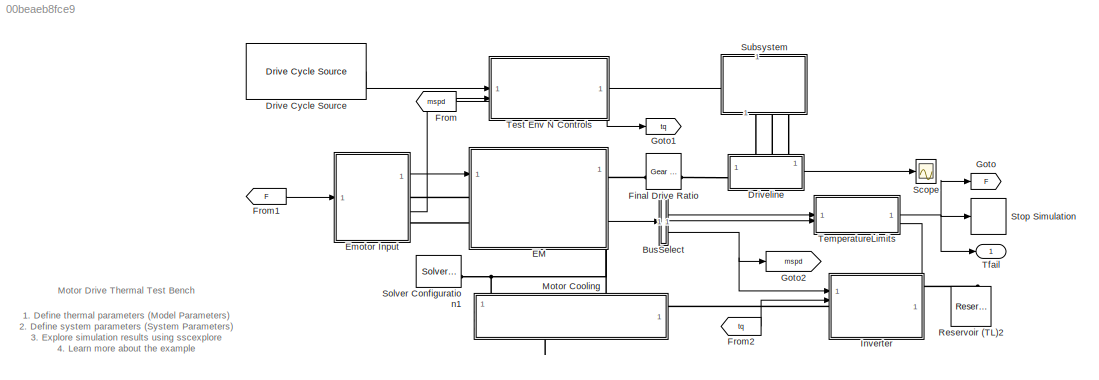
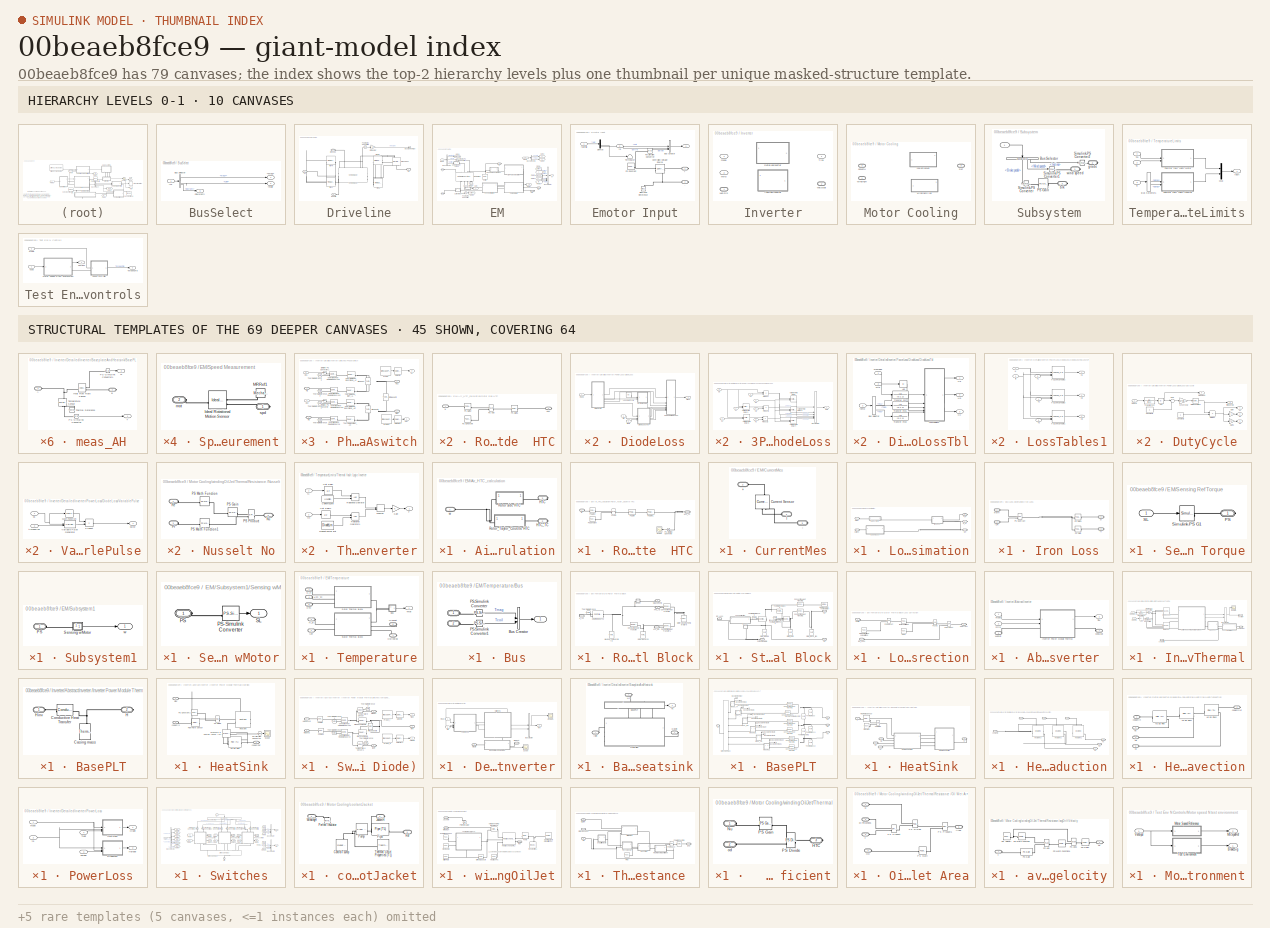
[diagram: thumbnail index - top-2 hierarchy levels (10 canvases) + 45 structural-template representatives of the remaining 69 canvases]
MODEL slx_00beaeb8fce9
KIND model
CONFIG AbsTol = 1e-3
CONFIG EnableMultiTasking = off
CONFIG FixedStep = dt
CONFIG MaxStep = auto
CONFIG MinStep = auto
CONFIG PreLoadFcn = % Simulation parameters\nMotorDriveThermalTestBenchParams;\n\n
CONFIG RelTol = 1e-3
CONFIG SampleTimeConstraint = Unconstrained
CONFIG SolverName = daessc
CONFIG StartTime = 0.0
CONFIG StopTime = 2400
WORKSPACE source: mxarray member
WORKSPACE V_frac_bridge = 0.0437
WORKSPACE V_fract_teeth = 0.9563
BLOCK [SubSystem] BusSelect
  ShowPortLabels = none
BLOCK [Outport] BusSelect/<EM1rpm>
  Port = 3
BLOCK [Outport] BusSelect/<Tcoil>
  Port = 2
BLOCK [Outport] BusSelect/<Tmag>
BLOCK [BusSelector] BusSelect/Bus Selector
  OutputSignals = magT,coilT,EMrpm
BLOCK [Inport] BusSelect/In1
BLOCK [Reference] Drive Cycle Source  REF=autolibshared/Drive Cycle Source
  AttributesFormatString = %<cycleVar> (%<tfinal>)
  LibrarySourceBlock = autolibscenario/Drive Cycle Source
  SourceBlock = autolibshared/Drive Cycle Source
  SourceType = Drive Cycle Source
BLOCK [SubSystem] Driveline
  PortSchema = {"entries":[{"content":{"sides":[{"content":{"connectorIds":["Out1"]},"type":"ConnectorPlacement.EquallySpacedRectSide","uuid":"f321ff85-78a4-45a4-ab97-f20c5abfaf5e"},{"content":{"connectorIds":["RConn1"],"side":"RIGHT"},"type":"ConnectorPlacement.EquallySpacedRectSide","uuid":"2baf3540-3ef2-4140-8c68-0a1895e3ee25"},{"content":{"connectorIds":["LConn1","LConn2","LConn3"],"side":"TOP"},"type":"Conn...<+269ch>
BLOCK [Reference] Driveline/Brake Rear  REF=sdl_lib/Brakes & Detents/Rotational/Disc Brake
  NameLocation = right
  SourceBlock = sdl_lib/Brakes & Detents/Rotational/Disc Brake
  SourceType = Disc Brake
BLOCK [Outport] Driveline/Bus Element Out
BLOCK [PMIOPort] Driveline/FA
  Port = 4
  Side = Right
BLOCK [Reference] Driveline/PS-Simulink Converter1  REF=nesl_utility/PS-Simulink
Converter
  SourceBlock = nesl_utility/PS-Simulink\nConverter
  SourceType = PS-Simulink\nConverter
BLOCK [Reference] Driveline/Tire FL  REF=sdl_lib/Tires & Vehicles/Tire (Magic Formula)
  SourceBlock = sdl_lib/Tires & Vehicles/Tire (Magic Formula)
  SourceType = Tire (Magic Formula)
BLOCK [Reference] Driveline/Tire FR  REF=sdl_lib/Tires & Vehicles/Tire (Magic Formula)
  SourceBlock = sdl_lib/Tires & Vehicles/Tire (Magic Formula)
  SourceType = Tire (Magic Formula)
BLOCK [Reference] Driveline/Tire RL  REF=sdl_lib/Tires & Vehicles/Tire (Magic Formula)
  SourceBlock = sdl_lib/Tires & Vehicles/Tire (Magic Formula)
  SourceType = Tire (Magic Formula)
BLOCK [Reference] Driveline/Tire RR  REF=sdl_lib/Tires & Vehicles/Tire (Magic Formula)
  SourceBlock = sdl_lib/Tires & Vehicles/Tire (Magic Formula)
  SourceType = Tire (Magic Formula)
BLOCK [Reference] Driveline/Vehicle Body  REF=sdl_lib/Tires & Vehicles/Vehicle Body
  NameLocation = top
  SourceBlock = sdl_lib/Tires & Vehicles/Vehicle Body
  SourceType = Vehicle Body
BLOCK [PMIOPort] Driveline/brk
  NameLocation = top
  Side = Left
BLOCK [Gain] Driveline/m//s to Km//hr
  Gain = 3.6
BLOCK [PMIOPort] Driveline/rodeGrd
  Port = 2
  Side = Left
BLOCK [PMIOPort] Driveline/windSpd
  Port = 3
  Side = Left
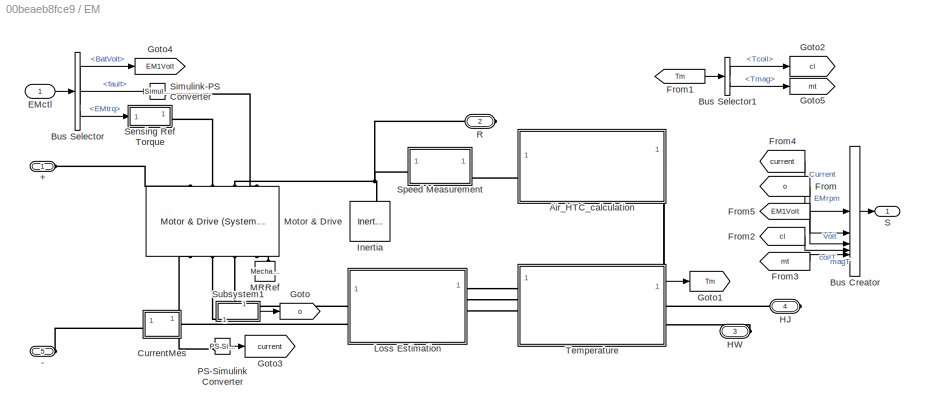
BLOCK [SubSystem] EM
  LibrarySourceBlock = EmotorLib/Emotor Thermal
  NameLocation = top
  PortSchema = {"entries":[{"content":{"sides":[{"content":{"connectorIds":["LConn1","LConn2","In1"]},"type":"ConnectorPlacement.EquallySpacedRectSide","uuid":"10df522d-563d-4b08-8533-b994fdc6485c"},{"content":{"connectorIds":["RConn1","Out1"],"side":"RIGHT"},"type":"ConnectorPlacement.EquallySpacedRectSide","uuid":"49c7f672-865f-471b-9e0c-89a8670e12b9"},{"content":{"connectorIds":[],"side":"TOP"},"type":"Connec...<+428ch>
BLOCK [PMIOPort] EM/+
  Side = Left
BLOCK [PMIOPort] EM/-
  Port = 5
  Side = Left
BLOCK [SubSystem] EM/Air_HTC_calculation
  NameLocation = top
  PortSchema = {"entries":[{"content":{"sides":[{"content":{"connectorIds":["LConn1"]},"type":"ConnectorPlacement.EquallySpacedRectSide","uuid":"c3fc49c2-0151-484f-b0d8-f4e4a060bcaf"},{"content":{"connectorIds":[],"side":"RIGHT"},"type":"ConnectorPlacement.EquallySpacedRectSide","uuid":"c73251fe-fcad-4c5f-9d27-fb7ac98c9b31"},{"content":{"connectorIds":[],"side":"TOP"},"type":"ConnectorPlacement.EquallySpacedRect...<+398ch>
BLOCK [PMIOPort] EM/Air_HTC_calculation/HTC
  NameLocation = top
  Port = 3
  Side = Right
BLOCK [PMIOPort] EM/Air_HTC_calculation/HTC_TC
  NameLocation = top
  Port = 2
  Side = Right
BLOCK [SubSystem] EM/Air_HTC_calculation/Rotor side  HTC
BLOCK [PMIOPort] EM/Air_HTC_calculation/Rotor side  HTC/HTC
  NameLocation = top
  Port = 2
  Side = Right
BLOCK [Reference] EM/Air_HTC_calculation/Rotor side  HTC/PS Add  REF=fl_lib/Physical Signals/Functions/PS Add
  SourceBlock = fl_lib/Physical Signals/Functions/PS Add
  SourceType = PS Add
BLOCK [Reference] EM/Air_HTC_calculation/Rotor side  HTC/PS Constant  REF=fl_lib/Physical Signals/Sources/PS Constant
  SourceBlock = fl_lib/Physical Signals/Sources/PS Constant
  SourceType = PS Constant
BLOCK [Reference] EM/Air_HTC_calculation/Rotor side  HTC/PS Gain1  REF=fl_lib/Physical Signals/Functions/PS Gain
  SourceBlock = fl_lib/Physical Signals/Functions/PS Gain
  SourceType = PS Gain
BLOCK [Reference] EM/Air_HTC_calculation/Rotor side  HTC/PS Gain2  REF=fl_lib/Physical Signals/Functions/PS Gain
  SourceBlock = fl_lib/Physical Signals/Functions/PS Gain
  SourceType = PS Gain
BLOCK [PMIOPort] EM/Air_HTC_calculation/Rotor side  HTC/w
  Side = Left
BLOCK [SubSystem] EM/Air_HTC_calculation/Rotor_Taylor_Couette  HTC
BLOCK [PMIOPort] EM/Air_HTC_calculation/Rotor_Taylor_Couette  HTC/HTC_TC
  NameLocation = top
  Port = 2
  Side = Right
BLOCK [Reference] EM/Air_HTC_calculation/Rotor_Taylor_Couette  HTC/PS Add  REF=fl_lib/Physical Signals/Functions/PS Add
  SourceBlock = fl_lib/Physical Signals/Functions/PS Add
  SourceType = PS Add
BLOCK [Reference] EM/Air_HTC_calculation/Rotor_Taylor_Couette  HTC/PS Constant  REF=fl_lib/Physical Signals/Sources/PS Constant
  SourceBlock = fl_lib/Physical Signals/Sources/PS Constant
  SourceType = PS Constant
BLOCK [Reference] EM/Air_HTC_calculation/Rotor_Taylor_Couette  HTC/PS Gain  REF=fl_lib/Physical Signals/Functions/PS Gain
  SourceBlock = fl_lib/Physical Signals/Functions/PS Gain
  SourceType = PS Gain
BLOCK [Reference] EM/Air_HTC_calculation/Rotor_Taylor_Couette  HTC/PS Gain1  REF=fl_lib/Physical Signals/Functions/PS Gain
  SourceBlock = fl_lib/Physical Signals/Functions/PS Gain
  SourceType = PS Gain
BLOCK [Reference] EM/Air_HTC_calculation/Rotor_Taylor_Couette  HTC/PS Gain2  REF=fl_lib/Physical Signals/Functions/PS Gain
  SourceBlock = fl_lib/Physical Signals/Functions/PS Gain
  SourceType = PS Gain
BLOCK [Reference] EM/Air_HTC_calculation/Rotor_Taylor_Couette  HTC/PS-Simulink Converter  REF=nesl_utility/PS-Simulink
Converter
  NameLocation = top
  SourceBlock = nesl_utility/PS-Simulink\nConverter
  SourceType = PS-Simulink\nConverter
BLOCK [Scope] EM/Air_HTC_calculation/Rotor_Taylor_Couette  HTC/Scope
  Floating = off
  NumInputPorts = 1
  ScopeSpecificationString = Simulink.scopes.TimeScopeBlockCfg('CurrentConfiguration', extmgr.ConfigurationSet(extmgr.Configuration('Core','General UI',true),extmgr.Configuration('Core','Source UI',true),extmgr.Configuration('Sources','WiredSimulink',true,'DataLoggingVariableName','ScopeData1'),extmgr.Configuration('Visuals','Time Domain',true,'SerializedDisplays',{struct('MinYLimReal','0.000015','MaxYLimReal','0.000081','YLa...<+1411ch>
BLOCK [PMIOPort] EM/Air_HTC_calculation/Rotor_Taylor_Couette  HTC/w
  Side = Left
BLOCK [PMIOPort] EM/Air_HTC_calculation/w
  Side = Left
BLOCK [BusCreator] EM/Bus Creator
  DisplayOption = bar
  InheritFromInputs = on
  Inputs = 5
BLOCK [BusSelector] EM/Bus Selector
  OutputSignals = BatVolt,fault,EMtrq
BLOCK [BusSelector] EM/Bus Selector1
  OutputSignals = Tcoil,Tmag
BLOCK [SubSystem] EM/CurrentMes
  NameLocation = left
  PortSchema = {"entries":[{"content":{"sides":[{"content":{"connectorIds":["LConn1"]},"type":"ConnectorPlacement.EquallySpacedRectSide","uuid":"aec73178-3b68-40df-935a-7f5359bce9cd"},{"content":{"connectorIds":[],"side":"RIGHT"},"type":"ConnectorPlacement.EquallySpacedRectSide","uuid":"aa898e43-8a60-4280-99e9-69a0b0908b52"},{"content":{"connectorIds":["LConn2"],"side":"TOP"},"type":"ConnectorPlacement.EquallySp...<+397ch>
BLOCK [PMIOPort] EM/CurrentMes/+
  Port = 2
  Side = Left
BLOCK [PMIOPort] EM/CurrentMes/-
  Port = 3
  Side = Right
BLOCK [Reference] EM/CurrentMes/Current Sensor  REF=fl_lib/Electrical/Electrical Sensors/Current Sensor
  NameLocation = left
  SourceBlock = fl_lib/Electrical/Electrical Sensors/Current Sensor
  SourceType = Current Sensor
BLOCK [PMIOPort] EM/CurrentMes/I
  Side = Left
BLOCK [Inport] EM/EMctl
BLOCK [From] EM/From
  GotoTag = o
BLOCK [From] EM/From1
  GotoTag = Tm
BLOCK [From] EM/From2
  GotoTag = cl
  NameLocation = top
BLOCK [From] EM/From3
  GotoTag = mt
BLOCK [From] EM/From4
  GotoTag = current
  NameLocation = left
BLOCK [From] EM/From5
  GotoTag = EM1Volt
BLOCK [Goto] EM/Goto
  GotoTag = o
BLOCK [Goto] EM/Goto1
  GotoTag = Tm
BLOCK [Goto] EM/Goto2
  GotoTag = cl
BLOCK [Goto] EM/Goto3
  GotoTag = current
BLOCK [Goto] EM/Goto4
  GotoTag = EM1Volt
BLOCK [Goto] EM/Goto5
  GotoTag = mt
BLOCK [PMIOPort] EM/HJ
  Port = 4
  Side = Right
BLOCK [PMIOPort] EM/HW
  Port = 3
  Side = Right
BLOCK [Reference] EM/Inertia  REF=fl_lib/Mechanical/Rotational Elements/Inertia
  NameLocation = right
  SourceBlock = fl_lib/Mechanical/Rotational Elements/Inertia
  SourceType = Inertia
BLOCK [SubSystem] EM/Loss Estimation
  NameLocation = top
BLOCK [SubSystem] EM/Loss Estimation/Copper Loss 
BLOCK [PMIOPort] EM/Loss Estimation/Copper Loss /Current
  Side = Left
BLOCK [PMIOPort] EM/Loss Estimation/Copper Loss /I2R
  NameLocation = top
  Port = 2
  Side = Right
BLOCK [Reference] EM/Loss Estimation/Copper Loss /PS Constant  REF=fl_lib/Physical Signals/Sources/PS Constant
  SourceBlock = fl_lib/Physical Signals/Sources/PS Constant
  SourceType = PS Constant
BLOCK [Reference] EM/Loss Estimation/Copper Loss /PS Gain  REF=fl_lib/Physical Signals/Functions/PS Gain
  SourceBlock = fl_lib/Physical Signals/Functions/PS Gain
  SourceType = PS Gain
BLOCK [Reference] EM/Loss Estimation/Copper Loss /PS Math Function  REF=fl_lib/Physical Signals/Functions/PS Math Function
  SourceBlock = fl_lib/Physical Signals/Functions/PS Math Function
  SourceType = PS Math Function
BLOCK [Reference] EM/Loss Estimation/Copper Loss /PS Product  REF=fl_lib/Physical Signals/Functions/PS Product
  SourceBlock = fl_lib/Physical Signals/Functions/PS Product
  SourceType = PS Product
BLOCK [PMIOPort] EM/Loss Estimation/Current
  Port = 5
  Side = Left
BLOCK [PMIOPort] EM/Loss Estimation/H_rt
  Port = 3
  Side = Right
BLOCK [PMIOPort] EM/Loss Estimation/H_st
  Port = 4
  Side = Right
BLOCK [PMIOPort] EM/Loss Estimation/Hmot
  Side = Left
BLOCK [PMIOPort] EM/Loss Estimation/I2R
  NameLocation = top
  Port = 2
  Side = Right
BLOCK [SubSystem] EM/Loss Estimation/Iron Loss
BLOCK [PMIOPort] EM/Loss Estimation/Iron Loss/I2R
  Port = 2
  Side = Left
BLOCK [PMIOPort] EM/Loss Estimation/Iron Loss/MotH
  Side = Left
BLOCK [Reference] EM/Loss Estimation/Iron Loss/PS Gain  REF=fl_lib/Physical Signals/Functions/PS Gain
  SourceBlock = fl_lib/Physical Signals/Functions/PS Gain
  SourceType = PS Gain
BLOCK [Reference] EM/Loss Estimation/Iron Loss/PS Gain1  REF=fl_lib/Physical Signals/Functions/PS Gain
  SourceBlock = fl_lib/Physical Signals/Functions/PS Gain
  SourceType = PS Gain
BLOCK [Reference] EM/Loss Estimation/Iron Loss/PS Subtract  REF=fl_lib/Physical Signals/Functions/PS Subtract
  SourceBlock = fl_lib/Physical Signals/Functions/PS Subtract
  SourceType = PS Subtract
BLOCK [PMIOPort] EM/Loss Estimation/Iron Loss/rt
  NameLocation = top
  Port = 3
  Side = Right
BLOCK [PMIOPort] EM/Loss Estimation/Iron Loss/st
  NameLocation = top
  Port = 4
  Side = Right
BLOCK [SubSystem] EM/Loss Estimation/Subsystem
BLOCK [Reference] EM/Loss Estimation/Subsystem/Heat Flow Rate Sensor  REF=fl_lib/Thermal/Thermal Sensors/Heat Flow Rate
Sensor
  SourceBlock = fl_lib/Thermal/Thermal Sensors/Heat Flow Rate\nSensor
  SourceType = Heat Flow Rate\nSensor
BLOCK [PMIOPort] EM/Loss Estimation/Subsystem/Hmot
  Side = Left
BLOCK [PMIOPort] EM/Loss Estimation/Subsystem/MotH
  NameLocation = top
  Port = 2
  Side = Right
BLOCK [Reference] EM/Loss Estimation/Subsystem/Temperature Source  REF=fl_lib/Thermal/Thermal Sources/Temperature Source
  NameLocation = right
  SourceBlock = fl_lib/Thermal/Thermal Sources/Temperature Source
  SourceType = Temperature Source
BLOCK [Reference] EM/MRRef  REF=fl_lib/Mechanical/Rotational Elements/Mechanical
Rotational Reference
  NameLocation = right
  SourceBlock = fl_lib/Mechanical/Rotational Elements/Mechanical\nRotational Reference
  SourceType = Mechanical\nRotational Reference
BLOCK [Reference] EM/Motor & Drive  REF=ee_lib/Electromechanical/Motor & Drive
(System Level)
  NameLocation = left
  SourceBlock = ee_lib/Electromechanical/Motor & Drive\n(System Level)
  SourceType = Motor & Drive\n(System Level)
BLOCK [Reference] EM/PS-Simulink Converter  REF=nesl_utility/PS-Simulink
Converter
  SourceBlock = nesl_utility/PS-Simulink\nConverter
  SourceType = PS-Simulink\nConverter
BLOCK [PMIOPort] EM/R
  Port = 2
  Side = Right
BLOCK [Outport] EM/S
BLOCK [SubSystem] EM/Sensing Ref Torque
  NameLocation = top
BLOCK [PMIOPort] EM/Sensing Ref Torque/PS
  Side = Right
BLOCK [Inport] EM/Sensing Ref Torque/SL
BLOCK [Reference] EM/Sensing Ref Torque/Simulink-PS G1  REF=nesl_utility/Simulink-PS
Converter
  SourceBlock = nesl_utility/Simulink-PS\nConverter
  SourceType = Simulink-PS\nConverter
BLOCK [Reference] EM/Simulink-PS Converter  REF=nesl_utility/Simulink-PS
Converter
  SourceBlock = nesl_utility/Simulink-PS\nConverter
  SourceType = Simulink-PS\nConverter
BLOCK [SubSystem] EM/Speed Measurement
BLOCK [Reference] EM/Speed Measurement/Ideal Rotational Motion Sensor  REF=fl_lib/Mechanical/Mechanical Sensors/Ideal Rotational
Motion Sensor
  SourceBlock = fl_lib/Mechanical/Mechanical Sensors/Ideal Rotational\nMotion Sensor
  SourceType = Ideal Rotational\nMotion Sensor
BLOCK [Reference] EM/Speed Measurement/MRRef1  REF=fl_lib/Mechanical/Rotational Elements/Mechanical
Rotational Reference
  NameLocation = top
  SourceBlock = fl_lib/Mechanical/Rotational Elements/Mechanical\nRotational Reference
  SourceType = Mechanical\nRotational Reference
BLOCK [PMIOPort] EM/Speed Measurement/mot
  Port = 2
  Side = Left
BLOCK [PMIOPort] EM/Speed Measurement/spd
  Side = Right
BLOCK [SubSystem] EM/Subsystem1
  NameLocation = right
  PortSchema = {"entries":[{"content":{"sides":[{"content":{},"type":"ConnectorPlacement.EquallySpacedRectSide","uuid":"73dca2aa-f399-4eeb-9d48-20c826d2ded4"},{"content":{"side":"RIGHT"},"type":"ConnectorPlacement.EquallySpacedRectSide","uuid":"ff117f44-2f45-4c10-9502-0d11ada2d007"},{"content":{"connectorIds":["LConn1"],"side":"TOP"},"type":"ConnectorPlacement.EquallySpacedRectSide","uuid":"808df778-70a2-4117-a4...<+352ch>
BLOCK [PMIOPort] EM/Subsystem1/PS
  Side = Left
BLOCK [SubSystem] EM/Subsystem1/Sensing wMotor
  NameLocation = top
BLOCK [PMIOPort] EM/Subsystem1/Sensing wMotor/PS
  NameLocation = top
  Side = Left
BLOCK [Reference] EM/Subsystem1/Sensing wMotor/PS-Simulink Converter  REF=nesl_utility/PS-Simulink
Converter
  SourceBlock = nesl_utility/PS-Simulink\nConverter
  SourceType = PS-Simulink\nConverter
BLOCK [Outport] EM/Subsystem1/Sensing wMotor/SL
  NameLocation = top
  VectorParamsAs1DForOutWhenUnconnected = off
BLOCK [Outport] EM/Subsystem1/w
  NameLocation = top
  VectorParamsAs1DForOutWhenUnconnected = off
BLOCK [SubSystem] EM/Temperature
  PortSchema = {"entries":[{"content":{"sides":[{"content":{"connectorIds":["LConn1","LConn2","LConn3"]},"type":"ConnectorPlacement.EquallySpacedRectSide","uuid":"fee72484-960d-4cd4-9296-e38678962aa1"},{"content":{"connectorIds":["Out1","RConn1","RConn2"],"side":"RIGHT"},"type":"ConnectorPlacement.EquallySpacedRectSide","uuid":"5fc115b4-63fd-47d3-871d-1c82ac52ac43"},{"content":{"connectorIds":["LConn4","LConn5"]...<+440ch>
BLOCK [SubSystem] EM/Temperature/Bus
BLOCK [PMIOPort] EM/Temperature/Bus/ 
  Side = Left
BLOCK [PMIOPort] EM/Temperature/Bus/  
  Port = 2
  Side = Left
BLOCK [Outport] EM/Temperature/Bus/   
BLOCK [BusCreator] EM/Temperature/Bus/Bus Creator
  DisplayOption = bar
  InheritFromInputs = on
  Inputs = 2
BLOCK [Reference] EM/Temperature/Bus/PS-Simulink Converter  REF=nesl_utility/PS-Simulink
Converter
  SourceBlock = nesl_utility/PS-Simulink\nConverter
  SourceType = PS-Simulink\nConverter
BLOCK [Reference] EM/Temperature/Bus/PS-Simulink Converter1  REF=nesl_utility/PS-Simulink
Converter
  SourceBlock = nesl_utility/PS-Simulink\nConverter
  SourceType = PS-Simulink\nConverter
BLOCK [PMIOPort] EM/Temperature/HTC
  Port = 5
  Side = Left
BLOCK [PMIOPort] EM/Temperature/HTC_TC
  Port = 4
  Side = Left
BLOCK [PMIOPort] EM/Temperature/H_rt
  Port = 2
  Side = Left
BLOCK [PMIOPort] EM/Temperature/H_st
  Port = 3
  Side = Left
BLOCK [PMIOPort] EM/Temperature/Hjacket
  NameLocation = top
  Port = 6
  Side = Right
BLOCK [PMIOPort] EM/Temperature/Hwinding
  NameLocation = top
  Port = 7
  Side = Right
BLOCK [PMIOPort] EM/Temperature/I2R
  Side = Left
BLOCK [SubSystem] EM/Temperature/Rotor Thermal Block
  NameLocation = top
BLOCK [Reference] EM/Temperature/Rotor Thermal Block/Conductive Heat Transfer  REF=fl_lib/Thermal/Thermal Elements/Conductive Heat
Transfer
  SourceBlock = fl_lib/Thermal/Thermal Elements/Conductive Heat\nTransfer
  SourceType = Conductive Heat\nTransfer
BLOCK [Reference] EM/Temperature/Rotor Thermal Block/Convective Heat Transfer  REF=fl_lib/Thermal/Thermal Elements/Convective Heat
Transfer
  SourceBlock = fl_lib/Thermal/Thermal Elements/Convective Heat\nTransfer
  SourceType = Convective Heat\nTransfer
BLOCK [Reference] EM/Temperature/Rotor Thermal Block/Convective Heat Transfer1  REF=fl_lib/Thermal/Thermal Elements/Convective Heat
Transfer
  SourceBlock = fl_lib/Thermal/Thermal Elements/Convective Heat\nTransfer
  SourceType = Convective Heat\nTransfer
BLOCK [PMIOPort] EM/Temperature/Rotor Thermal Block/HTC_AG
  Port = 2
  Side = Right
BLOCK [PMIOPort] EM/Temperature/Rotor Thermal Block/HTC_ER
  Port = 3
  Side = Right
BLOCK [PMIOPort] EM/Temperature/Rotor Thermal Block/H_rot
  NameLocation = top
  Side = Right
BLOCK [Reference] EM/Temperature/Rotor Thermal Block/Heat Flow Source  REF=fl_lib/Thermal/Thermal Sources/Controlled Heat Flow
Rate Source
  NameLocation = top
  SourceBlock = fl_lib/Thermal/Thermal Sources/Controlled Heat Flow\nRate Source
  SourceType = Controlled Heat Flow\nRate Source
BLOCK [PMIOPort] EM/Temperature/Rotor Thermal Block/Magnet Temp
  NameLocation = top
  Port = 4
  Side = Left
BLOCK [Reference] EM/Temperature/Rotor Thermal Block/Magnet_Temperature   REF=fl_lib/Thermal/Thermal Elements/Thermal Mass
  NameLocation = left
  SourceBlock = fl_lib/Thermal/Thermal Elements/Thermal Mass
  SourceType = Thermal Mass
BLOCK [Reference] EM/Temperature/Rotor Thermal Block/MotorHousingTemperature  REF=fl_lib/Thermal/Thermal Sources/Temperature Source
  NameLocation = right
  SourceBlock = fl_lib/Thermal/Thermal Sources/Temperature Source
  SourceType = Temperature Source
BLOCK [Reference] EM/Temperature/Rotor Thermal Block/Rotor Back Iron  REF=fl_lib/Thermal/Thermal Elements/Thermal Mass
  NameLocation = right
  SourceBlock = fl_lib/Thermal/Thermal Elements/Thermal Mass
  SourceType = Thermal Mass
BLOCK [SubSystem] EM/Temperature/Rotor Thermal Block/Sensor
  NameLocation = top
BLOCK [PMIOPort] EM/Temperature/Rotor Thermal Block/Sensor/ 
  Side = Left
BLOCK [PMIOPort] EM/Temperature/Rotor Thermal Block/Sensor/  
  NameLocation = top
  Port = 2
  Side = Right
BLOCK [Reference] EM/Temperature/Rotor Thermal Block/Sensor/Temperature Sensor  REF=fl_lib/Thermal/Thermal Sensors/Temperature Sensor
  SourceBlock = fl_lib/Thermal/Thermal Sensors/Temperature Sensor
  SourceType = Temperature Sensor
BLOCK [Reference] EM/Temperature/Rotor Thermal Block/Sensor/Thermal Reference1  REF=fl_lib/Thermal/Thermal Elements/Thermal Reference
  NameLocation = top
  SourceBlock = fl_lib/Thermal/Thermal Elements/Thermal Reference
  SourceType = Thermal Reference
BLOCK [Reference] EM/Temperature/Rotor Thermal Block/Thermal Reference  REF=fl_lib/Thermal/Thermal Elements/Thermal Reference
  SourceBlock = fl_lib/Thermal/Thermal Elements/Thermal Reference
  SourceType = Thermal Reference
BLOCK [SubSystem] EM/Temperature/Stator Thermal Block
BLOCK [Reference] EM/Temperature/Stator Thermal Block/   REF=fl_lib/Thermal/Thermal Sources/Controlled Heat Flow
Rate Source
  SourceBlock = fl_lib/Thermal/Thermal Sources/Controlled Heat Flow\nRate Source
  SourceType = Controlled Heat Flow\nRate Source
BLOCK [Reference] EM/Temperature/Stator Thermal Block/    REF=fl_lib/Thermal/Thermal Sources/Controlled Heat Flow
Rate Source
  SourceBlock = fl_lib/Thermal/Thermal Sources/Controlled Heat Flow\nRate Source
  SourceType = Controlled Heat Flow\nRate Source
BLOCK [PMIOPort] EM/Temperature/Stator Thermal Block/Coil Temperature
  Side = Left
BLOCK [Reference] EM/Temperature/Stator Thermal Block/Conductive Heat Transfer1  REF=fl_lib/Thermal/Thermal Elements/Conductive Heat
Transfer
  SourceBlock = fl_lib/Thermal/Thermal Elements/Conductive Heat\nTransfer
  SourceType = Conductive Heat\nTransfer
BLOCK [Reference] EM/Temperature/Stator Thermal Block/Convective Heat Transfer2  REF=fl_lib/Thermal/Thermal Elements/Convective Heat
Transfer
  SourceBlock = fl_lib/Thermal/Thermal Elements/Convective Heat\nTransfer
  SourceType = Convective Heat\nTransfer
BLOCK [PMIOPort] EM/Temperature/Stator Thermal Block/H1
  NameLocation = top
  Port = 2
  Side = Left
BLOCK [PMIOPort] EM/Temperature/Stator Thermal Block/H2
  NameLocation = top
  Port = 5
  Side = Left
BLOCK [PMIOPort] EM/Temperature/Stator Thermal Block/I2R_Loss
  Port = 4
  Side = Right
BLOCK [PMIOPort] EM/Temperature/Stator Thermal Block/IronLoss
  Port = 3
  Side = Right
BLOCK [SubSystem] EM/Temperature/Stator Thermal Block/Loss Correction
  NameLocation = top
BLOCK [PMIOPort] EM/Temperature/Stator Thermal Block/Loss Correction/HCorrect
  NameLocation = top
  Port = 3
  Side = Right
BLOCK [PMIOPort] EM/Temperature/Stator Thermal Block/Loss Correction/I2R_Loss
  Side = Left
BLOCK [Reference] EM/Temperature/Stator Thermal Block/Loss Correction/PS Add  REF=fl_lib/Physical Signals/Functions/PS Add
  SourceBlock = fl_lib/Physical Signals/Functions/PS Add
  SourceType = PS Add
BLOCK [Reference] EM/Temperature/Stator Thermal Block/Loss Correction/PS Product  REF=fl_lib/Physical Signals/Functions/PS Product
  SourceBlock = fl_lib/Physical Signals/Functions/PS Product
  SourceType = PS Product
BLOCK [Reference] EM/Temperature/Stator Thermal Block/Loss Correction/PS Subtract  REF=fl_lib/Physical Signals/Functions/PS Subtract
  SourceBlock = fl_lib/Physical Signals/Functions/PS Subtract
  SourceType = PS Subtract
BLOCK [Reference] EM/Temperature/Stator Thermal Block/Loss Correction/Ref Temp Of loss calculations  REF=fl_lib/Physical Signals/Sources/PS Constant
  NameLocation = left
  SourceBlock = fl_lib/Physical Signals/Sources/PS Constant
  SourceType = PS Constant
BLOCK [PMIOPort] EM/Temperature/Stator Thermal Block/Loss Correction/Temp
  Port = 2
  Side = Left
BLOCK [Reference] EM/Temperature/Stator Thermal Block/Loss Correction/add 1  REF=fl_lib/Physical Signals/Sources/PS Constant
  SourceBlock = fl_lib/Physical Signals/Sources/PS Constant
  SourceType = PS Constant
BLOCK [Reference] EM/Temperature/Stator Thermal Block/Loss Correction/joule coefficient  REF=fl_lib/Physical Signals/Functions/PS Gain
  SourceBlock = fl_lib/Physical Signals/Functions/PS Gain
  SourceType = PS Gain
BLOCK [Reference] EM/Temperature/Stator Thermal Block/MotorHousing_Temperature  REF=fl_lib/Thermal/Thermal Sources/Temperature Source
  NameLocation = top
  SourceBlock = fl_lib/Thermal/Thermal Sources/Temperature Source
  SourceType = Temperature Source
BLOCK [SubSystem] EM/Temperature/Stator Thermal Block/Sensor
  NameLocation = left
  PortSchema = {"entries":[{"content":{"sides":[{"content":{"connectorIds":["LConn1"]},"type":"ConnectorPlacement.EquallySpacedRectSide","uuid":"2a9c4c46-5e98-4ad3-ac1b-1643fab919e9"},{"content":{"connectorIds":[],"side":"RIGHT"},"type":"ConnectorPlacement.EquallySpacedRectSide","uuid":"818e06c0-624d-478e-bbcc-fcb04ee6018d"},{"content":{"connectorIds":[],"side":"TOP"},"type":"ConnectorPlacement.EquallySpacedRect...<+389ch>
BLOCK [PMIOPort] EM/Temperature/Stator Thermal Block/Sensor/ 
  Port = 2
  Side = Right
BLOCK [PMIOPort] EM/Temperature/Stator Thermal Block/Sensor/  
  NameLocation = top
  Side = Left
BLOCK [Reference] EM/Temperature/Stator Thermal Block/Sensor/Temperature Sensor  REF=fl_lib/Thermal/Thermal Sensors/Temperature Sensor
  SourceBlock = fl_lib/Thermal/Thermal Sensors/Temperature Sensor
  SourceType = Temperature Sensor
BLOCK [Reference] EM/Temperature/Stator Thermal Block/Sensor/Thermal Reference1  REF=fl_lib/Thermal/Thermal Elements/Thermal Reference
  NameLocation = top
  SourceBlock = fl_lib/Thermal/Thermal Elements/Thermal Reference
  SourceType = Thermal Reference
BLOCK [Reference] EM/Temperature/Stator Thermal Block/Stator_Back_Iron  REF=fl_lib/Thermal/Thermal Elements/Thermal Mass
  NameLocation = right
  SourceBlock = fl_lib/Thermal/Thermal Elements/Thermal Mass
  SourceType = Thermal Mass
BLOCK [Reference] EM/Temperature/Stator Thermal Block/Stator_teeth  REF=fl_lib/Thermal/Thermal Elements/Thermal Mass
  NameLocation = left
  SourceBlock = fl_lib/Thermal/Thermal Elements/Thermal Mass
  SourceType = Thermal Mass
BLOCK [Reference] EM/Temperature/Stator Thermal Block/Stator_winding  REF=fl_lib/Thermal/Thermal Elements/Thermal Mass
  NameLocation = left
  SourceBlock = fl_lib/Thermal/Thermal Elements/Thermal Mass
  SourceType = Thermal Mass
BLOCK [Reference] EM/Temperature/Stator Thermal Block/Thermal Reference2  REF=fl_lib/Thermal/Thermal Elements/Thermal Reference
  SourceBlock = fl_lib/Thermal/Thermal Elements/Thermal Reference
  SourceType = Thermal Reference
BLOCK [Reference] EM/Temperature/Stator Thermal Block/Thermal Reference3  REF=fl_lib/Thermal/Thermal Elements/Thermal Reference
  SourceBlock = fl_lib/Thermal/Thermal Elements/Thermal Reference
  SourceType = Thermal Reference
BLOCK [Reference] EM/Temperature/Stator Thermal Block/Thermal Resistance  REF=fl_lib/Thermal/Thermal Elements/Thermal Resistance
  NameLocation = top
  SourceBlock = fl_lib/Thermal/Thermal Elements/Thermal Resistance
  SourceType = Thermal Resistance
BLOCK [Outport] EM/Temperature/Tmot
  NameLocation = top
BLOCK [SubSystem] Emotor Input
  PortSchema = {"entries":[{"content":{"sides":[{"content":{"connectorIds":["In1"]},"type":"ConnectorPlacement.EquallySpacedRectSide","uuid":"c4c07ff1-e6b7-44ff-b3a5-b0e10b4cc465"},{"content":{"connectorIds":["RConn1","RConn2","Out1"],"side":"RIGHT"},"type":"ConnectorPlacement.EquallySpacedRectSide","uuid":"925c4aa1-6eb7-46da-8525-6fdd9359c532"},{"content":{"connectorIds":["In2"],"side":"TOP"},"type":"ConnectorP...<+263ch>
BLOCK [Outport] Emotor Input/ 
BLOCK [PMIOPort] Emotor Input/+
  Side = Right
BLOCK [PMIOPort] Emotor Input/-
  Port = 2
  Side = Right
BLOCK [BusCreator] Emotor Input/Bus Creator
  DisplayOption = bar
  InheritFromInputs = on
  Inputs = 3
BLOCK [Reference] Emotor Input/Controlled Voltage Source  REF=fl_lib/Electrical/Electrical Sources/Controlled Voltage
Source
  SourceBlock = fl_lib/Electrical/Electrical Sources/Controlled Voltage\nSource
  SourceType = Controlled Voltage\nSource
BLOCK [Demux] Emotor Input/Demux
  Outputs = 2
BLOCK [Reference] Emotor Input/Electrical Reference  REF=fl_lib/Electrical/Electrical Elements/Electrical Reference
  NameLocation = right
  SourceBlock = fl_lib/Electrical/Electrical Elements/Electrical Reference
  SourceType = Electrical Reference
BLOCK [Reference] Emotor Input/PS Constant  REF=fl_lib/Physical Signals/Sources/PS Constant
  SourceBlock = fl_lib/Physical Signals/Sources/PS Constant
  SourceType = PS Constant
BLOCK [Reference] Emotor Input/PS-Simulink Converter  REF=nesl_utility/PS-Simulink
Converter
  SourceBlock = nesl_utility/PS-Simulink\nConverter
  SourceType = PS-Simulink\nConverter
BLOCK [Terminator] Emotor Input/Terminator
BLOCK [Inport] Emotor Input/faultSig
  NameLocation = top
BLOCK [Inport] Emotor Input/tq
  Port = 2
BLOCK [Reference] Final Drive Ratio  REF=fl_lib/Mechanical/Mechanisms/Gear Box
  SourceBlock = fl_lib/Mechanical/Mechanisms/Gear Box
  SourceType = Gear Box
BLOCK [From] From
  GotoTag = mspd
BLOCK [From] From1
  GotoTag = F
BLOCK [From] From2
  GotoTag = tq
BLOCK [Goto] Goto
  GotoTag = F
BLOCK [Goto] Goto1
  GotoTag = tq
BLOCK [Goto] Goto2
  GotoTag = mspd
BLOCK [SubSystem] Inverter
  LabelModeActiveChoice = AbstractOn
  PortSchema = {"entries":[{"content":{"sides":[{"content":{"connectorIds":["In1","LConn1","In2"]},"type":"ConnectorPlacement.EquallySpacedRectSide","uuid":"633c2257-0ab1-4a3f-bc19-db971bbd7d23"},{"content":{"connectorIds":[],"side":"RIGHT"},"type":"ConnectorPlacement.EquallySpacedRectSide","uuid":"268aca27-453a-4262-b99b-2b00bb036744"},{"content":{"connectorIds":["Out1","LConn2"],"side":"TOP"},"type":"Connector...<+264ch>
  ShowPortLabels = none
  Variant = on
  VariantControlMode = label
BLOCK [SubSystem] Inverter/AbstractInverter 
  PortSchema = {"entries":[{"content":{"sides":[{"content":{"connectorIds":["In1","In2","LConn1"]},"type":"ConnectorPlacement.EquallySpacedRectSide","uuid":"633c2257-0ab1-4a3f-bc19-db971bbd7d23"},{"content":{"connectorIds":["Out1"],"side":"RIGHT"},"type":"ConnectorPlacement.EquallySpacedRectSide","uuid":"268aca27-453a-4262-b99b-2b00bb036744"},{"content":{"connectorIds":["LConn2"],"side":"TOP"},"type":"ConnectorP...<+263ch>
  VariantControl = AbstractOn
BLOCK [SubSystem] Inverter/AbstractInverter /Inverter Power Module Thermal
BLOCK [Abs] Inverter/AbstractInverter /Inverter Power Module Thermal/Abs
  SaturateOnIntegerOverflow = off
BLOCK [SubSystem] Inverter/AbstractInverter /Inverter Power Module Thermal/BasePLT
BLOCK [Reference] Inverter/AbstractInverter /Inverter Power Module Thermal/BasePLT/Casing mass  REF=fl_lib/Thermal/Thermal Elements/Thermal Mass
  NameLocation = right
  SourceBlock = fl_lib/Thermal/Thermal Elements/Thermal Mass
  SourceType = Thermal Mass
BLOCK [Reference] Inverter/AbstractInverter /Inverter Power Module Thermal/BasePLT/Conductive Heat Transfer  REF=fl_lib/Thermal/Thermal Elements/Conductive Heat
Transfer
  SourceBlock = fl_lib/Thermal/Thermal Elements/Conductive Heat\nTransfer
  SourceType = Conductive Heat\nTransfer
BLOCK [PMIOPort] Inverter/AbstractInverter /Inverter Power Module Thermal/BasePLT/H
  Port = 2
  Side = Right
BLOCK [PMIOPort] Inverter/AbstractInverter /Inverter Power Module Thermal/BasePLT/Hinv
  Side = Left
BLOCK [BusCreator] Inverter/AbstractInverter /Inverter Power Module Thermal/Bus Creator
  DisplayOption = bar
  InheritFromInputs = on
  Inputs = 2
BLOCK [SubSystem] Inverter/AbstractInverter /Inverter Power Module Thermal/HeatSink
BLOCK [Reference] Inverter/AbstractInverter /Inverter Power Module Thermal/HeatSink/Flow Rate Sensor  REF=fl_lib/Thermal Liquid/Sensors/Flow Rate Sensor
(TL)
  SourceBlock = fl_lib/Thermal Liquid/Sensors/Flow Rate Sensor\n(TL)
  SourceType = Flow Rate Sensor\n(TL)
BLOCK [Reference] Inverter/AbstractInverter /Inverter Power Module Thermal/HeatSink/HS Eq Pipe  REF=fl_lib/Thermal Liquid/Elements/Pipe (TL)
  SourceBlock = fl_lib/Thermal Liquid/Elements/Pipe (TL)
  SourceType = Pipe (TL)
BLOCK [Reference] Inverter/AbstractInverter /Inverter Power Module Thermal/HeatSink/Heatsink  REF=ee_lib/Passive/Thermal/Heatsink
  NameLocation = right
  SourceBlock = ee_lib/Passive/Thermal/Heatsink
  SourceType = Heatsink
BLOCK [PMIOPort] Inverter/AbstractInverter /Inverter Power Module Thermal/HeatSink/Hinv
  NameLocation = top
  Side = Left
BLOCK [Reference] Inverter/AbstractInverter /Inverter Power Module Thermal/HeatSink/PS Constant1  REF=fl_lib/Physical Signals/Sources/PS Constant
  SourceBlock = fl_lib/Physical Signals/Sources/PS Constant
  SourceType = PS Constant
BLOCK [Reference] Inverter/AbstractInverter /Inverter Power Module Thermal/HeatSink/PS Divide  REF=fl_lib/Physical Signals/Functions/PS Divide
  SourceBlock = fl_lib/Physical Signals/Functions/PS Divide
  SourceType = PS Divide
BLOCK [Reference] Inverter/AbstractInverter /Inverter Power Module Thermal/HeatSink/PS-Simulink Converter  REF=nesl_utility/PS-Simulink
Converter
  SourceBlock = nesl_utility/PS-Simulink\nConverter
  SourceType = PS-Simulink\nConverter
BLOCK [Reference] Inverter/AbstractInverter /Inverter Power Module Thermal/HeatSink/Pressure & Temperature Sensor (TL)  REF=fl_lib/Thermal Liquid/Sensors/Pressure &
Temperature Sensor
(TL)
  SourceBlock = fl_lib/Thermal Liquid/Sensors/Pressure &\nTemperature Sensor\n(TL)
  SourceType = Pressure &\nTemperature Sensor\n(TL)
BLOCK [Scope] Inverter/AbstractInverter /Inverter Power Module Thermal/HeatSink/Scope
  Floating = off
  NumInputPorts = 1
  ScopeSpecificationString = Simulink.scopes.TimeScopeBlockCfg('CurrentConfiguration', extmgr.ConfigurationSet(extmgr.Configuration('Core','General UI',true),extmgr.Configuration('Core','Source UI',true),extmgr.Configuration('Sources','WiredSimulink',true,'DataLoggingVariableName','ScopeData1'),extmgr.Configuration('Visuals','Time Domain',true,'SerializedDisplays',{struct('MinYLimReal','2313.26153','MaxYLimReal','20336.80236'...<+1473ch>
BLOCK [PMIOPort] Inverter/AbstractInverter /Inverter Power Module Thermal/HeatSink/coolantIn
  Port = 2
  Side = Left
BLOCK [PMIOPort] Inverter/AbstractInverter /Inverter Power Module Thermal/HeatSink/coolantOut
  Port = 3
  Side = Right
BLOCK [Reference] Inverter/AbstractInverter /Inverter Power Module Thermal/IgbtLoss  REF=fl_lib/Physical Signals/Lookup Tables/PS Lookup Table (3D)
  SourceBlock = fl_lib/Physical Signals/Lookup Tables/PS Lookup Table (3D)
  SourceType = PS Lookup Table (3D)
BLOCK [Outport] Inverter/AbstractInverter /Inverter Power Module Thermal/InverterT
BLOCK [Scope] Inverter/AbstractInverter /Inverter Power Module Thermal/Scope
  Floating = off
  NumInputPorts = 1
  ScopeSpecificationString = Simulink.scopes.TimeScopeBlockCfg('CurrentConfiguration', extmgr.ConfigurationSet(extmgr.Configuration('Core','General UI',true),extmgr.Configuration('Core','Source UI',true),extmgr.Configuration('Sources','WiredSimulink',true,'DataLoggingVariableName','ScopeData1'),extmgr.Configuration('Visuals','Time Domain',true,'SerializedDisplays',{struct('MinYLimReal','324.4608','MaxYLimReal','350.63751','YL...<+1520ch>
BLOCK [Reference] Inverter/AbstractInverter /Inverter Power Module Thermal/Simulink-PS Converter2  REF=nesl_utility/Simulink-PS
Converter
  SourceBlock = nesl_utility/Simulink-PS\nConverter
  SourceType = Simulink-PS\nConverter
BLOCK [Reference] Inverter/AbstractInverter /Inverter Power Module Thermal/Simulink-PS Converter3  REF=nesl_utility/Simulink-PS
Converter
  SourceBlock = nesl_utility/Simulink-PS\nConverter
  SourceType = Simulink-PS\nConverter
BLOCK [SubSystem] Inverter/AbstractInverter /Inverter Power Module Thermal/Switches(Averaged IGBT Diode)
  NameLocation = top
  PortSchema = {"entries":[{"content":{"sides":[{"content":{"connectorIds":["Out1","Out2","LConn1"]},"type":"ConnectorPlacement.EquallySpacedRectSide","uuid":"c466717f-a559-4c42-b6dd-2de508982627"},{"content":{"connectorIds":["RConn1","RConn2","RConn3"],"side":"RIGHT"},"type":"ConnectorPlacement.EquallySpacedRectSide","uuid":"5a44429a-0c01-47a4-96c4-89a03d92af2a"},{"content":{"connectorIds":[],"side":"TOP"},"typ...<+429ch>
BLOCK [Reference] Inverter/AbstractInverter /Inverter Power Module Thermal/Switches(Averaged IGBT Diode)/Controlled Heat Flow Rate Source  REF=fl_lib/Thermal/Thermal Sources/Controlled Heat Flow
Rate Source
  SourceBlock = fl_lib/Thermal/Thermal Sources/Controlled Heat Flow\nRate Source
  SourceType = Controlled Heat Flow\nRate Source
BLOCK [Reference] Inverter/AbstractInverter /Inverter Power Module Thermal/Switches(Averaged IGBT Diode)/Controlled Heat Flow Rate Source1  REF=fl_lib/Thermal/Thermal Sources/Controlled Heat Flow
Rate Source
  SourceBlock = fl_lib/Thermal/Thermal Sources/Controlled Heat Flow\nRate Source
  SourceType = Controlled Heat Flow\nRate Source
BLOCK [Reference] Inverter/AbstractInverter /Inverter Power Module Thermal/Switches(Averaged IGBT Diode)/Diode6LumpedIn  REF=ee_lib/Passive/Thermal/Cauer Thermal Model
  NameLocation = top
  SourceBlock = ee_lib/Passive/Thermal/Cauer Thermal Model
  SourceType = Cauer Thermal Model
BLOCK [PMIOPort] Inverter/AbstractInverter /Inverter Power Module Thermal/Switches(Averaged IGBT Diode)/HdiodeAvg
  NameLocation = left
  Port = 2
  Side = Right
BLOCK [PMIOPort] Inverter/AbstractInverter /Inverter Power Module Thermal/Switches(Averaged IGBT Diode)/HigbtAvg
  Port = 4
  Side = Right
BLOCK [PMIOPort] Inverter/AbstractInverter /Inverter Power Module Thermal/Switches(Averaged IGBT Diode)/Hinv
  NameLocation = top
  Side = Left
BLOCK [Reference] Inverter/AbstractInverter /Inverter Power Module Thermal/Switches(Averaged IGBT Diode)/IGBT6LumpedIn  REF=ee_lib/Passive/Thermal/Cauer Thermal Model
  SourceBlock = ee_lib/Passive/Thermal/Cauer Thermal Model
  SourceType = Cauer Thermal Model
BLOCK [Reference] Inverter/AbstractInverter /Inverter Power Module Thermal/Switches(Averaged IGBT Diode)/PS Gain  REF=fl_lib/Physical Signals/Functions/PS Gain
  SourceBlock = fl_lib/Physical Signals/Functions/PS Gain
  SourceType = PS Gain
BLOCK [Reference] Inverter/AbstractInverter /Inverter Power Module Thermal/Switches(Averaged IGBT Diode)/PS Gain1  REF=fl_lib/Physical Signals/Functions/PS Gain
  SourceBlock = fl_lib/Physical Signals/Functions/PS Gain
  SourceType = PS Gain
BLOCK [SimscapeProbe] Inverter/AbstractInverter /Inverter Power Module Thermal/Switches(Averaged IGBT Diode)/Probe_d
  BoundBlock = 3849
  Variables = {Tvec}
BLOCK [SimscapeProbe] Inverter/AbstractInverter /Inverter Power Module Thermal/Switches(Averaged IGBT Diode)/Probe_i
  BoundBlock = 3850
  Variables = {Tvec}
BLOCK [Reference] Inverter/AbstractInverter /Inverter Power Module Thermal/Switches(Averaged IGBT Diode)/RthSubstrate  REF=ee_lib/Passive/Thermal/Thermal Resistor
  NameLocation = left
  SourceBlock = ee_lib/Passive/Thermal/Thermal Resistor
  SourceType = Thermal Resistor
BLOCK [Selector] Inverter/AbstractInverter /Inverter Power Module Thermal/Switches(Averaged IGBT Diode)/Selector
  IndexOptions = Index vector (dialog)
  Indices = [1]
  InputPortWidth = 4
  OutputSizes = 1
BLOCK [Selector] Inverter/AbstractInverter /Inverter Power Module Thermal/Switches(Averaged IGBT Diode)/Selector1
  IndexOptions = Index vector (dialog)
  Indices = [1]
  InputPortWidth = 4
  OutputSizes = 1
BLOCK [Outport] Inverter/AbstractInverter /Inverter Power Module Thermal/Switches(Averaged IGBT Diode)/Tdiode
  Port = 2
BLOCK [Reference] Inverter/AbstractInverter /Inverter Power Module Thermal/Switches(Averaged IGBT Diode)/Temperature Sensor  REF=fl_lib/Thermal/Thermal Sensors/Temperature Sensor
  SourceBlock = fl_lib/Thermal/Thermal Sensors/Temperature Sensor
  SourceType = Temperature Sensor
BLOCK [Reference] Inverter/AbstractInverter /Inverter Power Module Thermal/Switches(Averaged IGBT Diode)/Temperature Sensor1  REF=fl_lib/Thermal/Thermal Sensors/Temperature Sensor
  SourceBlock = fl_lib/Thermal/Thermal Sensors/Temperature Sensor
  SourceType = Temperature Sensor
BLOCK [Reference] Inverter/AbstractInverter /Inverter Power Module Thermal/Switches(Averaged IGBT Diode)/Thermal Reference  REF=fl_lib/Thermal/Thermal Elements/Thermal Reference
  SourceBlock = fl_lib/Thermal/Thermal Elements/Thermal Reference
  SourceType = Thermal Reference
BLOCK [Reference] Inverter/AbstractInverter /Inverter Power Module Thermal/Switches(Averaged IGBT Diode)/Thermal Reference1  REF=fl_lib/Thermal/Thermal Elements/Thermal Reference
  SourceBlock = fl_lib/Thermal/Thermal Elements/Thermal Reference
  SourceType = Thermal Reference
BLOCK [Reference] Inverter/AbstractInverter /Inverter Power Module Thermal/Switches(Averaged IGBT Diode)/Thermal Reference2  REF=fl_lib/Thermal/Thermal Elements/Thermal Reference
  NameLocation = top
  SourceBlock = fl_lib/Thermal/Thermal Elements/Thermal Reference
  SourceType = Thermal Reference
BLOCK [Reference] Inverter/AbstractInverter /Inverter Power Module Thermal/Switches(Averaged IGBT Diode)/Thermal Reference3  REF=fl_lib/Thermal/Thermal Elements/Thermal Reference
  NameLocation = top
  SourceBlock = fl_lib/Thermal/Thermal Elements/Thermal Reference
  SourceType = Thermal Reference
BLOCK [Outport] Inverter/AbstractInverter /Inverter Power Module Thermal/Switches(Averaged IGBT Diode)/Tigbt
BLOCK [PMIOPort] Inverter/AbstractInverter /Inverter Power Module Thermal/Switches(Averaged IGBT Diode)/diodeT
  NameLocation = top
  Port = 3
  Side = Right
BLOCK [PMIOPort] Inverter/AbstractInverter /Inverter Power Module Thermal/Switches(Averaged IGBT Diode)/igbtT
  NameLocation = top
  Port = 5
  Side = Right
BLOCK [TransferFcn] Inverter/AbstractInverter /Inverter Power Module Thermal/Transfer Fcn
  Denominator = [0.1 1]
BLOCK [PMIOPort] Inverter/AbstractInverter /Inverter Power Module Thermal/coolantIn
  Side = Left
BLOCK [PMIOPort] Inverter/AbstractInverter /Inverter Power Module Thermal/coolantout
  NameLocation = top
  Port = 2
  Side = Right
BLOCK [Reference] Inverter/AbstractInverter /Inverter Power Module Thermal/diodeLoss  REF=fl_lib/Physical Signals/Lookup Tables/PS Lookup Table (3D)
  SourceBlock = fl_lib/Physical Signals/Lookup Tables/PS Lookup Table (3D)
  SourceType = PS Lookup Table (3D)
BLOCK [Inport] Inverter/AbstractInverter /Inverter Power Module Thermal/motorSpd
BLOCK [Inport] Inverter/AbstractInverter /Inverter Power Module Thermal/motorTrq
  Port = 2
BLOCK [Outport] Inverter/AbstractInverter /Tinv
BLOCK [PMIOPort] Inverter/AbstractInverter /WEGin
  Side = Left
BLOCK [PMIOPort] Inverter/AbstractInverter /WEGout
  Port = 2
  Side = Left
BLOCK [Inport] Inverter/AbstractInverter /mspd
BLOCK [Inport] Inverter/AbstractInverter /mtrq
  Port = 2
BLOCK [SubSystem] Inverter/DetailedInverter
  PortSchema = {"entries":[{"content":{"sides":[{"content":{"connectorIds":["In1","In2","LConn1"]},"type":"ConnectorPlacement.EquallySpacedRectSide","uuid":"633c2257-0ab1-4a3f-bc19-db971bbd7d23"},{"content":{"connectorIds":["Out1"],"side":"RIGHT"},"type":"ConnectorPlacement.EquallySpacedRectSide","uuid":"268aca27-453a-4262-b99b-2b00bb036744"},{"content":{"connectorIds":["LConn2"],"side":"TOP"},"type":"ConnectorP...<+263ch>
  VariantControl = DetailedOn
BLOCK [SubSystem] Inverter/DetailedInverter/BaseplateAndHeatsink
  PortSchema = {"entries":[{"content":{"sides":[{"content":{"connectorIds":["LConn1"]},"type":"ConnectorPlacement.EquallySpacedRectSide","uuid":"e581cfdc-799f-4cc5-addf-0469cfe4cea9"},{"content":{"connectorIds":["RConn1","Out1"],"side":"RIGHT"},"type":"ConnectorPlacement.EquallySpacedRectSide","uuid":"aa2a4c2d-5a60-4c16-854d-0ab5d1d8d47e"},{"content":{"connectorIds":["LConn2"],"side":"TOP"},"type":"ConnectorPlac...<+260ch>
BLOCK [SubSystem] Inverter/DetailedInverter/BaseplateAndHeatsink/BasePLT
  NameLocation = left
  PortSchema = {"entries":[{"content":{"sides":[{"content":{"connectorIds":["LConn1"]},"type":"ConnectorPlacement.EquallySpacedRectSide","uuid":"06bea180-76e4-485f-8c92-98df5c260dca"},{"content":{"connectorIds":["RConn1","RConn2","RConn3"],"side":"RIGHT"},"type":"ConnectorPlacement.EquallySpacedRectSide","uuid":"a99e02fc-6b0a-45f4-a178-f59447542951"},{"content":{"connectorIds":["Out1"],"side":"TOP"},"type":"Conn...<+413ch>
BLOCK [Outport] Inverter/DetailedInverter/BaseplateAndHeatsink/BasePLT/Bus Element Out
BLOCK [Outport] Inverter/DetailedInverter/BaseplateAndHeatsink/BasePLT/Bus Element Out1
BLOCK [Outport] Inverter/DetailedInverter/BaseplateAndHeatsink/BasePLT/Bus Element Out10
BLOCK [Outport] Inverter/DetailedInverter/BaseplateAndHeatsink/BasePLT/Bus Element Out11
BLOCK [Outport] Inverter/DetailedInverter/BaseplateAndHeatsink/BasePLT/Bus Element Out2
BLOCK [Outport] Inverter/DetailedInverter/BaseplateAndHeatsink/BasePLT/Bus Element Out3
BLOCK [Outport] Inverter/DetailedInverter/BaseplateAndHeatsink/BasePLT/Bus Element Out4
BLOCK [Outport] Inverter/DetailedInverter/BaseplateAndHeatsink/BasePLT/Bus Element Out5
BLOCK [Outport] Inverter/DetailedInverter/BaseplateAndHeatsink/BasePLT/Bus Element Out6
BLOCK [Outport] Inverter/DetailedInverter/BaseplateAndHeatsink/BasePLT/Bus Element Out7
BLOCK [Outport] Inverter/DetailedInverter/BaseplateAndHeatsink/BasePLT/Bus Element Out8
BLOCK [Outport] Inverter/DetailedInverter/BaseplateAndHeatsink/BasePLT/Bus Element Out9
BLOCK [Reference] Inverter/DetailedInverter/BaseplateAndHeatsink/BasePLT/Conductive Heat Transfer1  REF=fl_lib/Thermal/Thermal Elements/Conductive Heat
Transfer
  SourceBlock = fl_lib/Thermal/Thermal Elements/Conductive Heat\nTransfer
  SourceType = Conductive Heat\nTransfer
BLOCK [Reference] Inverter/DetailedInverter/BaseplateAndHeatsink/BasePLT/Conductive Heat Transfer2  REF=fl_lib/Thermal/Thermal Elements/Conductive Heat
Transfer
  SourceBlock = fl_lib/Thermal/Thermal Elements/Conductive Heat\nTransfer
  SourceType = Conductive Heat\nTransfer
BLOCK [Reference] Inverter/DetailedInverter/BaseplateAndHeatsink/BasePLT/Conductive Heat Transfer3  REF=fl_lib/Thermal/Thermal Elements/Conductive Heat
Transfer
  SourceBlock = fl_lib/Thermal/Thermal Elements/Conductive Heat\nTransfer
  SourceType = Conductive Heat\nTransfer
BLOCK [Reference] Inverter/DetailedInverter/BaseplateAndHeatsink/BasePLT/Conductive Heat Transfer4  REF=fl_lib/Thermal/Thermal Elements/Conductive Heat
Transfer
  SourceBlock = fl_lib/Thermal/Thermal Elements/Conductive Heat\nTransfer
  SourceType = Conductive Heat\nTransfer
BLOCK [Reference] Inverter/DetailedInverter/BaseplateAndHeatsink/BasePLT/Conductive Heat Transfer5  REF=fl_lib/Thermal/Thermal Elements/Conductive Heat
Transfer
  SourceBlock = fl_lib/Thermal/Thermal Elements/Conductive Heat\nTransfer
  SourceType = Conductive Heat\nTransfer
BLOCK [Reference] Inverter/DetailedInverter/BaseplateAndHeatsink/BasePLT/Conductive Heat Transfer6  REF=fl_lib/Thermal/Thermal Elements/Conductive Heat
Transfer
  SourceBlock = fl_lib/Thermal/Thermal Elements/Conductive Heat\nTransfer
  SourceType = Conductive Heat\nTransfer
BLOCK [PMIOPort] Inverter/DetailedInverter/BaseplateAndHeatsink/BasePLT/H
  Side = Left
  Tag = PMCPort
BLOCK [PMIOPort] Inverter/DetailedInverter/BaseplateAndHeatsink/BasePLT/Ha
  NameLocation = top
  Port = 4
  Side = Right
BLOCK [PMIOPort] Inverter/DetailedInverter/BaseplateAndHeatsink/BasePLT/Hb
  Port = 3
  Side = Right
BLOCK [PMIOPort] Inverter/DetailedInverter/BaseplateAndHeatsink/BasePLT/Hc
  Port = 2
  Side = Right
BLOCK [SimscapeBus] Inverter/DetailedInverter/BaseplateAndHeatsink/BasePLT/Simscape Bus
  HierarchyStrings = H_AH;H_AL;H_BH;H_BL;H_CH;H_CL
  NameLocation = top
BLOCK [Reference] Inverter/DetailedInverter/BaseplateAndHeatsink/BasePLT/Thermal Mass  REF=fl_lib/Thermal/Thermal Elements/Thermal Mass
  NameLocation = right
  SourceBlock = fl_lib/Thermal/Thermal Elements/Thermal Mass
  SourceType = Thermal Mass
BLOCK [Reference] Inverter/DetailedInverter/BaseplateAndHeatsink/BasePLT/Thermal Mass1  REF=fl_lib/Thermal/Thermal Elements/Thermal Mass
  NameLocation = right
  SourceBlock = fl_lib/Thermal/Thermal Elements/Thermal Mass
  SourceType = Thermal Mass
BLOCK [Reference] Inverter/DetailedInverter/BaseplateAndHeatsink/BasePLT/Thermal Mass2  REF=fl_lib/Thermal/Thermal Elements/Thermal Mass
  NameLocation = right
  SourceBlock = fl_lib/Thermal/Thermal Elements/Thermal Mass
  SourceType = Thermal Mass
BLOCK [Reference] Inverter/DetailedInverter/BaseplateAndHeatsink/BasePLT/Thermal Resistor  REF=ee_lib/Passive/Thermal/Thermal Resistor
  NameLocation = left
  SourceBlock = ee_lib/Passive/Thermal/Thermal Resistor
  SourceType = Thermal Resistor
BLOCK [Reference] Inverter/DetailedInverter/BaseplateAndHeatsink/BasePLT/Thermal Resistor1  REF=ee_lib/Passive/Thermal/Thermal Resistor
  NameLocation = left
  SourceBlock = ee_lib/Passive/Thermal/Thermal Resistor
  SourceType = Thermal Resistor
BLOCK [SubSystem] Inverter/DetailedInverter/BaseplateAndHeatsink/BasePLT/meas_AH
  PortSchema = {"entries":[{"content":{"sides":[{"content":{"connectorIds":["LConn1"]},"type":"ConnectorPlacement.EquallySpacedRectSide","uuid":"1fc63631-1283-41fa-989f-998ad8911336"},{"content":{"connectorIds":["RConn1"],"side":"RIGHT"},"type":"ConnectorPlacement.EquallySpacedRectSide","uuid":"60331112-9c9a-4116-97c9-fe3ae6fff227"},{"content":{"connectorIds":["Out1","Out2"],"side":"TOP"},"type":"ConnectorPlacem...<+258ch>  <repeated x6 — deduplicated; at blocks: meas_AH, meas_AL, meas_BH, meas_BL, meas_CH, meas_CL>
BLOCK [PMIOPort] Inverter/DetailedInverter/BaseplateAndHeatsink/BasePLT/meas_AH/A
  Side = Left
BLOCK [PMIOPort] Inverter/DetailedInverter/BaseplateAndHeatsink/BasePLT/meas_AH/B
  Port = 2
  Side = Right
BLOCK [Reference] Inverter/DetailedInverter/BaseplateAndHeatsink/BasePLT/meas_AH/Heat Flow Rate Sensor  REF=fl_lib/Thermal/Thermal Sensors/Heat Flow Rate
Sensor
  SourceBlock = fl_lib/Thermal/Thermal Sensors/Heat Flow Rate\nSensor
  SourceType = Heat Flow Rate\nSensor
BLOCK [Reference] Inverter/DetailedInverter/BaseplateAndHeatsink/BasePLT/meas_AH/PS-Simulink Converter  REF=nesl_utility_internal/PS-Simulink
Converter
  SourceBlock = nesl_utility_internal/PS-Simulink\nConverter
  SourceType = PS-Simulink\nConverter
BLOCK [Reference] Inverter/DetailedInverter/BaseplateAndHeatsink/BasePLT/meas_AH/PS-Simulink Converter1  REF=nesl_utility_internal/PS-Simulink
Converter
  SourceBlock = nesl_utility_internal/PS-Simulink\nConverter
  SourceType = PS-Simulink\nConverter
BLOCK [Outport] Inverter/DetailedInverter/BaseplateAndHeatsink/BasePLT/meas_AH/Q
  Port = 2
BLOCK [Outport] Inverter/DetailedInverter/BaseplateAndHeatsink/BasePLT/meas_AH/T
BLOCK [Reference] Inverter/DetailedInverter/BaseplateAndHeatsink/BasePLT/meas_AH/Temperature Sensor  REF=fl_lib/Thermal/Thermal Sensors/Temperature Sensor
  NameLocation = left
  SourceBlock = fl_lib/Thermal/Thermal Sensors/Temperature Sensor
  SourceType = Temperature Sensor
BLOCK [Reference] Inverter/DetailedInverter/BaseplateAndHeatsink/BasePLT/meas_AH/Thermal Reference  REF=fl_lib/Thermal/Thermal Elements/Thermal Reference
  NameLocation = top
  SourceBlock = fl_lib/Thermal/Thermal Elements/Thermal Reference
  SourceType = Thermal Reference
BLOCK [SubSystem] Inverter/DetailedInverter/BaseplateAndHeatsink/BasePLT/meas_AL
BLOCK [PMIOPort] Inverter/DetailedInverter/BaseplateAndHeatsink/BasePLT/meas_AL/A
  Side = Left
BLOCK [PMIOPort] Inverter/DetailedInverter/BaseplateAndHeatsink/BasePLT/meas_AL/B
  Port = 2
  Side = Right
BLOCK [Reference] Inverter/DetailedInverter/BaseplateAndHeatsink/BasePLT/meas_AL/Heat Flow Rate Sensor  REF=fl_lib/Thermal/Thermal Sensors/Heat Flow Rate
Sensor
  SourceBlock = fl_lib/Thermal/Thermal Sensors/Heat Flow Rate\nSensor
  SourceType = Heat Flow Rate\nSensor
BLOCK [Reference] Inverter/DetailedInverter/BaseplateAndHeatsink/BasePLT/meas_AL/PS-Simulink Converter  REF=nesl_utility_internal/PS-Simulink
Converter
  SourceBlock = nesl_utility_internal/PS-Simulink\nConverter
  SourceType = PS-Simulink\nConverter
BLOCK [Reference] Inverter/DetailedInverter/BaseplateAndHeatsink/BasePLT/meas_AL/PS-Simulink Converter1  REF=nesl_utility_internal/PS-Simulink
Converter
  SourceBlock = nesl_utility_internal/PS-Simulink\nConverter
  SourceType = PS-Simulink\nConverter
BLOCK [Outport] Inverter/DetailedInverter/BaseplateAndHeatsink/BasePLT/meas_AL/Q
  Port = 2
BLOCK [Outport] Inverter/DetailedInverter/BaseplateAndHeatsink/BasePLT/meas_AL/T
BLOCK [Reference] Inverter/DetailedInverter/BaseplateAndHeatsink/BasePLT/meas_AL/Temperature Sensor  REF=fl_lib/Thermal/Thermal Sensors/Temperature Sensor
  NameLocation = left
  SourceBlock = fl_lib/Thermal/Thermal Sensors/Temperature Sensor
  SourceType = Temperature Sensor
BLOCK [Reference] Inverter/DetailedInverter/BaseplateAndHeatsink/BasePLT/meas_AL/Thermal Reference  REF=fl_lib/Thermal/Thermal Elements/Thermal Reference
  NameLocation = top
  SourceBlock = fl_lib/Thermal/Thermal Elements/Thermal Reference
  SourceType = Thermal Reference
BLOCK [SubSystem] Inverter/DetailedInverter/BaseplateAndHeatsink/BasePLT/meas_BH
BLOCK [PMIOPort] Inverter/DetailedInverter/BaseplateAndHeatsink/BasePLT/meas_BH/A
  Side = Left
BLOCK [PMIOPort] Inverter/DetailedInverter/BaseplateAndHeatsink/BasePLT/meas_BH/B
  Port = 2
  Side = Right
BLOCK [Reference] Inverter/DetailedInverter/BaseplateAndHeatsink/BasePLT/meas_BH/Heat Flow Rate Sensor  REF=fl_lib/Thermal/Thermal Sensors/Heat Flow Rate
Sensor
  SourceBlock = fl_lib/Thermal/Thermal Sensors/Heat Flow Rate\nSensor
  SourceType = Heat Flow Rate\nSensor
BLOCK [Reference] Inverter/DetailedInverter/BaseplateAndHeatsink/BasePLT/meas_BH/PS-Simulink Converter  REF=nesl_utility_internal/PS-Simulink
Converter
  SourceBlock = nesl_utility_internal/PS-Simulink\nConverter
  SourceType = PS-Simulink\nConverter
BLOCK [Reference] Inverter/DetailedInverter/BaseplateAndHeatsink/BasePLT/meas_BH/PS-Simulink Converter1  REF=nesl_utility_internal/PS-Simulink
Converter
  SourceBlock = nesl_utility_internal/PS-Simulink\nConverter
  SourceType = PS-Simulink\nConverter
BLOCK [Outport] Inverter/DetailedInverter/BaseplateAndHeatsink/BasePLT/meas_BH/Q
  Port = 2
BLOCK [Outport] Inverter/DetailedInverter/BaseplateAndHeatsink/BasePLT/meas_BH/T
BLOCK [Reference] Inverter/DetailedInverter/BaseplateAndHeatsink/BasePLT/meas_BH/Temperature Sensor  REF=fl_lib/Thermal/Thermal Sensors/Temperature Sensor
  NameLocation = left
  SourceBlock = fl_lib/Thermal/Thermal Sensors/Temperature Sensor
  SourceType = Temperature Sensor
BLOCK [Reference] Inverter/DetailedInverter/BaseplateAndHeatsink/BasePLT/meas_BH/Thermal Reference  REF=fl_lib/Thermal/Thermal Elements/Thermal Reference
  NameLocation = top
  SourceBlock = fl_lib/Thermal/Thermal Elements/Thermal Reference
  SourceType = Thermal Reference
BLOCK [SubSystem] Inverter/DetailedInverter/BaseplateAndHeatsink/BasePLT/meas_BL
BLOCK [PMIOPort] Inverter/DetailedInverter/BaseplateAndHeatsink/BasePLT/meas_BL/A
  Side = Left
BLOCK [PMIOPort] Inverter/DetailedInverter/BaseplateAndHeatsink/BasePLT/meas_BL/B
  Port = 2
  Side = Right
BLOCK [Reference] Inverter/DetailedInverter/BaseplateAndHeatsink/BasePLT/meas_BL/Heat Flow Rate Sensor  REF=fl_lib/Thermal/Thermal Sensors/Heat Flow Rate
Sensor
  SourceBlock = fl_lib/Thermal/Thermal Sensors/Heat Flow Rate\nSensor
  SourceType = Heat Flow Rate\nSensor
BLOCK [Reference] Inverter/DetailedInverter/BaseplateAndHeatsink/BasePLT/meas_BL/PS-Simulink Converter  REF=nesl_utility_internal/PS-Simulink
Converter
  SourceBlock = nesl_utility_internal/PS-Simulink\nConverter
  SourceType = PS-Simulink\nConverter
BLOCK [Reference] Inverter/DetailedInverter/BaseplateAndHeatsink/BasePLT/meas_BL/PS-Simulink Converter1  REF=nesl_utility_internal/PS-Simulink
Converter
  SourceBlock = nesl_utility_internal/PS-Simulink\nConverter
  SourceType = PS-Simulink\nConverter
BLOCK [Outport] Inverter/DetailedInverter/BaseplateAndHeatsink/BasePLT/meas_BL/Q
  Port = 2
BLOCK [Outport] Inverter/DetailedInverter/BaseplateAndHeatsink/BasePLT/meas_BL/T
BLOCK [Reference] Inverter/DetailedInverter/BaseplateAndHeatsink/BasePLT/meas_BL/Temperature Sensor  REF=fl_lib/Thermal/Thermal Sensors/Temperature Sensor
  NameLocation = left
  SourceBlock = fl_lib/Thermal/Thermal Sensors/Temperature Sensor
  SourceType = Temperature Sensor
BLOCK [Reference] Inverter/DetailedInverter/BaseplateAndHeatsink/BasePLT/meas_BL/Thermal Reference  REF=fl_lib/Thermal/Thermal Elements/Thermal Reference
  NameLocation = top
  SourceBlock = fl_lib/Thermal/Thermal Elements/Thermal Reference
  SourceType = Thermal Reference
BLOCK [SubSystem] Inverter/DetailedInverter/BaseplateAndHeatsink/BasePLT/meas_CH
BLOCK [PMIOPort] Inverter/DetailedInverter/BaseplateAndHeatsink/BasePLT/meas_CH/A
  Side = Left
BLOCK [PMIOPort] Inverter/DetailedInverter/BaseplateAndHeatsink/BasePLT/meas_CH/B
  Port = 2
  Side = Right
BLOCK [Reference] Inverter/DetailedInverter/BaseplateAndHeatsink/BasePLT/meas_CH/Heat Flow Rate Sensor  REF=fl_lib/Thermal/Thermal Sensors/Heat Flow Rate
Sensor
  SourceBlock = fl_lib/Thermal/Thermal Sensors/Heat Flow Rate\nSensor
  SourceType = Heat Flow Rate\nSensor
BLOCK [Reference] Inverter/DetailedInverter/BaseplateAndHeatsink/BasePLT/meas_CH/PS-Simulink Converter  REF=nesl_utility_internal/PS-Simulink
Converter
  SourceBlock = nesl_utility_internal/PS-Simulink\nConverter
  SourceType = PS-Simulink\nConverter
BLOCK [Reference] Inverter/DetailedInverter/BaseplateAndHeatsink/BasePLT/meas_CH/PS-Simulink Converter1  REF=nesl_utility_internal/PS-Simulink
Converter
  SourceBlock = nesl_utility_internal/PS-Simulink\nConverter
  SourceType = PS-Simulink\nConverter
BLOCK [Outport] Inverter/DetailedInverter/BaseplateAndHeatsink/BasePLT/meas_CH/Q
  Port = 2
BLOCK [Outport] Inverter/DetailedInverter/BaseplateAndHeatsink/BasePLT/meas_CH/T
BLOCK [Reference] Inverter/DetailedInverter/BaseplateAndHeatsink/BasePLT/meas_CH/Temperature Sensor  REF=fl_lib/Thermal/Thermal Sensors/Temperature Sensor
  NameLocation = left
  SourceBlock = fl_lib/Thermal/Thermal Sensors/Temperature Sensor
  SourceType = Temperature Sensor
BLOCK [Reference] Inverter/DetailedInverter/BaseplateAndHeatsink/BasePLT/meas_CH/Thermal Reference  REF=fl_lib/Thermal/Thermal Elements/Thermal Reference
  NameLocation = top
  SourceBlock = fl_lib/Thermal/Thermal Elements/Thermal Reference
  SourceType = Thermal Reference
BLOCK [SubSystem] Inverter/DetailedInverter/BaseplateAndHeatsink/BasePLT/meas_CL
BLOCK [PMIOPort] Inverter/DetailedInverter/BaseplateAndHeatsink/BasePLT/meas_CL/A
  Side = Left
BLOCK [PMIOPort] Inverter/DetailedInverter/BaseplateAndHeatsink/BasePLT/meas_CL/B
  Port = 2
  Side = Right
BLOCK [Reference] Inverter/DetailedInverter/BaseplateAndHeatsink/BasePLT/meas_CL/Heat Flow Rate Sensor  REF=fl_lib/Thermal/Thermal Sensors/Heat Flow Rate
Sensor
  SourceBlock = fl_lib/Thermal/Thermal Sensors/Heat Flow Rate\nSensor
  SourceType = Heat Flow Rate\nSensor
BLOCK [Reference] Inverter/DetailedInverter/BaseplateAndHeatsink/BasePLT/meas_CL/PS-Simulink Converter  REF=nesl_utility_internal/PS-Simulink
Converter
  SourceBlock = nesl_utility_internal/PS-Simulink\nConverter
  SourceType = PS-Simulink\nConverter
BLOCK [Reference] Inverter/DetailedInverter/BaseplateAndHeatsink/BasePLT/meas_CL/PS-Simulink Converter1  REF=nesl_utility_internal/PS-Simulink
Converter
  SourceBlock = nesl_utility_internal/PS-Simulink\nConverter
  SourceType = PS-Simulink\nConverter
BLOCK [Outport] Inverter/DetailedInverter/BaseplateAndHeatsink/BasePLT/meas_CL/Q
  Port = 2
BLOCK [Outport] Inverter/DetailedInverter/BaseplateAndHeatsink/BasePLT/meas_CL/T
BLOCK [Reference] Inverter/DetailedInverter/BaseplateAndHeatsink/BasePLT/meas_CL/Temperature Sensor  REF=fl_lib/Thermal/Thermal Sensors/Temperature Sensor
  NameLocation = left
  SourceBlock = fl_lib/Thermal/Thermal Sensors/Temperature Sensor
  SourceType = Temperature Sensor
BLOCK [Reference] Inverter/DetailedInverter/BaseplateAndHeatsink/BasePLT/meas_CL/Thermal Reference  REF=fl_lib/Thermal/Thermal Elements/Thermal Reference
  NameLocation = top
  SourceBlock = fl_lib/Thermal/Thermal Elements/Thermal Reference
  SourceType = Thermal Reference
BLOCK [PMIOPort] Inverter/DetailedInverter/BaseplateAndHeatsink/Hc
  Port = 2
  Side = Left
BLOCK [SubSystem] Inverter/DetailedInverter/BaseplateAndHeatsink/HeatSink
  PortSchema = {"entries":[{"content":{"sides":[{"content":{"connectorIds":["LConn1"]},"type":"ConnectorPlacement.EquallySpacedRectSide","uuid":"c35c2cca-88c8-49f3-81d6-30e8c5a69bc3"},{"content":{"connectorIds":["RConn1"],"side":"RIGHT"},"type":"ConnectorPlacement.EquallySpacedRectSide","uuid":"81cb188b-caaf-40f1-ac11-54d241445da6"},{"content":{"connectorIds":["LConn2","LConn3","LConn4"],"side":"TOP"},"type":"Co...<+271ch>
  ShowPortLabels = FromPortBlockName
BLOCK [PMIOPort] Inverter/DetailedInverter/BaseplateAndHeatsink/HeatSink/ Ha
  Port = 2
  Side = Left
BLOCK [Reference] Inverter/DetailedInverter/BaseplateAndHeatsink/HeatSink/Flow Rate Sensor  REF=fl_lib/Thermal Liquid/Sensors/Flow Rate Sensor
(TL)
  NameLocation = top
  SourceBlock = fl_lib/Thermal Liquid/Sensors/Flow Rate Sensor\n(TL)
  SourceType = Flow Rate Sensor\n(TL)
BLOCK [PMIOPort] Inverter/DetailedInverter/BaseplateAndHeatsink/HeatSink/Hb
  Port = 3
  Side = Left
BLOCK [PMIOPort] Inverter/DetailedInverter/BaseplateAndHeatsink/HeatSink/Hc
  Port = 4
  Side = Left
BLOCK [SubSystem] Inverter/DetailedInverter/BaseplateAndHeatsink/HeatSink/HeatConduction
BLOCK [PMIOPort] Inverter/DetailedInverter/BaseplateAndHeatsink/HeatSink/HeatConduction/ 
  Port = 5
  Side = Left
BLOCK [PMIOPort] Inverter/DetailedInverter/BaseplateAndHeatsink/HeatSink/HeatConduction/  
  Port = 6
  Side = Left
BLOCK [PMIOPort] Inverter/DetailedInverter/BaseplateAndHeatsink/HeatSink/HeatConduction/   
  Port = 7
  Side = Left
BLOCK [PMIOPort] Inverter/DetailedInverter/BaseplateAndHeatsink/HeatSink/HeatConduction/Ha
  Port = 2
  Side = Right
BLOCK [PMIOPort] Inverter/DetailedInverter/BaseplateAndHeatsink/HeatSink/HeatConduction/Hb
  Port = 3
  Side = Right
BLOCK [PMIOPort] Inverter/DetailedInverter/BaseplateAndHeatsink/HeatSink/HeatConduction/Hc
  Port = 4
  Side = Right
BLOCK [Reference] Inverter/DetailedInverter/BaseplateAndHeatsink/HeatSink/HeatConduction/Heatsink1  REF=ee_lib/Passive/Thermal/Heatsink
  NameLocation = top
  SourceBlock = ee_lib/Passive/Thermal/Heatsink
  SourceType = Heatsink
BLOCK [Reference] Inverter/DetailedInverter/BaseplateAndHeatsink/HeatSink/HeatConduction/Heatsink2  REF=ee_lib/Passive/Thermal/Heatsink
  NameLocation = top
  SourceBlock = ee_lib/Passive/Thermal/Heatsink
  SourceType = Heatsink
BLOCK [Reference] Inverter/DetailedInverter/BaseplateAndHeatsink/HeatSink/HeatConduction/Heatsink3  REF=ee_lib/Passive/Thermal/Heatsink
  NameLocation = top
  SourceBlock = ee_lib/Passive/Thermal/Heatsink
  SourceType = Heatsink
BLOCK [PMIOPort] Inverter/DetailedInverter/BaseplateAndHeatsink/HeatSink/HeatConduction/coolantV
  Side = Left
BLOCK [SubSystem] Inverter/DetailedInverter/BaseplateAndHeatsink/HeatSink/HeatConvection
BLOCK [Reference] Inverter/DetailedInverter/BaseplateAndHeatsink/HeatSink/HeatConvection/HS Eq Pipe  REF=fl_lib/Thermal Liquid/Elements/Pipe (TL)
  NameLocation = top
  SourceBlock = fl_lib/Thermal Liquid/Elements/Pipe (TL)
  SourceType = Pipe (TL)
BLOCK [Reference] Inverter/DetailedInverter/BaseplateAndHeatsink/HeatSink/HeatConvection/HS Eq Pipe1  REF=fl_lib/Thermal Liquid/Elements/Pipe (TL)
  NameLocation = top
  SourceBlock = fl_lib/Thermal Liquid/Elements/Pipe (TL)
  SourceType = Pipe (TL)
BLOCK [Reference] Inverter/DetailedInverter/BaseplateAndHeatsink/HeatSink/HeatConvection/HS Eq Pipe2  REF=fl_lib/Thermal Liquid/Elements/Pipe (TL)
  NameLocation = top
  SourceBlock = fl_lib/Thermal Liquid/Elements/Pipe (TL)
  SourceType = Pipe (TL)
BLOCK [PMIOPort] Inverter/DetailedInverter/BaseplateAndHeatsink/HeatSink/HeatConvection/Ha
  Port = 3
  Side = Left
BLOCK [PMIOPort] Inverter/DetailedInverter/BaseplateAndHeatsink/HeatSink/HeatConvection/Hb
  Port = 4
  Side = Left
BLOCK [PMIOPort] Inverter/DetailedInverter/BaseplateAndHeatsink/HeatSink/HeatConvection/Hc
  Port = 5
  Side = Left
BLOCK [PMIOPort] Inverter/DetailedInverter/BaseplateAndHeatsink/HeatSink/HeatConvection/coolantIn
  NameLocation = top
  Side = Left
BLOCK [PMIOPort] Inverter/DetailedInverter/BaseplateAndHeatsink/HeatSink/HeatConvection/coolantOut
  Port = 2
  Side = Right
BLOCK [PMIOPort] Inverter/DetailedInverter/BaseplateAndHeatsink/HeatSink/I
  Side = Left
BLOCK [PMIOPort] Inverter/DetailedInverter/BaseplateAndHeatsink/HeatSink/O
  Port = 5
  Side = Right
BLOCK [Reference] Inverter/DetailedInverter/BaseplateAndHeatsink/HeatSink/PS Divide  REF=fl_lib/Physical Signals/Functions/PS Divide
  SourceBlock = fl_lib/Physical Signals/Functions/PS Divide
  SourceType = PS Divide
BLOCK [Reference] Inverter/DetailedInverter/BaseplateAndHeatsink/HeatSink/PipeArea  REF=fl_lib/Physical Signals/Sources/PS Constant
  SourceBlock = fl_lib/Physical Signals/Sources/PS Constant
  SourceType = PS Constant
BLOCK [PMIOPort] Inverter/DetailedInverter/BaseplateAndHeatsink/Inlet
  Side = Left
BLOCK [PMIOPort] Inverter/DetailedInverter/BaseplateAndHeatsink/Outlet
  Port = 3
  Side = Right
BLOCK [Outport] Inverter/DetailedInverter/BaseplateAndHeatsink/Tc
BLOCK [BusCreator] Inverter/DetailedInverter/Bus Creator
  DisplayOption = bar
  InheritFromInputs = on
  Inputs = 2
BLOCK [SubSystem] Inverter/DetailedInverter/PowerLoss
  PortSchema = {"entries":[{"content":{"sides":[{"content":{"connectorIds":["In1","In2"]},"type":"ConnectorPlacement.EquallySpacedRectSide","uuid":"127a6954-bfd2-4a2c-bf6e-1fabee693a74"},{"content":{"connectorIds":["Out1","Out2"],"side":"RIGHT"},"type":"ConnectorPlacement.EquallySpacedRectSide","uuid":"d7114e53-5a47-441c-8b7e-c8f7f7446772"},{"content":{"connectorIds":["In3","In4"],"side":"TOP"},"type":"Connector...<+264ch>
BLOCK [SubSystem] Inverter/DetailedInverter/PowerLoss/DiodeLoss
BLOCK [SubSystem] Inverter/DetailedInverter/PowerLoss/DiodeLoss/3PhaseDiodeLoss
BLOCK [BusCreator] Inverter/DetailedInverter/PowerLoss/DiodeLoss/3PhaseDiodeLoss/Bus Creator
  DisplayOption = bar
  InheritFromInputs = on
  Inputs = 6
BLOCK [Inport] Inverter/DetailedInverter/PowerLoss/DiodeLoss/3PhaseDiodeLoss/Ha
  Port = 5
BLOCK [Inport] Inverter/DetailedInverter/PowerLoss/DiodeLoss/3PhaseDiodeLoss/Hb
  Port = 6
BLOCK [Inport] Inverter/DetailedInverter/PowerLoss/DiodeLoss/3PhaseDiodeLoss/Hc
  Port = 7
BLOCK [Outport] Inverter/DetailedInverter/PowerLoss/DiodeLoss/3PhaseDiodeLoss/Out1
BLOCK [Product] Inverter/DetailedInverter/PowerLoss/DiodeLoss/3PhaseDiodeLoss/Product
BLOCK [Product] Inverter/DetailedInverter/PowerLoss/DiodeLoss/3PhaseDiodeLoss/Product1
BLOCK [Product] Inverter/DetailedInverter/PowerLoss/DiodeLoss/3PhaseDiodeLoss/Product2
BLOCK [VariableTransportDelay] Inverter/DetailedInverter/PowerLoss/DiodeLoss/3PhaseDiodeLoss/Variable Time Delay
  MaximumDelay = 60
  MaximumPoints = 75000
  TransDelayFeedthrough = on
  VariableDelayType = Variable transport delay
BLOCK [VariableTransportDelay] Inverter/DetailedInverter/PowerLoss/DiodeLoss/3PhaseDiodeLoss/Variable Time Delay1
  MaximumDelay = 60
  MaximumPoints = 75000
  TransDelayFeedthrough = on
  VariableDelayType = Variable transport delay
BLOCK [VariableTransportDelay] Inverter/DetailedInverter/PowerLoss/DiodeLoss/3PhaseDiodeLoss/Variable Time Delay2
  MaximumDelay = 60
  MaximumPoints = 75000
  TransDelayFeedthrough = on
  VariableDelayType = Variable transport delay
BLOCK [VariableTransportDelay] Inverter/DetailedInverter/PowerLoss/DiodeLoss/3PhaseDiodeLoss/Variable Time Delay3
  MaximumDelay = 60
  MaximumPoints = 75000
  TransDelayFeedthrough = on
  VariableDelayType = Variable transport delay
BLOCK [VariableTransportDelay] Inverter/DetailedInverter/PowerLoss/DiodeLoss/3PhaseDiodeLoss/Variable Time Delay4
  MaximumDelay = 60
  MaximumPoints = 75000
  TransDelayFeedthrough = on
  VariableDelayType = Variable transport delay
BLOCK [Inport] Inverter/DetailedInverter/PowerLoss/DiodeLoss/3PhaseDiodeLoss/d1
BLOCK [Inport] Inverter/DetailedInverter/PowerLoss/DiodeLoss/3PhaseDiodeLoss/d2
  Port = 2
BLOCK [Inport] Inverter/DetailedInverter/PowerLoss/DiodeLoss/3PhaseDiodeLoss/d3
  Port = 3
BLOCK [Inport] Inverter/DetailedInverter/PowerLoss/DiodeLoss/3PhaseDiodeLoss/pls
  Port = 4
BLOCK [SubSystem] Inverter/DetailedInverter/PowerLoss/DiodeLoss/DiodeLossTbl
BLOCK [Abs] Inverter/DetailedInverter/PowerLoss/DiodeLoss/DiodeLossTbl/Abs
  SaturateOnIntegerOverflow = off
BLOCK [BusSelector] Inverter/DetailedInverter/PowerLoss/DiodeLoss/DiodeLossTbl/Bus Selector
  OutputSignals = TdA,TdB,TdC
BLOCK [Outport] Inverter/DetailedInverter/PowerLoss/DiodeLoss/DiodeLossTbl/Ha
BLOCK [Outport] Inverter/DetailedInverter/PowerLoss/DiodeLoss/DiodeLossTbl/Hb
  Port = 2
BLOCK [Outport] Inverter/DetailedInverter/PowerLoss/DiodeLoss/DiodeLossTbl/Hc
  Port = 3
BLOCK [SubSystem] Inverter/DetailedInverter/PowerLoss/DiodeLoss/DiodeLossTbl/LossTables1
BLOCK [Outport] Inverter/DetailedInverter/PowerLoss/DiodeLoss/DiodeLossTbl/LossTables1/H1
BLOCK [Outport] Inverter/DetailedInverter/PowerLoss/DiodeLoss/DiodeLossTbl/LossTables1/H2
  Port = 2
BLOCK [Outport] Inverter/DetailedInverter/PowerLoss/DiodeLoss/DiodeLossTbl/LossTables1/H3
  Port = 3
BLOCK [Inport] Inverter/DetailedInverter/PowerLoss/DiodeLoss/DiodeLossTbl/LossTables1/T1
  Port = 3
BLOCK [Inport] Inverter/DetailedInverter/PowerLoss/DiodeLoss/DiodeLossTbl/LossTables1/T2
  Port = 4
BLOCK [Inport] Inverter/DetailedInverter/PowerLoss/DiodeLoss/DiodeLossTbl/LossTables1/T3
  Port = 5
BLOCK [Lookup_n-D] Inverter/DetailedInverter/PowerLoss/DiodeLoss/DiodeLossTbl/LossTables1/n-D Lookup Table1
  BreakpointsForDimension1 = electricDrive.motor_loss_map.spMat
  BreakpointsForDimension2 = electricDrive.motor_loss_map.tqMat
  BreakpointsForDimension3 = [298.15,398.15,448.15]
  InputPortMap = u0,u1,u2
  InternalRulePriority = Speed
  NumberOfTableDimensions = 3
  RndMeth = Simplest
  Table = electricDrive.inverter_loss_map.lossMatDiode
BLOCK [Lookup_n-D] Inverter/DetailedInverter/PowerLoss/DiodeLoss/DiodeLossTbl/LossTables1/n-D Lookup Table2
  BreakpointsForDimension1 = electricDrive.motor_loss_map.spMat
  BreakpointsForDimension2 = electricDrive.motor_loss_map.tqMat
  BreakpointsForDimension3 = [298.15,398.15,448.15]
  InputPortMap = u0,u1,u2
  InternalRulePriority = Speed
  NumberOfTableDimensions = 3
  RndMeth = Simplest
  Table = electricDrive.inverter_loss_map.lossMatDiode
BLOCK [Lookup_n-D] Inverter/DetailedInverter/PowerLoss/DiodeLoss/DiodeLossTbl/LossTables1/n-D Lookup Table3
  BreakpointsForDimension1 = electricDrive.motor_loss_map.spMat
  BreakpointsForDimension2 = electricDrive.motor_loss_map.tqMat
  BreakpointsForDimension3 = [298.15,398.15,448.15]
  InputPortMap = u0,u1,u2
  InternalRulePriority = Speed
  NumberOfTableDimensions = 3
  RndMeth = Simplest
  Table = electricDrive.inverter_loss_map.lossMatDiode
BLOCK [Inport] Inverter/DetailedInverter/PowerLoss/DiodeLoss/DiodeLossTbl/LossTables1/tq
  Port = 2
BLOCK [Inport] Inverter/DetailedInverter/PowerLoss/DiodeLoss/DiodeLossTbl/LossTables1/w
BLOCK [TransferFcn] Inverter/DetailedInverter/PowerLoss/DiodeLoss/DiodeLossTbl/Transfer Fcn
  Denominator = [0.1 1]
BLOCK [TransferFcn] Inverter/DetailedInverter/PowerLoss/DiodeLoss/DiodeLossTbl/Transfer Fcn1
  Denominator = [0.1 1]
BLOCK [TransferFcn] Inverter/DetailedInverter/PowerLoss/DiodeLoss/DiodeLossTbl/Transfer Fcn2
  Denominator = [0.1 1]
BLOCK [Inport] Inverter/DetailedInverter/PowerLoss/DiodeLoss/DiodeLossTbl/momega
BLOCK [Inport] Inverter/DetailedInverter/PowerLoss/DiodeLoss/DiodeLossTbl/mtq
  Port = 2
BLOCK [Inport] Inverter/DetailedInverter/PowerLoss/DiodeLoss/DiodeLossTbl/temp
  Port = 3
BLOCK [SubSystem] Inverter/DetailedInverter/PowerLoss/DiodeLoss/DutyCycle
BLOCK [Abs] Inverter/DetailedInverter/PowerLoss/DiodeLoss/DutyCycle/Abs
  SaturateOnIntegerOverflow = off
BLOCK [Constant] Inverter/DetailedInverter/PowerLoss/DiodeLoss/DutyCycle/Constant2
  Value = 3
BLOCK [Constant] Inverter/DetailedInverter/PowerLoss/DiodeLoss/DutyCycle/Constant3
BLOCK [Product] Inverter/DetailedInverter/PowerLoss/DiodeLoss/DutyCycle/Divide1
  Inputs = */
BLOCK [Gain] Inverter/DetailedInverter/PowerLoss/DiodeLoss/DutyCycle/Gain
  Gain = 2
BLOCK [Gain] Inverter/DetailedInverter/PowerLoss/DiodeLoss/DutyCycle/Gain1
  Gain = 1.5
BLOCK [Math] Inverter/DetailedInverter/PowerLoss/DiodeLoss/DutyCycle/Math Function1
  Operator = reciprocal
BLOCK [Outport] Inverter/DetailedInverter/PowerLoss/DiodeLoss/DutyCycle/MotOmega
  Port = 5
BLOCK [Sum] Inverter/DetailedInverter/PowerLoss/DiodeLoss/DutyCycle/Sum
  Inputs = |++
BLOCK [Gain] Inverter/DetailedInverter/PowerLoss/DiodeLoss/DutyCycle/SynchroHz
  Gain = 0.3*electricDrive.MotorThermal.Npl/60
BLOCK [TransferFcn] Inverter/DetailedInverter/PowerLoss/DiodeLoss/DutyCycle/Transfer Fcn
  Denominator = [0.1 1]
BLOCK [Outport] Inverter/DetailedInverter/PowerLoss/DiodeLoss/DutyCycle/d1
BLOCK [Outport] Inverter/DetailedInverter/PowerLoss/DiodeLoss/DutyCycle/d2
  Port = 2
BLOCK [Outport] Inverter/DetailedInverter/PowerLoss/DiodeLoss/DutyCycle/d3
  Port = 3
BLOCK [Inport] Inverter/DetailedInverter/PowerLoss/DiodeLoss/DutyCycle/motRPM
BLOCK [Outport] Inverter/DetailedInverter/PowerLoss/DiodeLoss/DutyCycle/timeperiod
  Port = 4
BLOCK [Outport] Inverter/DetailedInverter/PowerLoss/DiodeLoss/Hloss
BLOCK [Constant] Inverter/DetailedInverter/PowerLoss/DiodeLoss/LossDutyCycle
  NameLocation = top
  Value = 0.5
BLOCK [SubSystem] Inverter/DetailedInverter/PowerLoss/DiodeLoss/VariablePulse
BLOCK [Math] Inverter/DetailedInverter/PowerLoss/DiodeLoss/VariablePulse/Math Function
  Operator = reciprocal
BLOCK [Product] Inverter/DetailedInverter/PowerLoss/DiodeLoss/VariablePulse/Product
BLOCK [VariablePulseGenerator] Inverter/DetailedInverter/PowerLoss/DiodeLoss/VariablePulse/Variable Pulse Generator
  SampleTime = 0.1
BLOCK [Inport] Inverter/DetailedInverter/PowerLoss/DiodeLoss/VariablePulse/ds
BLOCK [Outport] Inverter/DetailedInverter/PowerLoss/DiodeLoss/VariablePulse/pulse
BLOCK [Inport] Inverter/DetailedInverter/PowerLoss/DiodeLoss/VariablePulse/timeperiod
  Port = 2
BLOCK [Inport] Inverter/DetailedInverter/PowerLoss/DiodeLoss/mspd
  Port = 2
BLOCK [Inport] Inverter/DetailedInverter/PowerLoss/DiodeLoss/mtq
BLOCK [Inport] Inverter/DetailedInverter/PowerLoss/DiodeLoss/temp
  Port = 3
BLOCK [Outport] Inverter/DetailedInverter/PowerLoss/Hdiode
  Port = 2
BLOCK [Outport] Inverter/DetailedInverter/PowerLoss/Higbt
BLOCK [SubSystem] Inverter/DetailedInverter/PowerLoss/IGBTloss
BLOCK [SubSystem] Inverter/DetailedInverter/PowerLoss/IGBTloss/3PhaseIGBTLoss
BLOCK [BusCreator] Inverter/DetailedInverter/PowerLoss/IGBTloss/3PhaseIGBTLoss/Bus Creator
  DisplayOption = bar
  InheritFromInputs = on
  Inputs = 6
BLOCK [Inport] Inverter/DetailedInverter/PowerLoss/IGBTloss/3PhaseIGBTLoss/Ha
  Port = 5
BLOCK [Inport] Inverter/DetailedInverter/PowerLoss/IGBTloss/3PhaseIGBTLoss/Hb
  Port = 6
BLOCK [Inport] Inverter/DetailedInverter/PowerLoss/IGBTloss/3PhaseIGBTLoss/Hc
  Port = 7
BLOCK [Outport] Inverter/DetailedInverter/PowerLoss/IGBTloss/3PhaseIGBTLoss/Out1
BLOCK [Product] Inverter/DetailedInverter/PowerLoss/IGBTloss/3PhaseIGBTLoss/Product
BLOCK [Product] Inverter/DetailedInverter/PowerLoss/IGBTloss/3PhaseIGBTLoss/Product1
BLOCK [Product] Inverter/DetailedInverter/PowerLoss/IGBTloss/3PhaseIGBTLoss/Product2
BLOCK [VariableTransportDelay] Inverter/DetailedInverter/PowerLoss/IGBTloss/3PhaseIGBTLoss/Variable Time Delay
  MaximumDelay = 60
  MaximumPoints = 75000
  TransDelayFeedthrough = on
  VariableDelayType = Variable transport delay
BLOCK [VariableTransportDelay] Inverter/DetailedInverter/PowerLoss/IGBTloss/3PhaseIGBTLoss/Variable Time Delay1
  MaximumDelay = 60
  MaximumPoints = 75000
  TransDelayFeedthrough = on
  VariableDelayType = Variable transport delay
BLOCK [VariableTransportDelay] Inverter/DetailedInverter/PowerLoss/IGBTloss/3PhaseIGBTLoss/Variable Time Delay2
  MaximumDelay = 60
  MaximumPoints = 75000
  TransDelayFeedthrough = on
  VariableDelayType = Variable transport delay
BLOCK [VariableTransportDelay] Inverter/DetailedInverter/PowerLoss/IGBTloss/3PhaseIGBTLoss/Variable Time Delay3
  MaximumDelay = 60
  MaximumPoints = 75000
  TransDelayFeedthrough = on
  VariableDelayType = Variable transport delay
BLOCK [VariableTransportDelay] Inverter/DetailedInverter/PowerLoss/IGBTloss/3PhaseIGBTLoss/Variable Time Delay4
  MaximumDelay = 60
  MaximumPoints = 75000
  TransDelayFeedthrough = on
  VariableDelayType = Variable transport delay
BLOCK [Inport] Inverter/DetailedInverter/PowerLoss/IGBTloss/3PhaseIGBTLoss/d1
BLOCK [Inport] Inverter/DetailedInverter/PowerLoss/IGBTloss/3PhaseIGBTLoss/d2
  Port = 2
BLOCK [Inport] Inverter/DetailedInverter/PowerLoss/IGBTloss/3PhaseIGBTLoss/d3
  Port = 3
BLOCK [Inport] Inverter/DetailedInverter/PowerLoss/IGBTloss/3PhaseIGBTLoss/pls
  Port = 4
BLOCK [SubSystem] Inverter/DetailedInverter/PowerLoss/IGBTloss/DutyCycle
BLOCK [Abs] Inverter/DetailedInverter/PowerLoss/IGBTloss/DutyCycle/Abs
  SaturateOnIntegerOverflow = off
BLOCK [Constant] Inverter/DetailedInverter/PowerLoss/IGBTloss/DutyCycle/Constant2
  Value = 3
BLOCK [Constant] Inverter/DetailedInverter/PowerLoss/IGBTloss/DutyCycle/Constant3
BLOCK [Product] Inverter/DetailedInverter/PowerLoss/IGBTloss/DutyCycle/Divide1
  Inputs = */
BLOCK [Gain] Inverter/DetailedInverter/PowerLoss/IGBTloss/DutyCycle/Gain
  Gain = 2
BLOCK [Gain] Inverter/DetailedInverter/PowerLoss/IGBTloss/DutyCycle/Gain1
  Gain = 1.5
BLOCK [Math] Inverter/DetailedInverter/PowerLoss/IGBTloss/DutyCycle/Math Function
  Operator = reciprocal
BLOCK [Outport] Inverter/DetailedInverter/PowerLoss/IGBTloss/DutyCycle/MotOmega
  Port = 5
BLOCK [Sum] Inverter/DetailedInverter/PowerLoss/IGBTloss/DutyCycle/Sum
  Inputs = |++
BLOCK [Gain] Inverter/DetailedInverter/PowerLoss/IGBTloss/DutyCycle/SynchroHz//3
  Gain = 0.3*electricDrive.MotorThermal.Npl/60
BLOCK [TransferFcn] Inverter/DetailedInverter/PowerLoss/IGBTloss/DutyCycle/Transfer Fcn
  Denominator = [0.1 1]
BLOCK [Outport] Inverter/DetailedInverter/PowerLoss/IGBTloss/DutyCycle/d1
BLOCK [Outport] Inverter/DetailedInverter/PowerLoss/IGBTloss/DutyCycle/d2
  Port = 2
BLOCK [Outport] Inverter/DetailedInverter/PowerLoss/IGBTloss/DutyCycle/d3
  Port = 3
BLOCK [Inport] Inverter/DetailedInverter/PowerLoss/IGBTloss/DutyCycle/motRPM
BLOCK [Outport] Inverter/DetailedInverter/PowerLoss/IGBTloss/DutyCycle/timeperiod
  Port = 4
BLOCK [SubSystem] Inverter/DetailedInverter/PowerLoss/IGBTloss/IGBTLossTbl
BLOCK [Abs] Inverter/DetailedInverter/PowerLoss/IGBTloss/IGBTLossTbl/Abs
  SaturateOnIntegerOverflow = off
BLOCK [BusSelector] Inverter/DetailedInverter/PowerLoss/IGBTloss/IGBTLossTbl/Bus Selector
  OutputSignals = TiA,TiB,TiC
BLOCK [Outport] Inverter/DetailedInverter/PowerLoss/IGBTloss/IGBTLossTbl/Ha
BLOCK [Outport] Inverter/DetailedInverter/PowerLoss/IGBTloss/IGBTLossTbl/Hb
  Port = 2
BLOCK [Outport] Inverter/DetailedInverter/PowerLoss/IGBTloss/IGBTLossTbl/Hc
  Port = 3
BLOCK [SubSystem] Inverter/DetailedInverter/PowerLoss/IGBTloss/IGBTLossTbl/LossTables1
BLOCK [Outport] Inverter/DetailedInverter/PowerLoss/IGBTloss/IGBTLossTbl/LossTables1/H1
BLOCK [Outport] Inverter/DetailedInverter/PowerLoss/IGBTloss/IGBTLossTbl/LossTables1/H2
  Port = 2
BLOCK [Outport] Inverter/DetailedInverter/PowerLoss/IGBTloss/IGBTLossTbl/LossTables1/H3
  Port = 3
BLOCK [Inport] Inverter/DetailedInverter/PowerLoss/IGBTloss/IGBTLossTbl/LossTables1/T1
  Port = 3
BLOCK [Inport] Inverter/DetailedInverter/PowerLoss/IGBTloss/IGBTLossTbl/LossTables1/T2
  Port = 4
BLOCK [Inport] Inverter/DetailedInverter/PowerLoss/IGBTloss/IGBTLossTbl/LossTables1/T3
  Port = 5
BLOCK [Lookup_n-D] Inverter/DetailedInverter/PowerLoss/IGBTloss/IGBTLossTbl/LossTables1/n-D Lookup Table
  BreakpointsForDimension1 = electricDrive.motor_loss_map.spMat
  BreakpointsForDimension2 = electricDrive.motor_loss_map.tqMat
  BreakpointsForDimension3 = [298.15,398.15,448.15]
  InputPortMap = u0,u1,u2
  InternalRulePriority = Speed
  NumberOfTableDimensions = 3
  RndMeth = Simplest
  Table = electricDrive.inverter_loss_map.lossMatIgbt
BLOCK [Lookup_n-D] Inverter/DetailedInverter/PowerLoss/IGBTloss/IGBTLossTbl/LossTables1/n-D Lookup Table1
  BreakpointsForDimension1 = electricDrive.motor_loss_map.spMat
  BreakpointsForDimension2 = electricDrive.motor_loss_map.tqMat
  BreakpointsForDimension3 = [298.15,398.15,448.15]
  InputPortMap = u0,u1,u2
  InternalRulePriority = Speed
  NumberOfTableDimensions = 3
  RndMeth = Simplest
  Table = electricDrive.inverter_loss_map.lossMatIgbt
BLOCK [Lookup_n-D] Inverter/DetailedInverter/PowerLoss/IGBTloss/IGBTLossTbl/LossTables1/n-D Lookup Table3
  BreakpointsForDimension1 = electricDrive.motor_loss_map.spMat
  BreakpointsForDimension2 = electricDrive.motor_loss_map.tqMat
  BreakpointsForDimension3 = [298.15,398.15,448.15]
  InputPortMap = u0,u1,u2
  InternalRulePriority = Speed
  NumberOfTableDimensions = 3
  RndMeth = Simplest
  Table = electricDrive.inverter_loss_map.lossMatIgbt
BLOCK [Inport] Inverter/DetailedInverter/PowerLoss/IGBTloss/IGBTLossTbl/LossTables1/tq
  Port = 2
BLOCK [Inport] Inverter/DetailedInverter/PowerLoss/IGBTloss/IGBTLossTbl/LossTables1/w
BLOCK [TransferFcn] Inverter/DetailedInverter/PowerLoss/IGBTloss/IGBTLossTbl/Transfer Fcn
  Denominator = [0.1 1]
BLOCK [TransferFcn] Inverter/DetailedInverter/PowerLoss/IGBTloss/IGBTLossTbl/Transfer Fcn1
  Denominator = [0.1 1]
BLOCK [TransferFcn] Inverter/DetailedInverter/PowerLoss/IGBTloss/IGBTLossTbl/Transfer Fcn2
  Denominator = [0.1 1]
BLOCK [Inport] Inverter/DetailedInverter/PowerLoss/IGBTloss/IGBTLossTbl/momega
BLOCK [Inport] Inverter/DetailedInverter/PowerLoss/IGBTloss/IGBTLossTbl/mtq
  Port = 2
BLOCK [Inport] Inverter/DetailedInverter/PowerLoss/IGBTloss/IGBTLossTbl/temp
  Port = 3
BLOCK [Constant] Inverter/DetailedInverter/PowerLoss/IGBTloss/LossDutyCycle
  Value = 0.5
BLOCK [SubSystem] Inverter/DetailedInverter/PowerLoss/IGBTloss/VariablePulse
BLOCK [Math] Inverter/DetailedInverter/PowerLoss/IGBTloss/VariablePulse/Math Function
  Operator = reciprocal
BLOCK [Product] Inverter/DetailedInverter/PowerLoss/IGBTloss/VariablePulse/Product
BLOCK [VariablePulseGenerator] Inverter/DetailedInverter/PowerLoss/IGBTloss/VariablePulse/Variable Pulse Generator
  SampleTime = 0.1
BLOCK [Inport] Inverter/DetailedInverter/PowerLoss/IGBTloss/VariablePulse/ds
BLOCK [Outport] Inverter/DetailedInverter/PowerLoss/IGBTloss/VariablePulse/pulse
BLOCK [Inport] Inverter/DetailedInverter/PowerLoss/IGBTloss/VariablePulse/timeperiod
  Port = 2
BLOCK [Outport] Inverter/DetailedInverter/PowerLoss/IGBTloss/loss
BLOCK [Inport] Inverter/DetailedInverter/PowerLoss/IGBTloss/mspd
BLOCK [Inport] Inverter/DetailedInverter/PowerLoss/IGBTloss/mtq
  Port = 2
BLOCK [Inport] Inverter/DetailedInverter/PowerLoss/IGBTloss/temp
  Port = 3
BLOCK [Inport] Inverter/DetailedInverter/PowerLoss/Tdiode
  Port = 3
BLOCK [Inport] Inverter/DetailedInverter/PowerLoss/Tigbt
  Port = 4
BLOCK [Inport] Inverter/DetailedInverter/PowerLoss/mspd
BLOCK [Inport] Inverter/DetailedInverter/PowerLoss/tq
  Port = 2
BLOCK [Scope] Inverter/DetailedInverter/Scope
  Floating = off
  NumInputPorts = 1
  ScopeSpecificationString = Simulink.scopes.TimeScopeBlockCfg('CurrentConfiguration', extmgr.ConfigurationSet(extmgr.Configuration('Core','General UI',true),extmgr.Configuration('Core','Source UI',true),extmgr.Configuration('Sources','WiredSimulink',true,'DataLoggingVariableName','ScopeData1'),extmgr.Configuration('Visuals','Time Domain',true,'SerializedDisplays',{struct('MinYLimReal','-184.05429','MaxYLimReal','222.7858','Y...<+1747ch>
BLOCK [Scope] Inverter/DetailedInverter/Scope1
  Floating = off
  NumInputPorts = 1
  ScopeSpecificationString = Simulink.scopes.TimeScopeBlockCfg('CurrentConfiguration', extmgr.ConfigurationSet(extmgr.Configuration('Core','General UI',true),extmgr.Configuration('Core','Source UI',true),extmgr.Configuration('Sources','WiredSimulink',true,'DataLoggingVariableName','ScopeData1'),extmgr.Configuration('Visuals','Time Domain',true,'SerializedDisplays',{struct('MinYLimReal','286.50423','MaxYLimReal','394.80351','Y...<+1612ch>
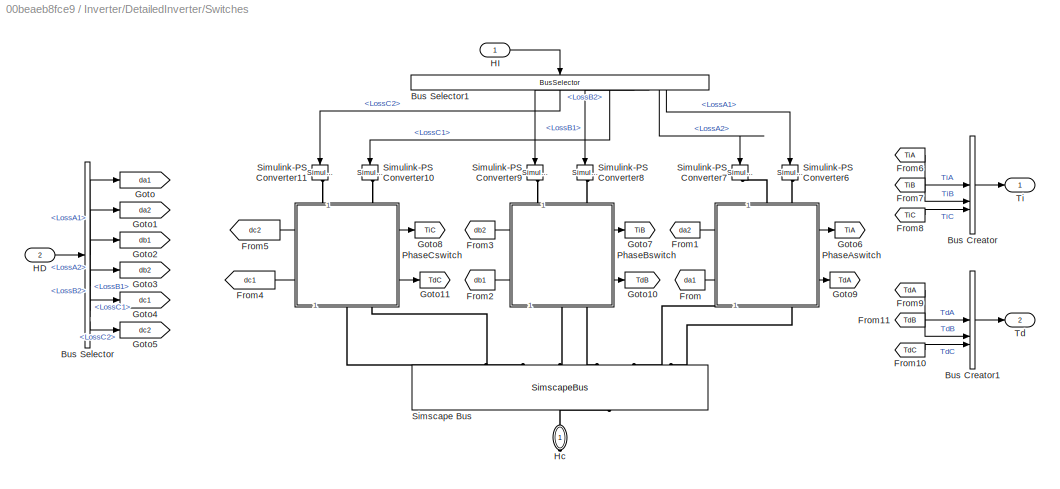
BLOCK [SubSystem] Inverter/DetailedInverter/Switches
  NameLocation = top
  PortSchema = {"entries":[{"content":{"sides":[{"content":{"connectorIds":[]},"type":"ConnectorPlacement.EquallySpacedRectSide","uuid":"13dd74a1-5c62-48c5-9ddb-fd86d3425da3"},{"content":{"connectorIds":["RConn1"],"side":"RIGHT"},"type":"ConnectorPlacement.EquallySpacedRectSide","uuid":"5f5f3d4d-e36b-4884-95be-8fef19471975"},{"content":{"connectorIds":["Out1","Out2"],"side":"TOP"},"type":"ConnectorPlacement.Equa...<+405ch>
  VariantControl = Reduced - Use only for thermal steady-state estimation
BLOCK [BusCreator] Inverter/DetailedInverter/Switches/Bus Creator
  DisplayOption = bar
  InheritFromInputs = on
  Inputs = 3
BLOCK [BusCreator] Inverter/DetailedInverter/Switches/Bus Creator1
  DisplayOption = bar
  InheritFromInputs = on
  Inputs = 3
BLOCK [BusSelector] Inverter/DetailedInverter/Switches/Bus Selector
  OutputSignals = LossA1,LossA2,LossB1,LossB2,LossC1,LossC2
BLOCK [BusSelector] Inverter/DetailedInverter/Switches/Bus Selector1
  NameLocation = left
  OutputSignals = LossC2,LossC1,LossB2,LossB1,LossA2,LossA1
BLOCK [From] Inverter/DetailedInverter/Switches/From
  GotoTag = da1
BLOCK [From] Inverter/DetailedInverter/Switches/From1
  GotoTag = da2
BLOCK [From] Inverter/DetailedInverter/Switches/From10
  GotoTag = TdC
BLOCK [From] Inverter/DetailedInverter/Switches/From11
  GotoTag = TdB
BLOCK [From] Inverter/DetailedInverter/Switches/From2
  GotoTag = db1
BLOCK [From] Inverter/DetailedInverter/Switches/From3
  GotoTag = db2
BLOCK [From] Inverter/DetailedInverter/Switches/From4
  GotoTag = dc1
BLOCK [From] Inverter/DetailedInverter/Switches/From5
  GotoTag = dc2
BLOCK [From] Inverter/DetailedInverter/Switches/From6
  GotoTag = TiA
BLOCK [From] Inverter/DetailedInverter/Switches/From7
  GotoTag = TiB
BLOCK [From] Inverter/DetailedInverter/Switches/From8
  GotoTag = TiC
BLOCK [From] Inverter/DetailedInverter/Switches/From9
  GotoTag = TdA
BLOCK [Goto] Inverter/DetailedInverter/Switches/Goto
  GotoTag = da1
BLOCK [Goto] Inverter/DetailedInverter/Switches/Goto1
  GotoTag = da2
BLOCK [Goto] Inverter/DetailedInverter/Switches/Goto10
  GotoTag = TdB
BLOCK [Goto] Inverter/DetailedInverter/Switches/Goto11
  GotoTag = TdC
BLOCK [Goto] Inverter/DetailedInverter/Switches/Goto2
  GotoTag = db1
BLOCK [Goto] Inverter/DetailedInverter/Switches/Goto3
  GotoTag = db2
BLOCK [Goto] Inverter/DetailedInverter/Switches/Goto4
  GotoTag = dc1
BLOCK [Goto] Inverter/DetailedInverter/Switches/Goto5
  GotoTag = dc2
BLOCK [Goto] Inverter/DetailedInverter/Switches/Goto6
  GotoTag = TiA
BLOCK [Goto] Inverter/DetailedInverter/Switches/Goto7
  GotoTag = TiB
BLOCK [Goto] Inverter/DetailedInverter/Switches/Goto8
  GotoTag = TiC
BLOCK [Goto] Inverter/DetailedInverter/Switches/Goto9
  GotoTag = TdA
BLOCK [Inport] Inverter/DetailedInverter/Switches/HD
  Port = 2
BLOCK [Inport] Inverter/DetailedInverter/Switches/HI
BLOCK [PMIOPort] Inverter/DetailedInverter/Switches/Hc
  NameLocation = right
  Side = Right
  Tag = PMCPort
BLOCK [SubSystem] Inverter/DetailedInverter/Switches/PhaseAswitch
  NameLocation = left
  PortSchema = {"entries":[{"content":{"sides":[{"content":{"connectorIds":["LConn1","LConn2"]},"type":"ConnectorPlacement.EquallySpacedRectSide","uuid":"5f7affab-94ba-4b7f-a148-0a32bfd918ba"},{"content":{"connectorIds":["RConn1","RConn2"],"side":"RIGHT"},"type":"ConnectorPlacement.EquallySpacedRectSide","uuid":"63d9d7a2-362e-4409-8a34-3b6dc92bbacd"},{"content":{"connectorIds":["In1","In2"],"side":"TOP"},"type":...<+431ch>  <repeated x3 — deduplicated; at blocks: PhaseAswitch, PhaseBswitch, PhaseCswitch>
BLOCK [Reference] Inverter/DetailedInverter/Switches/PhaseAswitch/Controlled Heat Flow Rate Source  REF=fl_lib/Thermal/Thermal Sources/Controlled Heat Flow
Rate Source
  SourceBlock = fl_lib/Thermal/Thermal Sources/Controlled Heat Flow\nRate Source
  SourceType = Controlled Heat Flow\nRate Source
BLOCK [Reference] Inverter/DetailedInverter/Switches/PhaseAswitch/Controlled Heat Flow Rate Source1  REF=fl_lib/Thermal/Thermal Sources/Controlled Heat Flow
Rate Source
  SourceBlock = fl_lib/Thermal/Thermal Sources/Controlled Heat Flow\nRate Source
  SourceType = Controlled Heat Flow\nRate Source
BLOCK [Reference] Inverter/DetailedInverter/Switches/PhaseAswitch/Controlled Heat Flow Rate Source2  REF=fl_lib/Thermal/Thermal Sources/Controlled Heat Flow
Rate Source
  SourceBlock = fl_lib/Thermal/Thermal Sources/Controlled Heat Flow\nRate Source
  SourceType = Controlled Heat Flow\nRate Source
BLOCK [Reference] Inverter/DetailedInverter/Switches/PhaseAswitch/Controlled Heat Flow Rate Source3  REF=fl_lib/Thermal/Thermal Sources/Controlled Heat Flow
Rate Source
  SourceBlock = fl_lib/Thermal/Thermal Sources/Controlled Heat Flow\nRate Source
  SourceType = Controlled Heat Flow\nRate Source
BLOCK [PMIOPort] Inverter/DetailedInverter/Switches/PhaseAswitch/Ha1
  NameLocation = top
  Port = 2
  Side = Left
BLOCK [PMIOPort] Inverter/DetailedInverter/Switches/PhaseAswitch/Ha2
  NameLocation = top
  Side = Left
BLOCK [Inport] Inverter/DetailedInverter/Switches/PhaseAswitch/Hd1
  NameLocation = top
  Port = 2
BLOCK [Inport] Inverter/DetailedInverter/Switches/PhaseAswitch/Hd2
  NameLocation = top
BLOCK [PMIOPort] Inverter/DetailedInverter/Switches/PhaseAswitch/Hi1
  NameLocation = top
  Port = 3
  Side = Right
BLOCK [PMIOPort] Inverter/DetailedInverter/Switches/PhaseAswitch/Hi2
  NameLocation = top
  Port = 4
  Side = Right
BLOCK [SimscapeProbe] Inverter/DetailedInverter/Switches/PhaseAswitch/Probe
  BoundBlock = 3669
  Variables = {Tvec}
BLOCK [SimscapeProbe] Inverter/DetailedInverter/Switches/PhaseAswitch/Probe1
  BoundBlock = 3662
  Variables = {Tvec}
BLOCK [Reference] Inverter/DetailedInverter/Switches/PhaseAswitch/RthBasePlt  REF=ee_lib/Passive/Thermal/Thermal Resistor
  NameLocation = right
  SourceBlock = ee_lib/Passive/Thermal/Thermal Resistor
  SourceType = Thermal Resistor
BLOCK [Reference] Inverter/DetailedInverter/Switches/PhaseAswitch/RthSubst  REF=ee_lib/Passive/Thermal/Thermal Resistor
  NameLocation = left
  SourceBlock = ee_lib/Passive/Thermal/Thermal Resistor
  SourceType = Thermal Resistor
BLOCK [Reference] Inverter/DetailedInverter/Switches/PhaseAswitch/RthSubst2  REF=ee_lib/Passive/Thermal/Thermal Resistor
  NameLocation = left
  SourceBlock = ee_lib/Passive/Thermal/Thermal Resistor
  SourceType = Thermal Resistor
BLOCK [Selector] Inverter/DetailedInverter/Switches/PhaseAswitch/Selector
  IndexOptions = Index vector (dialog)
  Indices = [1]
  InputPortWidth = 4
  OutputSizes = 1
BLOCK [Selector] Inverter/DetailedInverter/Switches/PhaseAswitch/Selector1
  IndexOptions = Index vector (dialog)
  Indices = [1]
  InputPortWidth = 4
  OutputSizes = 1
BLOCK [Reference] Inverter/DetailedInverter/Switches/PhaseAswitch/Simulink-PS Converter  REF=nesl_utility/Simulink-PS
Converter
  SourceBlock = nesl_utility/Simulink-PS\nConverter
  SourceType = Simulink-PS\nConverter
BLOCK [Reference] Inverter/DetailedInverter/Switches/PhaseAswitch/Simulink-PS Converter1  REF=nesl_utility/Simulink-PS
Converter
  SourceBlock = nesl_utility/Simulink-PS\nConverter
  SourceType = Simulink-PS\nConverter
BLOCK [Outport] Inverter/DetailedInverter/Switches/PhaseAswitch/TdA
BLOCK [Reference] Inverter/DetailedInverter/Switches/PhaseAswitch/Thermal Reference  REF=fl_lib/Thermal/Thermal Elements/Thermal Reference
  SourceBlock = fl_lib/Thermal/Thermal Elements/Thermal Reference
  SourceType = Thermal Reference
BLOCK [Reference] Inverter/DetailedInverter/Switches/PhaseAswitch/Thermal Reference1  REF=fl_lib/Thermal/Thermal Elements/Thermal Reference
  SourceBlock = fl_lib/Thermal/Thermal Elements/Thermal Reference
  SourceType = Thermal Reference
BLOCK [Reference] Inverter/DetailedInverter/Switches/PhaseAswitch/Thermal Reference2  REF=fl_lib/Thermal/Thermal Elements/Thermal Reference
  SourceBlock = fl_lib/Thermal/Thermal Elements/Thermal Reference
  SourceType = Thermal Reference
BLOCK [Reference] Inverter/DetailedInverter/Switches/PhaseAswitch/Thermal Reference3  REF=fl_lib/Thermal/Thermal Elements/Thermal Reference
  SourceBlock = fl_lib/Thermal/Thermal Elements/Thermal Reference
  SourceType = Thermal Reference
BLOCK [Reference] Inverter/DetailedInverter/Switches/PhaseAswitch/ThermalModelIGBT_AH  REF=ee_lib/Passive/Thermal/Cauer Thermal Model
  NameLocation = top
  SourceBlock = ee_lib/Passive/Thermal/Cauer Thermal Model
  SourceType = Cauer Thermal Model
BLOCK [Reference] Inverter/DetailedInverter/Switches/PhaseAswitch/ThermalModel_BodyDiode_AH  REF=ee_lib/Passive/Thermal/Cauer Thermal Model
  NameLocation = top
  SourceBlock = ee_lib/Passive/Thermal/Cauer Thermal Model
  SourceType = Cauer Thermal Model
BLOCK [Reference] Inverter/DetailedInverter/Switches/PhaseAswitch/ThermalModel_BodyDiode_AL  REF=ee_lib/Passive/Thermal/Cauer Thermal Model
  NameLocation = top
  SourceBlock = ee_lib/Passive/Thermal/Cauer Thermal Model
  SourceType = Cauer Thermal Model
BLOCK [Reference] Inverter/DetailedInverter/Switches/PhaseAswitch/ThermalModel_IGBT_AL  REF=ee_lib/Passive/Thermal/Cauer Thermal Model
  NameLocation = top
  SourceBlock = ee_lib/Passive/Thermal/Cauer Thermal Model
  SourceType = Cauer Thermal Model
BLOCK [Outport] Inverter/DetailedInverter/Switches/PhaseAswitch/TiA
  Port = 2
BLOCK [SubSystem] Inverter/DetailedInverter/Switches/PhaseBswitch
  NameLocation = left
BLOCK [Reference] Inverter/DetailedInverter/Switches/PhaseBswitch/Controlled Heat Flow Rate Source11  REF=fl_lib/Thermal/Thermal Sources/Controlled Heat Flow
Rate Source
  SourceBlock = fl_lib/Thermal/Thermal Sources/Controlled Heat Flow\nRate Source
  SourceType = Controlled Heat Flow\nRate Source
BLOCK [Reference] Inverter/DetailedInverter/Switches/PhaseBswitch/Controlled Heat Flow Rate Source4  REF=fl_lib/Thermal/Thermal Sources/Controlled Heat Flow
Rate Source
  SourceBlock = fl_lib/Thermal/Thermal Sources/Controlled Heat Flow\nRate Source
  SourceType = Controlled Heat Flow\nRate Source
BLOCK [Reference] Inverter/DetailedInverter/Switches/PhaseBswitch/Controlled Heat Flow Rate Source5  REF=fl_lib/Thermal/Thermal Sources/Controlled Heat Flow
Rate Source
  SourceBlock = fl_lib/Thermal/Thermal Sources/Controlled Heat Flow\nRate Source
  SourceType = Controlled Heat Flow\nRate Source
BLOCK [Reference] Inverter/DetailedInverter/Switches/PhaseBswitch/Controlled Heat Flow Rate Source6  REF=fl_lib/Thermal/Thermal Sources/Controlled Heat Flow
Rate Source
  SourceBlock = fl_lib/Thermal/Thermal Sources/Controlled Heat Flow\nRate Source
  SourceType = Controlled Heat Flow\nRate Source
BLOCK [PMIOPort] Inverter/DetailedInverter/Switches/PhaseBswitch/Hb1
  NameLocation = top
  Side = Left
BLOCK [PMIOPort] Inverter/DetailedInverter/Switches/PhaseBswitch/Hb2
  NameLocation = top
  Port = 2
  Side = Left
BLOCK [Inport] Inverter/DetailedInverter/Switches/PhaseBswitch/Hd1
  NameLocation = top
  Port = 2
BLOCK [Inport] Inverter/DetailedInverter/Switches/PhaseBswitch/Hd2
  NameLocation = top
BLOCK [PMIOPort] Inverter/DetailedInverter/Switches/PhaseBswitch/Hi1
  NameLocation = top
  Port = 3
  Side = Right
BLOCK [PMIOPort] Inverter/DetailedInverter/Switches/PhaseBswitch/Hi2
  NameLocation = top
  Port = 4
  Side = Right
BLOCK [SimscapeProbe] Inverter/DetailedInverter/Switches/PhaseBswitch/Probe
  BoundBlock = 3671
  Variables = {Tvec}
BLOCK [SimscapeProbe] Inverter/DetailedInverter/Switches/PhaseBswitch/Probe1
  BoundBlock = 3664
  Variables = {Tvec}
BLOCK [Reference] Inverter/DetailedInverter/Switches/PhaseBswitch/RthBasePlt  REF=ee_lib/Passive/Thermal/Thermal Resistor
  NameLocation = right
  SourceBlock = ee_lib/Passive/Thermal/Thermal Resistor
  SourceType = Thermal Resistor
BLOCK [Reference] Inverter/DetailedInverter/Switches/PhaseBswitch/RthSubstrate  REF=ee_lib/Passive/Thermal/Thermal Resistor
  NameLocation = left
  SourceBlock = ee_lib/Passive/Thermal/Thermal Resistor
  SourceType = Thermal Resistor
BLOCK [Reference] Inverter/DetailedInverter/Switches/PhaseBswitch/RthSubstrate2  REF=ee_lib/Passive/Thermal/Thermal Resistor
  NameLocation = left
  SourceBlock = ee_lib/Passive/Thermal/Thermal Resistor
  SourceType = Thermal Resistor
BLOCK [Selector] Inverter/DetailedInverter/Switches/PhaseBswitch/Selector
  IndexOptions = Index vector (dialog)
  Indices = [1]
  InputPortWidth = 4
  OutputSizes = 1
BLOCK [Selector] Inverter/DetailedInverter/Switches/PhaseBswitch/Selector1
  IndexOptions = Index vector (dialog)
  Indices = [1]
  InputPortWidth = 4
  OutputSizes = 1
BLOCK [Reference] Inverter/DetailedInverter/Switches/PhaseBswitch/Simulink-PS Converter2  REF=nesl_utility/Simulink-PS
Converter
  SourceBlock = nesl_utility/Simulink-PS\nConverter
  SourceType = Simulink-PS\nConverter
BLOCK [Reference] Inverter/DetailedInverter/Switches/PhaseBswitch/Simulink-PS Converter3  REF=nesl_utility/Simulink-PS
Converter
  SourceBlock = nesl_utility/Simulink-PS\nConverter
  SourceType = Simulink-PS\nConverter
BLOCK [Outport] Inverter/DetailedInverter/Switches/PhaseBswitch/TdB
BLOCK [Reference] Inverter/DetailedInverter/Switches/PhaseBswitch/Thermal Reference4  REF=fl_lib/Thermal/Thermal Elements/Thermal Reference
  SourceBlock = fl_lib/Thermal/Thermal Elements/Thermal Reference
  SourceType = Thermal Reference
BLOCK [Reference] Inverter/DetailedInverter/Switches/PhaseBswitch/Thermal Reference5  REF=fl_lib/Thermal/Thermal Elements/Thermal Reference
  SourceBlock = fl_lib/Thermal/Thermal Elements/Thermal Reference
  SourceType = Thermal Reference
BLOCK [Reference] Inverter/DetailedInverter/Switches/PhaseBswitch/Thermal Reference6  REF=fl_lib/Thermal/Thermal Elements/Thermal Reference
  SourceBlock = fl_lib/Thermal/Thermal Elements/Thermal Reference
  SourceType = Thermal Reference
BLOCK [Reference] Inverter/DetailedInverter/Switches/PhaseBswitch/Thermal Reference7  REF=fl_lib/Thermal/Thermal Elements/Thermal Reference
  SourceBlock = fl_lib/Thermal/Thermal Elements/Thermal Reference
  SourceType = Thermal Reference
BLOCK [Reference] Inverter/DetailedInverter/Switches/PhaseBswitch/ThermalModel_BodyDiode_BH  REF=ee_lib/Passive/Thermal/Cauer Thermal Model
  NameLocation = top
  SourceBlock = ee_lib/Passive/Thermal/Cauer Thermal Model
  SourceType = Cauer Thermal Model
BLOCK [Reference] Inverter/DetailedInverter/Switches/PhaseBswitch/ThermalModel_BodyDiode_BL  REF=ee_lib/Passive/Thermal/Cauer Thermal Model
  NameLocation = top
  SourceBlock = ee_lib/Passive/Thermal/Cauer Thermal Model
  SourceType = Cauer Thermal Model
BLOCK [Reference] Inverter/DetailedInverter/Switches/PhaseBswitch/ThermalModel_IGBT_BH  REF=ee_lib/Passive/Thermal/Cauer Thermal Model
  NameLocation = top
  SourceBlock = ee_lib/Passive/Thermal/Cauer Thermal Model
  SourceType = Cauer Thermal Model
BLOCK [Reference] Inverter/DetailedInverter/Switches/PhaseBswitch/ThermalModel_IGBT_BL  REF=ee_lib/Passive/Thermal/Cauer Thermal Model
  NameLocation = top
  SourceBlock = ee_lib/Passive/Thermal/Cauer Thermal Model
  SourceType = Cauer Thermal Model
BLOCK [Outport] Inverter/DetailedInverter/Switches/PhaseBswitch/TiB
  Port = 2
BLOCK [SubSystem] Inverter/DetailedInverter/Switches/PhaseCswitch
  NameLocation = left
BLOCK [Outport] Inverter/DetailedInverter/Switches/PhaseCswitch/ TdC
BLOCK [Reference] Inverter/DetailedInverter/Switches/PhaseCswitch/Controlled Heat Flow Rate Source10  REF=fl_lib/Thermal/Thermal Sources/Controlled Heat Flow
Rate Source
  SourceBlock = fl_lib/Thermal/Thermal Sources/Controlled Heat Flow\nRate Source
  SourceType = Controlled Heat Flow\nRate Source
BLOCK [Reference] Inverter/DetailedInverter/Switches/PhaseCswitch/Controlled Heat Flow Rate Source7  REF=fl_lib/Thermal/Thermal Sources/Controlled Heat Flow
Rate Source
  SourceBlock = fl_lib/Thermal/Thermal Sources/Controlled Heat Flow\nRate Source
  SourceType = Controlled Heat Flow\nRate Source
BLOCK [Reference] Inverter/DetailedInverter/Switches/PhaseCswitch/Controlled Heat Flow Rate Source8  REF=fl_lib/Thermal/Thermal Sources/Controlled Heat Flow
Rate Source
  SourceBlock = fl_lib/Thermal/Thermal Sources/Controlled Heat Flow\nRate Source
  SourceType = Controlled Heat Flow\nRate Source
BLOCK [Reference] Inverter/DetailedInverter/Switches/PhaseCswitch/Controlled Heat Flow Rate Source9  REF=fl_lib/Thermal/Thermal Sources/Controlled Heat Flow
Rate Source
  SourceBlock = fl_lib/Thermal/Thermal Sources/Controlled Heat Flow\nRate Source
  SourceType = Controlled Heat Flow\nRate Source
BLOCK [Inport] Inverter/DetailedInverter/Switches/PhaseCswitch/HD1
  NameLocation = top
  Port = 2
BLOCK [PMIOPort] Inverter/DetailedInverter/Switches/PhaseCswitch/Hc1 
  NameLocation = top
  Side = Left
BLOCK [PMIOPort] Inverter/DetailedInverter/Switches/PhaseCswitch/Hc2 
  NameLocation = top
  Port = 2
  Side = Left
BLOCK [Inport] Inverter/DetailedInverter/Switches/PhaseCswitch/Hd2
  NameLocation = top
BLOCK [PMIOPort] Inverter/DetailedInverter/Switches/PhaseCswitch/Hi1
  NameLocation = top
  Port = 3
  Side = Right
BLOCK [PMIOPort] Inverter/DetailedInverter/Switches/PhaseCswitch/Hi2
  NameLocation = top
  Port = 4
  Side = Right
BLOCK [SimscapeProbe] Inverter/DetailedInverter/Switches/PhaseCswitch/Probe
  BoundBlock = 3673
  Variables = {Tvec}
BLOCK [SimscapeProbe] Inverter/DetailedInverter/Switches/PhaseCswitch/Probe1
  BoundBlock = 3666
  Variables = {Tvec}
BLOCK [Reference] Inverter/DetailedInverter/Switches/PhaseCswitch/RthSubstrate1  REF=ee_lib/Passive/Thermal/Thermal Resistor
  NameLocation = left
  SourceBlock = ee_lib/Passive/Thermal/Thermal Resistor
  SourceType = Thermal Resistor
BLOCK [Reference] Inverter/DetailedInverter/Switches/PhaseCswitch/RthSubstrate2  REF=ee_lib/Passive/Thermal/Thermal Resistor
  NameLocation = left
  SourceBlock = ee_lib/Passive/Thermal/Thermal Resistor
  SourceType = Thermal Resistor
BLOCK [Reference] Inverter/DetailedInverter/Switches/PhaseCswitch/Rth_basePlt  REF=ee_lib/Passive/Thermal/Thermal Resistor
  NameLocation = right
  SourceBlock = ee_lib/Passive/Thermal/Thermal Resistor
  SourceType = Thermal Resistor
BLOCK [Selector] Inverter/DetailedInverter/Switches/PhaseCswitch/Selector
  IndexOptions = Index vector (dialog)
  Indices = [1]
  InputPortWidth = 4
  OutputSizes = 1
BLOCK [Selector] Inverter/DetailedInverter/Switches/PhaseCswitch/Selector1
  IndexOptions = Index vector (dialog)
  Indices = [1]
  InputPortWidth = 4
  OutputSizes = 1
BLOCK [Reference] Inverter/DetailedInverter/Switches/PhaseCswitch/Simulink-PS Converter4  REF=nesl_utility/Simulink-PS
Converter
  SourceBlock = nesl_utility/Simulink-PS\nConverter
  SourceType = Simulink-PS\nConverter
BLOCK [Reference] Inverter/DetailedInverter/Switches/PhaseCswitch/Simulink-PS Converter5  REF=nesl_utility/Simulink-PS
Converter
  SourceBlock = nesl_utility/Simulink-PS\nConverter
  SourceType = Simulink-PS\nConverter
BLOCK [Reference] Inverter/DetailedInverter/Switches/PhaseCswitch/Thermal Reference10  REF=fl_lib/Thermal/Thermal Elements/Thermal Reference
  SourceBlock = fl_lib/Thermal/Thermal Elements/Thermal Reference
  SourceType = Thermal Reference
BLOCK [Reference] Inverter/DetailedInverter/Switches/PhaseCswitch/Thermal Reference11  REF=fl_lib/Thermal/Thermal Elements/Thermal Reference
  SourceBlock = fl_lib/Thermal/Thermal Elements/Thermal Reference
  SourceType = Thermal Reference
BLOCK [Reference] Inverter/DetailedInverter/Switches/PhaseCswitch/Thermal Reference8  REF=fl_lib/Thermal/Thermal Elements/Thermal Reference
  SourceBlock = fl_lib/Thermal/Thermal Elements/Thermal Reference
  SourceType = Thermal Reference
BLOCK [Reference] Inverter/DetailedInverter/Switches/PhaseCswitch/Thermal Reference9  REF=fl_lib/Thermal/Thermal Elements/Thermal Reference
  SourceBlock = fl_lib/Thermal/Thermal Elements/Thermal Reference
  SourceType = Thermal Reference
BLOCK [Reference] Inverter/DetailedInverter/Switches/PhaseCswitch/ThermalModel_BodyDiode_CH  REF=ee_lib/Passive/Thermal/Cauer Thermal Model
  NameLocation = top
  SourceBlock = ee_lib/Passive/Thermal/Cauer Thermal Model
  SourceType = Cauer Thermal Model
BLOCK [Reference] Inverter/DetailedInverter/Switches/PhaseCswitch/ThermalModel_BodyDiode_CL  REF=ee_lib/Passive/Thermal/Cauer Thermal Model
  NameLocation = top
  SourceBlock = ee_lib/Passive/Thermal/Cauer Thermal Model
  SourceType = Cauer Thermal Model
BLOCK [Reference] Inverter/DetailedInverter/Switches/PhaseCswitch/ThermalModel_IGBT_CH  REF=ee_lib/Passive/Thermal/Cauer Thermal Model
  NameLocation = top
  SourceBlock = ee_lib/Passive/Thermal/Cauer Thermal Model
  SourceType = Cauer Thermal Model
BLOCK [Reference] Inverter/DetailedInverter/Switches/PhaseCswitch/ThermalModel_IGBT_CL  REF=ee_lib/Passive/Thermal/Cauer Thermal Model
  NameLocation = top
  SourceBlock = ee_lib/Passive/Thermal/Cauer Thermal Model
  SourceType = Cauer Thermal Model
BLOCK [Outport] Inverter/DetailedInverter/Switches/PhaseCswitch/TiC
  Port = 2
BLOCK [SimscapeBus] Inverter/DetailedInverter/Switches/Simscape Bus
  HierarchyStrings = H_CL;H_CH;H_BL;H_BH;H_AL;H_AH
  NameLocation = left
BLOCK [Reference] Inverter/DetailedInverter/Switches/Simulink-PS Converter10  REF=nesl_utility/Simulink-PS
Converter
  NameLocation = left
  SourceBlock = nesl_utility/Simulink-PS\nConverter
  SourceType = Simulink-PS\nConverter
BLOCK [Reference] Inverter/DetailedInverter/Switches/Simulink-PS Converter11  REF=nesl_utility/Simulink-PS
Converter
  NameLocation = left
  SourceBlock = nesl_utility/Simulink-PS\nConverter
  SourceType = Simulink-PS\nConverter
BLOCK [Reference] Inverter/DetailedInverter/Switches/Simulink-PS Converter6  REF=nesl_utility/Simulink-PS
Converter
  NameLocation = left
  SourceBlock = nesl_utility/Simulink-PS\nConverter
  SourceType = Simulink-PS\nConverter
BLOCK [Reference] Inverter/DetailedInverter/Switches/Simulink-PS Converter7  REF=nesl_utility/Simulink-PS
Converter
  NameLocation = left
  SourceBlock = nesl_utility/Simulink-PS\nConverter
  SourceType = Simulink-PS\nConverter
BLOCK [Reference] Inverter/DetailedInverter/Switches/Simulink-PS Converter8  REF=nesl_utility/Simulink-PS
Converter
  NameLocation = left
  SourceBlock = nesl_utility/Simulink-PS\nConverter
  SourceType = Simulink-PS\nConverter
BLOCK [Reference] Inverter/DetailedInverter/Switches/Simulink-PS Converter9  REF=nesl_utility/Simulink-PS
Converter
  NameLocation = left
  SourceBlock = nesl_utility/Simulink-PS\nConverter
  SourceType = Simulink-PS\nConverter
BLOCK [Outport] Inverter/DetailedInverter/Switches/Td
  Port = 2
BLOCK [Outport] Inverter/DetailedInverter/Switches/Ti
BLOCK [Outport] Inverter/DetailedInverter/Tinv
BLOCK [PMIOPort] Inverter/DetailedInverter/WEGin
  Side = Left
BLOCK [PMIOPort] Inverter/DetailedInverter/WEGout
  Port = 2
  Side = Left
BLOCK [Inport] Inverter/DetailedInverter/mspd
  NameLocation = left
BLOCK [Inport] Inverter/DetailedInverter/mtrq
  NameLocation = left
  Port = 2
BLOCK [Outport] Inverter/Tinv
BLOCK [PMIOPort] Inverter/WEGin
  Side = Left
BLOCK [PMIOPort] Inverter/WEGout
  NameLocation = top
  Port = 2
  Side = Left
BLOCK [Inport] Inverter/mspd
BLOCK [Inport] Inverter/mtrq
  Port = 2
BLOCK [SubSystem] Motor Cooling
  LabelModeActiveChoice = JacketOn
  PortSchema = {"entries":[{"content":{"sides":[{"content":{"connectorIds":[]},"type":"ConnectorPlacement.EquallySpacedRectSide","uuid":"fad2e2e2-c8a8-4ae7-a5e0-e2d04801ad81"},{"content":{"connectorIds":[],"side":"RIGHT"},"type":"ConnectorPlacement.EquallySpacedRectSide","uuid":"a876eae4-26d9-44a3-9dd3-410a35dafbf1"},{"content":{"connectorIds":["LConn1","LConn2","LConn3"],"side":"TOP"},"type":"ConnectorPlacement...<+255ch>
  ShowPortLabels = none
  Variant = on
  VariantControlMode = label
BLOCK [PMIOPort] Motor Cooling/JacketH
  Port = 2
  Side = Left
BLOCK [PMIOPort] Motor Cooling/Ref
  NameLocation = top
  Port = 3
  Side = Left
BLOCK [PMIOPort] Motor Cooling/WindingH
  Side = Left
BLOCK [SubSystem] Motor Cooling/coolantJacket
  NameLocation = top
  VariantControl = JacketOn
BLOCK [Reference] Motor Cooling/coolantJacket/ControlTsump  REF=fl_lib/Thermal Liquid/Elements/Reservoir (TL)
  NameLocation = left
  SourceBlock = fl_lib/Thermal Liquid/Elements/Reservoir (TL)
  SourceType = Reservoir (TL)
BLOCK [PMIOPort] Motor Cooling/coolantJacket/JacketH
  NameLocation = top
  Side = Left
BLOCK [Reference] Motor Cooling/coolantJacket/Perfect Insulator  REF=fl_lib/Thermal/Thermal Elements/Perfect Insulator
  NameLocation = right
  SourceBlock = fl_lib/Thermal/Thermal Elements/Perfect Insulator
  SourceType = Perfect Insulator
BLOCK [Reference] Motor Cooling/coolantJacket/Pipe  REF=fl_lib/Thermal Liquid/Elements/Pipe (TL)
  NameLocation = top
  SourceBlock = fl_lib/Thermal Liquid/Elements/Pipe (TL)
  SourceType = Pipe (TL)
BLOCK [Reference] Motor Cooling/coolantJacket/Pump  REF=fl_lib/Thermal Liquid/Sources/Flow Rate Source
(TL)
  SourceBlock = fl_lib/Thermal Liquid/Sources/Flow Rate Source\n(TL)
  SourceType = Flow Rate Source\n(TL)
BLOCK [PMIOPort] Motor Cooling/coolantJacket/Ref
  Port = 3
  Side = Left
BLOCK [Reference] Motor Cooling/coolantJacket/Thermal Liquid Properties (TL)  REF=SimscapeFluids_lib/Thermal Liquid/Utilities/Thermal Liquid
Properties (TL)
  SourceBlock = SimscapeFluids_lib/Thermal Liquid/Utilities/Thermal Liquid\nProperties (TL)
  SourceType = Thermal Liquid\nProperties (TL)
BLOCK [PMIOPort] Motor Cooling/coolantJacket/WindingH
  NameLocation = top
  Port = 2
  Side = Left
BLOCK [SubSystem] Motor Cooling/windingOilJet
  NameLocation = top
  VariantControl = JetOn
BLOCK [Reference] Motor Cooling/windingOilJet/ oilflowRate   REF=fl_lib/Physical Signals/Sources/PS Constant
  SourceBlock = fl_lib/Physical Signals/Sources/PS Constant
  SourceType = PS Constant
BLOCK [Reference] Motor Cooling/windingOilJet/Heat Exchanger (TL)  REF=SimscapeFluids_lib/Heat Exchangers/Thermal Liquid/Heat Exchanger (TL)
  SourceBlock = SimscapeFluids_lib/Heat Exchangers/Thermal Liquid/Heat Exchanger (TL)
  SourceType = Heat Exchanger (TL)
BLOCK [Reference] Motor Cooling/windingOilJet/HeatExHTC  REF=fl_lib/Physical Signals/Sources/PS Constant
  SourceBlock = fl_lib/Physical Signals/Sources/PS Constant
  SourceType = PS Constant
BLOCK [PMIOPort] Motor Cooling/windingOilJet/JacketH
  Side = Left
BLOCK [Reference] Motor Cooling/windingOilJet/OilHeatCapacity  REF=fl_lib/Physical Signals/Functions/PS Gain
  SourceBlock = fl_lib/Physical Signals/Functions/PS Gain
  SourceType = PS Gain
BLOCK [Reference] Motor Cooling/windingOilJet/Perfect Insulator  REF=fl_lib/Thermal/Thermal Elements/Perfect Insulator
  NameLocation = right
  SourceBlock = fl_lib/Thermal/Thermal Elements/Perfect Insulator
  SourceType = Perfect Insulator
BLOCK [Reference] Motor Cooling/windingOilJet/Pump  REF=fl_lib/Thermal Liquid/Sources/Flow Rate Source
(TL)
  NameLocation = top
  SourceBlock = fl_lib/Thermal Liquid/Sources/Flow Rate Source\n(TL)
  SourceType = Flow Rate Source\n(TL)
BLOCK [PMIOPort] Motor Cooling/windingOilJet/Ref
  NameLocation = top
  Port = 3
  Side = Left
BLOCK [Reference] Motor Cooling/windingOilJet/Reservoir (TL)  REF=fl_lib/Thermal Liquid/Elements/Reservoir (TL)
  NameLocation = right
  SourceBlock = fl_lib/Thermal Liquid/Elements/Reservoir (TL)
  SourceType = Reservoir (TL)
BLOCK [Reference] Motor Cooling/windingOilJet/Thermal Liquid Properties (TL)  REF=SimscapeFluids_lib/Thermal Liquid/Utilities/Thermal Liquid
Properties (TL)
  SourceBlock = SimscapeFluids_lib/Thermal Liquid/Utilities/Thermal Liquid\nProperties (TL)
  SourceType = Thermal Liquid\nProperties (TL)
BLOCK [SubSystem] Motor Cooling/windingOilJet/ThermalResistance 
  NameLocation = top
  PortSchema = {"entries":[{"content":{"sides":[{"content":{"connectorIds":["LConn1","LConn2"]},"type":"ConnectorPlacement.EquallySpacedRectSide","uuid":"baf5ff6f-2bbb-4e60-9dad-e00baf500c6c"},{"content":{"connectorIds":["RConn1"],"side":"RIGHT"},"type":"ConnectorPlacement.EquallySpacedRectSide","uuid":"04d231ab-fa8a-490b-9fb3-01902b632b73"},{"content":{"connectorIds":[],"side":"TOP"},"type":"ConnectorPlacement....<+406ch>
BLOCK [SubSystem] Motor Cooling/windingOilJet/ThermalResistance /    HeatTransferCoefficient
BLOCK [PMIOPort] Motor Cooling/windingOilJet/ThermalResistance /    HeatTransferCoefficient/HTC
  Port = 3
  Side = Right
BLOCK [PMIOPort] Motor Cooling/windingOilJet/ThermalResistance /    HeatTransferCoefficient/Nu
  Side = Left
BLOCK [Reference] Motor Cooling/windingOilJet/ThermalResistance /    HeatTransferCoefficient/PS Divide  REF=fl_lib/Physical Signals/Functions/PS Divide
  SourceBlock = fl_lib/Physical Signals/Functions/PS Divide
  SourceType = PS Divide
BLOCK [Reference] Motor Cooling/windingOilJet/ThermalResistance /    HeatTransferCoefficient/PS Gain  REF=fl_lib/Physical Signals/Functions/PS Gain
  SourceBlock = fl_lib/Physical Signals/Functions/PS Gain
  SourceType = PS Gain
BLOCK [PMIOPort] Motor Cooling/windingOilJet/ThermalResistance /    HeatTransferCoefficient/od
  Port = 2
  Side = Left
BLOCK [PMIOPort] Motor Cooling/windingOilJet/ThermalResistance /FilmThickness
  Side = Left
BLOCK [SubSystem] Motor Cooling/windingOilJet/ThermalResistance /Nusselt No
BLOCK [PMIOPort] Motor Cooling/windingOilJet/ThermalResistance /Nusselt No/Nu
  Port = 2
  Side = Right
BLOCK [Reference] Motor Cooling/windingOilJet/ThermalResistance /Nusselt No/PS Gain  REF=fl_lib/Physical Signals/Functions/PS Gain
  SourceBlock = fl_lib/Physical Signals/Functions/PS Gain
  SourceType = PS Gain
BLOCK [Reference] Motor Cooling/windingOilJet/ThermalResistance /Nusselt No/PS Math Function  REF=fl_lib/Physical Signals/Functions/PS Math Function
  SourceBlock = fl_lib/Physical Signals/Functions/PS Math Function
  SourceType = PS Math Function
BLOCK [Reference] Motor Cooling/windingOilJet/ThermalResistance /Nusselt No/PS Math Function1  REF=fl_lib/Physical Signals/Functions/PS Math Function
  SourceBlock = fl_lib/Physical Signals/Functions/PS Math Function
  SourceType = PS Math Function
BLOCK [Reference] Motor Cooling/windingOilJet/ThermalResistance /Nusselt No/PS Product  REF=fl_lib/Physical Signals/Functions/PS Product
  SourceBlock = fl_lib/Physical Signals/Functions/PS Product
  SourceType = PS Product
BLOCK [PMIOPort] Motor Cooling/windingOilJet/ThermalResistance /Nusselt No/Pr
  Port = 3
  Side = Left
BLOCK [PMIOPort] Motor Cooling/windingOilJet/ThermalResistance /Nusselt No/Re
  Side = Left
BLOCK [PMIOPort] Motor Cooling/windingOilJet/ThermalResistance /OD
  Port = 2
  Side = Left
BLOCK [SubSystem] Motor Cooling/windingOilJet/ThermalResistance /Oil Wet Area
BLOCK [PMIOPort] Motor Cooling/windingOilJet/ThermalResistance /Oil Wet Area/Area
  Port = 5
  Side = Right
BLOCK [PMIOPort] Motor Cooling/windingOilJet/ThermalResistance /Oil Wet Area/OD
  Port = 4
  Side = Left
BLOCK [Reference] Motor Cooling/windingOilJet/ThermalResistance /Oil Wet Area/PS Divide  REF=fl_lib/Physical Signals/Functions/PS Divide
  SourceBlock = fl_lib/Physical Signals/Functions/PS Divide
  SourceType = PS Divide
BLOCK [Reference] Motor Cooling/windingOilJet/ThermalResistance /Oil Wet Area/PS Gain  REF=fl_lib/Physical Signals/Functions/PS Gain
  SourceBlock = fl_lib/Physical Signals/Functions/PS Gain
  SourceType = PS Gain
BLOCK [Reference] Motor Cooling/windingOilJet/ThermalResistance /Oil Wet Area/PS Product  REF=fl_lib/Physical Signals/Functions/PS Product
  SourceBlock = fl_lib/Physical Signals/Functions/PS Product
  SourceType = PS Product
BLOCK [Reference] Motor Cooling/windingOilJet/ThermalResistance /Oil Wet Area/PS Product1  REF=fl_lib/Physical Signals/Functions/PS Product
  SourceBlock = fl_lib/Physical Signals/Functions/PS Product
  SourceType = PS Product
BLOCK [PMIOPort] Motor Cooling/windingOilJet/ThermalResistance /Oil Wet Area/Q
  Side = Left
BLOCK [PMIOPort] Motor Cooling/windingOilJet/ThermalResistance /Oil Wet Area/oilThickness
  Port = 2
  Side = Left
BLOCK [PMIOPort] Motor Cooling/windingOilJet/ThermalResistance /Oil Wet Area/v
  Port = 3
  Side = Left
BLOCK [PMIOPort] Motor Cooling/windingOilJet/ThermalResistance /Oil_flow
  Port = 4
  Side = Right
BLOCK [Reference] Motor Cooling/windingOilJet/ThermalResistance /PS Math Function  REF=fl_lib/Physical Signals/Functions/PS Math Function
  SourceBlock = fl_lib/Physical Signals/Functions/PS Math Function
  SourceType = PS Math Function
BLOCK [Reference] Motor Cooling/windingOilJet/ThermalResistance /PS Product  REF=fl_lib/Physical Signals/Functions/PS Product
  SourceBlock = fl_lib/Physical Signals/Functions/PS Product
  SourceType = PS Product
BLOCK [Reference] Motor Cooling/windingOilJet/ThermalResistance /PrNo  REF=fl_lib/Physical Signals/Sources/PS Constant
  SourceBlock = fl_lib/Physical Signals/Sources/PS Constant
  SourceType = PS Constant
BLOCK [PMIOPort] Motor Cooling/windingOilJet/ThermalResistance /RTh
  Port = 3
  Side = Right
BLOCK [SubSystem] Motor Cooling/windingOilJet/ThermalResistance /ReynoldsNo
BLOCK [Reference] Motor Cooling/windingOilJet/ThermalResistance /ReynoldsNo/KinamaticVisc  REF=fl_lib/Physical Signals/Sources/PS Constant
  SourceBlock = fl_lib/Physical Signals/Sources/PS Constant
  SourceType = PS Constant
BLOCK [Reference] Motor Cooling/windingOilJet/ThermalResistance /ReynoldsNo/PS Divide  REF=fl_lib/Physical Signals/Functions/PS Divide
  SourceBlock = fl_lib/Physical Signals/Functions/PS Divide
  SourceType = PS Divide
BLOCK [Reference] Motor Cooling/windingOilJet/ThermalResistance /ReynoldsNo/PS Gain  REF=fl_lib/Physical Signals/Functions/PS Gain
  SourceBlock = fl_lib/Physical Signals/Functions/PS Gain
  SourceType = PS Gain
BLOCK [Reference] Motor Cooling/windingOilJet/ThermalResistance /ReynoldsNo/PS Product  REF=fl_lib/Physical Signals/Functions/PS Product
  SourceBlock = fl_lib/Physical Signals/Functions/PS Product
  SourceType = PS Product
BLOCK [PMIOPort] Motor Cooling/windingOilJet/ThermalResistance /ReynoldsNo/Re
  Port = 3
  Side = Right
BLOCK [PMIOPort] Motor Cooling/windingOilJet/ThermalResistance /ReynoldsNo/od
  Port = 2
  Side = Left
BLOCK [PMIOPort] Motor Cooling/windingOilJet/ThermalResistance /ReynoldsNo/v
  Side = Left
BLOCK [SubSystem] Motor Cooling/windingOilJet/ThermalResistance /avgDriftVelocity
BLOCK [Reference] Motor Cooling/windingOilJet/ThermalResistance /avgDriftVelocity/Jet Velocity   REF=fl_lib/Physical Signals/Sources/PS Constant
  SourceBlock = fl_lib/Physical Signals/Sources/PS Constant
  SourceType = PS Constant
BLOCK [Reference] Motor Cooling/windingOilJet/ThermalResistance /avgDriftVelocity/PS Add  REF=fl_lib/Physical Signals/Functions/PS Add
  SourceBlock = fl_lib/Physical Signals/Functions/PS Add
  SourceType = PS Add
BLOCK [Reference] Motor Cooling/windingOilJet/ThermalResistance /avgDriftVelocity/PS Add1  REF=fl_lib/Physical Signals/Functions/PS Add
  SourceBlock = fl_lib/Physical Signals/Functions/PS Add
  SourceType = PS Add
BLOCK [Reference] Motor Cooling/windingOilJet/ThermalResistance /avgDriftVelocity/PS Gain  REF=fl_lib/Physical Signals/Functions/PS Gain
  SourceBlock = fl_lib/Physical Signals/Functions/PS Gain
  SourceType = PS Gain
BLOCK [Reference] Motor Cooling/windingOilJet/ThermalResistance /avgDriftVelocity/PS Gain1  REF=fl_lib/Physical Signals/Functions/PS Gain
  SourceBlock = fl_lib/Physical Signals/Functions/PS Gain
  SourceType = PS Gain
BLOCK [Reference] Motor Cooling/windingOilJet/ThermalResistance /avgDriftVelocity/PS Math Function  REF=fl_lib/Physical Signals/Functions/PS Math Function
  SourceBlock = fl_lib/Physical Signals/Functions/PS Math Function
  SourceType = PS Math Function
BLOCK [Reference] Motor Cooling/windingOilJet/ThermalResistance /avgDriftVelocity/PS Math Function1  REF=fl_lib/Physical Signals/Functions/PS Math Function
  SourceBlock = fl_lib/Physical Signals/Functions/PS Math Function
  SourceType = PS Math Function
BLOCK [PMIOPort] Motor Cooling/windingOilJet/ThermalResistance /avgDriftVelocity/v
  Port = 2
  Side = Left
BLOCK [PMIOPort] Motor Cooling/windingOilJet/ThermalResistance /avgDriftVelocity/vd
  Side = Right
BLOCK [Reference] Motor Cooling/windingOilJet/Variable Thermal Resistance  REF=fl_lib/Thermal/Thermal Elements/Variable Thermal
Resistance
  SourceBlock = fl_lib/Thermal/Thermal Elements/Variable Thermal\nResistance
  SourceType = Variable Thermal\nResistance
BLOCK [PMIOPort] Motor Cooling/windingOilJet/WindingH
  Port = 2
  Side = Left
BLOCK [Reference] Motor Cooling/windingOilJet/avgOilThickness  REF=fl_lib/Physical Signals/Sources/PS Constant
  SourceBlock = fl_lib/Physical Signals/Sources/PS Constant
  SourceType = PS Constant
BLOCK [Reference] Motor Cooling/windingOilJet/windingOD  REF=fl_lib/Physical Signals/Sources/PS Constant
  SourceBlock = fl_lib/Physical Signals/Sources/PS Constant
  SourceType = PS Constant
BLOCK [Reference] Reservoir (TL)2  REF=fl_lib/Thermal Liquid/Elements/Reservoir (TL)
  SourceBlock = fl_lib/Thermal Liquid/Elements/Reservoir (TL)
  SourceType = Reservoir (TL)
BLOCK [Scope] Scope
  Floating = off
  NumInputPorts = 1
  ScopeSpecificationString = Simulink.scopes.TimeScopeBlockCfg('CurrentConfiguration', extmgr.ConfigurationSet(extmgr.Configuration('Core','General UI',true),extmgr.Configuration('Core','Source UI',true),extmgr.Configuration('Sources','WiredSimulink',true,'DataLoggingVariableName','ScopeData4'),extmgr.Configuration('Visuals','Time Domain',true,'SerializedDisplays',{struct('MinYLimReal','-13.41071','MaxYLimReal','107.62444','Y...<+1484ch>
BLOCK [Reference] Solver Configuration1  REF=nesl_utility/Solver
Configuration
  NameLocation = top
  SourceBlock = nesl_utility/Solver\nConfiguration
  SourceType = Solver\nConfiguration
BLOCK [Stop] Stop Simulation
BLOCK [SubSystem] Subsystem
  NameLocation = left
  PortSchema = {"entries":[{"content":{"sides":[{"content":{"connectorIds":[]},"type":"ConnectorPlacement.EquallySpacedRectSide","uuid":"5b33bb33-1028-4467-9d0b-860d7c65cb16"},{"content":{"connectorIds":["RConn1","RConn2","RConn3"],"side":"RIGHT"},"type":"ConnectorPlacement.EquallySpacedRectSide","uuid":"d30bcb89-569c-4584-a5e8-bf96143649ac"},{"content":{"connectorIds":["In1"],"side":"TOP"},"type":"ConnectorPlac...<+260ch>
BLOCK [Inport] Subsystem/ 
BLOCK [BusSelector] Subsystem/Bus Selector
  NameLocation = left
  OutputSignals = Brake pedal,Wind speed,Incline
BLOCK [Reference] Subsystem/PS Gain  REF=fl_lib/Physical Signals/Functions/PS Gain
  SourceBlock = fl_lib/Physical Signals/Functions/PS Gain
  SourceType = PS Gain
BLOCK [Reference] Subsystem/Simulink-PS Converter  REF=nesl_utility/Simulink-PS
Converter
  SourceBlock = nesl_utility/Simulink-PS\nConverter
  SourceType = Simulink-PS\nConverter
BLOCK [Reference] Subsystem/Simulink-PS Converter1  REF=nesl_utility/Simulink-PS
Converter
  SourceBlock = nesl_utility/Simulink-PS\nConverter
  SourceType = Simulink-PS\nConverter
BLOCK [Reference] Subsystem/Simulink-PS Converter2  REF=nesl_utility/Simulink-PS
Converter
  SourceBlock = nesl_utility/Simulink-PS\nConverter
  SourceType = Simulink-PS\nConverter
BLOCK [PMIOPort] Subsystem/brk
  Port = 3
  Side = Right
BLOCK [PMIOPort] Subsystem/grade
  NameLocation = top
  Port = 2
  Side = Right
BLOCK [PMIOPort] Subsystem/wind speed
  Side = Right
BLOCK [SubSystem] TemperatureLimits
  NameLocation = top
  PortSchema = {"entries":[{"content":{"sides":[{"content":{"connectorIds":["In1","In2"]},"type":"ConnectorPlacement.EquallySpacedRectSide","uuid":"44686035-e0c2-483b-a3a4-d0f17b02753c"},{"content":{"connectorIds":["Out1"],"side":"RIGHT"},"type":"ConnectorPlacement.EquallySpacedRectSide","uuid":"194b74d6-8594-4ad9-8d93-17205dccb996"},{"content":{"connectorIds":[],"side":"TOP"},"type":"ConnectorPlacement.EquallyS...<+395ch>
BLOCK [BusSelector] TemperatureLimits/Bus Selector1
  OutputSignals = signal1,signal2
BLOCK [Mux] TemperatureLimits/Mux
  DisplayOption = bar
  Inputs = 2
BLOCK [Inport] TemperatureLimits/Tc
  Port = 2
BLOCK [SubSystem] TemperatureLimits/Thermal fault Logic Inverter
BLOCK [Constant] TemperatureLimits/Thermal fault Logic Inverter/CoilTempLimit
  Value = IGBTlim
BLOCK [Outport] TemperatureLimits/Thermal fault Logic Inverter/F
BLOCK [Gain] TemperatureLimits/Thermal fault Logic Inverter/Gain
  OutDataTypeStr = double
BLOCK [Constant] TemperatureLimits/Thermal fault Logic Inverter/MagnetTempL imit
  NameLocation = left
  Value = DiodeLim
BLOCK [MinMax] TemperatureLimits/Thermal fault Logic Inverter/MinMax
  Function = max
  Inputs = 2
BLOCK [RelationalOperator] TemperatureLimits/Thermal fault Logic Inverter/Relational Operator
  InputSameDT = off
  OutDataTypeStr = boolean
  RndMeth = Simplest
BLOCK [RelationalOperator] TemperatureLimits/Thermal fault Logic Inverter/Relational Operator1
  InputSameDT = off
  OutDataTypeStr = boolean
  RndMeth = Simplest
BLOCK [UnitDelay] TemperatureLimits/Thermal fault Logic Inverter/Unit Delay
  HasFrameUpgradeWarning = on
  SampleTime = -1
BLOCK [UnitDelay] TemperatureLimits/Thermal fault Logic Inverter/Unit Delay1
  HasFrameUpgradeWarning = on
  SampleTime = -1
BLOCK [Inport] TemperatureLimits/Thermal fault Logic Inverter/tc
BLOCK [Inport] TemperatureLimits/Thermal fault Logic Inverter/tm
  Port = 2
BLOCK [SubSystem] TemperatureLimits/Thermal fault Logic Motor
BLOCK [Constant] TemperatureLimits/Thermal fault Logic Motor/CoilTempLimit
  Value = coilTLim
BLOCK [Outport] TemperatureLimits/Thermal fault Logic Motor/F
BLOCK [Gain] TemperatureLimits/Thermal fault Logic Motor/Gain
  OutDataTypeStr = double
BLOCK [Constant] TemperatureLimits/Thermal fault Logic Motor/MagnetTempL imit
  NameLocation = left
  Value = MagTLim
BLOCK [MinMax] TemperatureLimits/Thermal fault Logic Motor/MinMax
  Function = max
  Inputs = 2
BLOCK [RelationalOperator] TemperatureLimits/Thermal fault Logic Motor/Relational Operator
  InputSameDT = off
  OutDataTypeStr = boolean
  RndMeth = Simplest
BLOCK [RelationalOperator] TemperatureLimits/Thermal fault Logic Motor/Relational Operator1
  InputSameDT = off
  OutDataTypeStr = boolean
  RndMeth = Simplest
BLOCK [UnitDelay] TemperatureLimits/Thermal fault Logic Motor/Unit Delay
  HasFrameUpgradeWarning = on
  SampleTime = -1
BLOCK [UnitDelay] TemperatureLimits/Thermal fault Logic Motor/Unit Delay1
  HasFrameUpgradeWarning = on
  SampleTime = -1
BLOCK [Inport] TemperatureLimits/Thermal fault Logic Motor/tc
BLOCK [Inport] TemperatureLimits/Thermal fault Logic Motor/tm
  Port = 2
BLOCK [Inport] TemperatureLimits/Tj
  Port = 3
BLOCK [Inport] TemperatureLimits/Tm
  NameLocation = top
BLOCK [Outport] TemperatureLimits/fault
BLOCK [SubSystem] Test Env N Controls
  NameLocation = top
  PortSchema = {"entries":[{"content":{"sides":[{"content":{"connectorIds":["In1","In2"]},"type":"ConnectorPlacement.EquallySpacedRectSide","uuid":"bc333059-d3e6-4874-bec1-9f2659eeb99d"},{"content":{"connectorIds":["Out1"],"side":"RIGHT"},"type":"ConnectorPlacement.EquallySpacedRectSide","uuid":"65f46e5f-0102-4820-9504-ef274ed3cc10"},{"content":{"connectorIds":[],"side":"TOP"},"type":"ConnectorPlacement.EquallyS...<+396ch>
BLOCK [SubSystem] Test Env N Controls/Motor speed N test environment
  NameLocation = top
BLOCK [Outport] Test Env N Controls/Motor speed N test environment/BrakeSig
BLOCK [SubSystem] Test Env N Controls/Motor speed N test environment/Motor Speed Reference
  NameLocation = top
BLOCK [Constant] Test Env N Controls/Motor speed N test environment/Motor Speed Reference/Constant1
  Value = electricDrive.VehicleParams.wheel_radius
BLOCK [Constant] Test Env N Controls/Motor speed N test environment/Motor Speed Reference/Constant2
  Value = electricDrive.VehicleParams.Gear_ratio
BLOCK [Product] Test Env N Controls/Motor speed N test environment/Motor Speed Reference/Divide
  Inputs = */
BLOCK [Gain] Test Env N Controls/Motor speed N test environment/Motor Speed Reference/Gain
  Gain = 2*pi
BLOCK [Outport] Test Env N Controls/Motor speed N test environment/Motor Speed Reference/MtrSpdRef
  NameLocation = right
  Unit = rpm
  VectorParamsAs1DForOutWhenUnconnected = off
BLOCK [Product] Test Env N Controls/Motor speed N test environment/Motor Speed Reference/Product
BLOCK [SignalSpecification] Test Env N Controls/Motor speed N test environment/Motor Speed Reference/Signal Specification
  Unit = m/min
BLOCK [UnitConversion] Test Env N Controls/Motor speed N test environment/Motor Speed Reference/Unit Conversion
BLOCK [Inport] Test Env N Controls/Motor speed N test environment/Motor Speed Reference/VSpd
  NameLocation = left
  Unit = km/hr
BLOCK [Outport] Test Env N Controls/Motor speed N test environment/MtrSpdRef
  Port = 2
BLOCK [SubSystem] Test Env N Controls/Motor speed N test environment/Test Environment
BLOCK [Outport] Test Env N Controls/Motor speed N test environment/Test Environment/BrakeSig
BLOCK [SubSystem] Test Env N Controls/Motor speed N test environment/Test Environment/Setting
BLOCK [Constant] Test Env N Controls/Motor speed N test environment/Test Environment/Setting/Brake
  Value = 0
BLOCK [Constant] Test Env N Controls/Motor speed N test environment/Test Environment/Setting/Brake1
BLOCK [SubSystem] Test Env N Controls/Motor speed N test environment/Test Environment/Setting/Bus
  NameLocation = top
BLOCK [Inport] Test Env N Controls/Motor speed N test environment/Test Environment/Setting/Bus/Br
  Port = 3
BLOCK [BusCreator] Test Env N Controls/Motor speed N test environment/Test Environment/Setting/Bus/Bus Creator
  DisplayOption = bar
  InheritFromInputs = on
  Inputs = 3
BLOCK [Inport] Test Env N Controls/Motor speed N test environment/Test Environment/Setting/Bus/In
BLOCK [Inport] Test Env N Controls/Motor speed N test environment/Test Environment/Setting/Bus/Wi
  Port = 2
BLOCK [Outport] Test Env N Controls/Motor speed N test environment/Test Environment/Setting/Bus/b
  VectorParamsAs1DForOutWhenUnconnected = off
BLOCK [Constant] Test Env N Controls/Motor speed N test environment/Test Environment/Setting/Road Inclination
  Value = 0
BLOCK [Switch] Test Env N Controls/Motor speed N test environment/Test Environment/Setting/Switch
  Criteria = u2 > Threshold
  InputSameDT = off
  SaturateOnIntegerOverflow = off
  Threshold = -20.557
BLOCK [Constant] Test Env N Controls/Motor speed N test environment/Test Environment/Setting/Wind Speed
  Value = 0
BLOCK [Outport] Test Env N Controls/Motor speed N test environment/Test Environment/Setting/b
BLOCK [Inport] Test Env N Controls/Motor speed N test environment/Test Environment/Setting/dec
BLOCK [TransferFcn] Test Env N Controls/Motor speed N test environment/Test Environment/Transfer Fcn
  Denominator = [0.1 1]
  Numerator = [1 1]
BLOCK [Inport] Test Env N Controls/Motor speed N test environment/Test Environment/tgtVspd
BLOCK [Inport] Test Env N Controls/Motor speed N test environment/VehSpd
BLOCK [Inport] Test Env N Controls/Mspd
  Port = 2
BLOCK [SubSystem] Test Env N Controls/Speed Controller
  PortSchema = {"entries":[{"content":{"sides":[{"content":{"connectorIds":["Out1"]},"type":"ConnectorPlacement.EquallySpacedRectSide","uuid":"12b9f2c9-2b28-451b-ad36-7fe4150db485"},{"content":{"connectorIds":["In1","In2"],"side":"RIGHT"},"type":"ConnectorPlacement.EquallySpacedRectSide","uuid":"c0fdf9a4-483a-4ddc-b663-6299fcc79327"},{"content":{"connectorIds":[],"side":"TOP"},"type":"ConnectorPlacement.EquallyS...<+246ch>
BLOCK [Gain] Test Env N Controls/Speed Controller/Ki
  Gain = electricDrive.PmsmControlParams.Kp_omega
BLOCK [Gain] Test Env N Controls/Speed Controller/Kp
  Gain = electricDrive.PmsmControlParams.Ki_omega
BLOCK [Integrator] Test Env N Controls/Speed Controller/Limits [-40,40]
  LimitOutput = on
  LowerSaturationLimit = -40
  UpperSaturationLimit = 40
BLOCK [Saturate] Test Env N Controls/Speed Controller/Saturation
  AttributesFormatString = %<UpperLimit>\n%<LowerLimit>
  LowerLimit = -electricDrive.Tmax
  UpperLimit = electricDrive.Tmax
BLOCK [Inport] Test Env N Controls/Speed Controller/Spd
  AttributesFormatString = %<Unit>
  Unit = rpm
BLOCK [Inport] Test Env N Controls/Speed Controller/SpdRef
  AttributesFormatString = %<Unit>
  Port = 2
  Unit = rpm
BLOCK [Sum] Test Env N Controls/Speed Controller/Sum
  Inputs = -+|
BLOCK [Sum] Test Env N Controls/Speed Controller/Sum1
  Inputs = ++|
BLOCK [TransferFcn] Test Env N Controls/Speed Controller/Transfer Fcn
  Denominator = [0.1 1]
BLOCK [Outport] Test Env N Controls/Speed Controller/TrqCmd
  AttributesFormatString = %<Unit>
  Unit = N*m
  VectorParamsAs1DForOutWhenUnconnected = off
BLOCK [Outport] Test Env N Controls/TestEnv
BLOCK [Outport] Test Env N Controls/TorqueCmd
  Port = 2
BLOCK [Inport] Test Env N Controls/Vspd
BLOCK [Outport] Tfail
ANNOTATION (root): 1. Define thermal parameters ( Model Parameters ) 2. Define system parameters ( System Parameters ) 3. Explore simulation results using sscexplore 4. Learn more about the example
ANNOTATION (root): Motor Drive Thermal Test Bench
ANNOTATION Motor Cooling/windingOilJet: 1. Learn more about ThermalResistance submodel
ANNOTATION Test Env N Controls/Motor speed N test environment/Test Environment/Setting: Road Wind & Brake
LINE BusSelect/Bus Selector:1 -> BusSelect/<Tmag>:1
LINE BusSelect/Bus Selector:2 -> BusSelect/<Tcoil>:1
LINE BusSelect/Bus Selector:3 -> BusSelect/<EM1rpm>:1
LINE BusSelect/In1:1 -> BusSelect/Bus Selector:1
LINE BusSelect:1 -> TemperatureLimits:1
LINE BusSelect:2 -> TemperatureLimits:2
NET BusSelect:3 -> Goto2:1, Inverter:1
LINE Drive Cycle Source:1 -> Test Env N Controls:1
LINE Driveline/PS-Simulink Converter1:1 -> Driveline/m//s to Km//hr:1
LINE Driveline/m//s to Km//hr:1 -> Driveline/Bus Element Out:1
LINE Driveline:1 -> Scope:1
LINE EM/Air_HTC_calculation/Rotor_Taylor_Couette  HTC/PS-Simulink Converter:1 -> EM/Air_HTC_calculation/Rotor_Taylor_Couette  HTC/Scope:1
LINE EM/Bus Creator:1 -> EM/S:1
LINE EM/Bus Selector1:1 -> EM/Goto2:1
LINE EM/Bus Selector1:2 -> EM/Goto5:1
LINE EM/Bus Selector:1 -> EM/Goto4:1
LINE EM/Bus Selector:2 -> EM/Simulink-PS Converter:1
LINE EM/Bus Selector:3 -> EM/Sensing Ref Torque:1
LINE EM/EMctl:1 -> EM/Bus Selector:1
LINE EM/From1:1 -> EM/Bus Selector1:1
LINE EM/From2:1 -> EM/Bus Creator:4
LINE EM/From3:1 -> EM/Bus Creator:5
LINE EM/From4:1 -> EM/Bus Creator:1
LINE EM/From5:1 -> EM/Bus Creator:3
LINE EM/From:1 -> EM/Bus Creator:2
LINE EM/PS-Simulink Converter:1 -> EM/Goto3:1
LINE EM/Sensing Ref Torque/SL:1 -> EM/Sensing Ref Torque/Simulink-PS G1:1
LINE EM/Subsystem1/Sensing wMotor/PS-Simulink Converter:1 -> EM/Subsystem1/Sensing wMotor/SL:1
LINE EM/Subsystem1/Sensing wMotor:1 -> EM/Subsystem1/w:1
LINE EM/Subsystem1:1 -> EM/Goto:1
LINE EM/Temperature/Bus/Bus Creator:1 -> EM/Temperature/Bus/   :1
LINE EM/Temperature/Bus/PS-Simulink Converter1:1 -> EM/Temperature/Bus/Bus Creator:2
LINE EM/Temperature/Bus/PS-Simulink Converter:1 -> EM/Temperature/Bus/Bus Creator:1
LINE EM/Temperature/Bus:1 -> EM/Temperature/Tmot:1
LINE EM/Temperature:1 -> EM/Goto1:1
LINE EM:1 -> BusSelect:1
LINE Emotor Input/Bus Creator:1 -> Emotor Input/ :1
LINE Emotor Input/Demux:1 -> Emotor Input/Bus Creator:1
LINE Emotor Input/Demux:2 -> Emotor Input/Terminator:1
LINE Emotor Input/PS-Simulink Converter:1 -> Emotor Input/Bus Creator:3
LINE Emotor Input/faultSig:1 -> Emotor Input/Demux:1
LINE Emotor Input/tq:1 -> Emotor Input/Bus Creator:2
LINE Emotor Input:1 -> EM:1
LINE From1:1 -> Emotor Input:1
LINE From2:1 -> Inverter:2
LINE From:1 -> Test Env N Controls:2
LINE Inverter/AbstractInverter /Inverter Power Module Thermal/Abs:1 -> Inverter/AbstractInverter /Inverter Power Module Thermal/Simulink-PS Converter3:1
NET Inverter/AbstractInverter /Inverter Power Module Thermal/Bus Creator:1 -> Inverter/AbstractInverter /Inverter Power Module Thermal/InverterT:1, Inverter/AbstractInverter /Inverter Power Module Thermal/Scope:1
LINE Inverter/AbstractInverter /Inverter Power Module Thermal/HeatSink/PS-Simulink Converter:1 -> Inverter/AbstractInverter /Inverter Power Module Thermal/HeatSink/Scope:1
LINE Inverter/AbstractInverter /Inverter Power Module Thermal/Switches(Averaged IGBT Diode)/Probe_d:1 -> Inverter/AbstractInverter /Inverter Power Module Thermal/Switches(Averaged IGBT Diode)/Selector1:1
LINE Inverter/AbstractInverter /Inverter Power Module Thermal/Switches(Averaged IGBT Diode)/Probe_i:1 -> Inverter/AbstractInverter /Inverter Power Module Thermal/Switches(Averaged IGBT Diode)/Selector:1
LINE Inverter/AbstractInverter /Inverter Power Module Thermal/Switches(Averaged IGBT Diode)/Selector1:1 -> Inverter/AbstractInverter /Inverter Power Module Thermal/Switches(Averaged IGBT Diode)/Tdiode:1
LINE Inverter/AbstractInverter /Inverter Power Module Thermal/Switches(Averaged IGBT Diode)/Selector:1 -> Inverter/AbstractInverter /Inverter Power Module Thermal/Switches(Averaged IGBT Diode)/Tigbt:1
LINE Inverter/AbstractInverter /Inverter Power Module Thermal/Switches(Averaged IGBT Diode):1 -> Inverter/AbstractInverter /Inverter Power Module Thermal/Bus Creator:1
LINE Inverter/AbstractInverter /Inverter Power Module Thermal/Switches(Averaged IGBT Diode):2 -> Inverter/AbstractInverter /Inverter Power Module Thermal/Bus Creator:2
LINE Inverter/AbstractInverter /Inverter Power Module Thermal/Transfer Fcn:1 -> Inverter/AbstractInverter /Inverter Power Module Thermal/Simulink-PS Converter2:1
LINE Inverter/AbstractInverter /Inverter Power Module Thermal/motorSpd:1 -> Inverter/AbstractInverter /Inverter Power Module Thermal/Transfer Fcn:1
LINE Inverter/AbstractInverter /Inverter Power Module Thermal/motorTrq:1 -> Inverter/AbstractInverter /Inverter Power Module Thermal/Abs:1
LINE Inverter/AbstractInverter /Inverter Power Module Thermal:1 -> Inverter/AbstractInverter /Tinv:1
LINE Inverter/AbstractInverter /mspd:1 -> Inverter/AbstractInverter /Inverter Power Module Thermal:1
LINE Inverter/AbstractInverter /mtrq:1 -> Inverter/AbstractInverter /Inverter Power Module Thermal:2
LINE Inverter/DetailedInverter/BaseplateAndHeatsink/BasePLT/meas_AH/PS-Simulink Converter1:1 -> Inverter/DetailedInverter/BaseplateAndHeatsink/BasePLT/meas_AH/Q:1
LINE Inverter/DetailedInverter/BaseplateAndHeatsink/BasePLT/meas_AH/PS-Simulink Converter:1 -> Inverter/DetailedInverter/BaseplateAndHeatsink/BasePLT/meas_AH/T:1
LINE Inverter/DetailedInverter/BaseplateAndHeatsink/BasePLT/meas_AH:1 -> Inverter/DetailedInverter/BaseplateAndHeatsink/BasePLT/Bus Element Out:1
LINE Inverter/DetailedInverter/BaseplateAndHeatsink/BasePLT/meas_AH:2 -> Inverter/DetailedInverter/BaseplateAndHeatsink/BasePLT/Bus Element Out1:1
LINE Inverter/DetailedInverter/BaseplateAndHeatsink/BasePLT/meas_AL/PS-Simulink Converter1:1 -> Inverter/DetailedInverter/BaseplateAndHeatsink/BasePLT/meas_AL/Q:1
LINE Inverter/DetailedInverter/BaseplateAndHeatsink/BasePLT/meas_AL/PS-Simulink Converter:1 -> Inverter/DetailedInverter/BaseplateAndHeatsink/BasePLT/meas_AL/T:1
LINE Inverter/DetailedInverter/BaseplateAndHeatsink/BasePLT/meas_AL:1 -> Inverter/DetailedInverter/BaseplateAndHeatsink/BasePLT/Bus Element Out2:1
LINE Inverter/DetailedInverter/BaseplateAndHeatsink/BasePLT/meas_AL:2 -> Inverter/DetailedInverter/BaseplateAndHeatsink/BasePLT/Bus Element Out3:1
LINE Inverter/DetailedInverter/BaseplateAndHeatsink/BasePLT/meas_BH/PS-Simulink Converter1:1 -> Inverter/DetailedInverter/BaseplateAndHeatsink/BasePLT/meas_BH/Q:1
LINE Inverter/DetailedInverter/BaseplateAndHeatsink/BasePLT/meas_BH/PS-Simulink Converter:1 -> Inverter/DetailedInverter/BaseplateAndHeatsink/BasePLT/meas_BH/T:1
LINE Inverter/DetailedInverter/BaseplateAndHeatsink/BasePLT/meas_BH:1 -> Inverter/DetailedInverter/BaseplateAndHeatsink/BasePLT/Bus Element Out4:1
LINE Inverter/DetailedInverter/BaseplateAndHeatsink/BasePLT/meas_BH:2 -> Inverter/DetailedInverter/BaseplateAndHeatsink/BasePLT/Bus Element Out5:1
LINE Inverter/DetailedInverter/BaseplateAndHeatsink/BasePLT/meas_BL/PS-Simulink Converter1:1 -> Inverter/DetailedInverter/BaseplateAndHeatsink/BasePLT/meas_BL/Q:1
LINE Inverter/DetailedInverter/BaseplateAndHeatsink/BasePLT/meas_BL/PS-Simulink Converter:1 -> Inverter/DetailedInverter/BaseplateAndHeatsink/BasePLT/meas_BL/T:1
LINE Inverter/DetailedInverter/BaseplateAndHeatsink/BasePLT/meas_BL:1 -> Inverter/DetailedInverter/BaseplateAndHeatsink/BasePLT/Bus Element Out6:1
LINE Inverter/DetailedInverter/BaseplateAndHeatsink/BasePLT/meas_BL:2 -> Inverter/DetailedInverter/BaseplateAndHeatsink/BasePLT/Bus Element Out7:1
LINE Inverter/DetailedInverter/BaseplateAndHeatsink/BasePLT/meas_CH/PS-Simulink Converter1:1 -> Inverter/DetailedInverter/BaseplateAndHeatsink/BasePLT/meas_CH/Q:1
LINE Inverter/DetailedInverter/BaseplateAndHeatsink/BasePLT/meas_CH/PS-Simulink Converter:1 -> Inverter/DetailedInverter/BaseplateAndHeatsink/BasePLT/meas_CH/T:1
LINE Inverter/DetailedInverter/BaseplateAndHeatsink/BasePLT/meas_CH:1 -> Inverter/DetailedInverter/BaseplateAndHeatsink/BasePLT/Bus Element Out8:1
LINE Inverter/DetailedInverter/BaseplateAndHeatsink/BasePLT/meas_CH:2 -> Inverter/DetailedInverter/BaseplateAndHeatsink/BasePLT/Bus Element Out9:1
LINE Inverter/DetailedInverter/BaseplateAndHeatsink/BasePLT/meas_CL/PS-Simulink Converter1:1 -> Inverter/DetailedInverter/BaseplateAndHeatsink/BasePLT/meas_CL/Q:1
LINE Inverter/DetailedInverter/BaseplateAndHeatsink/BasePLT/meas_CL/PS-Simulink Converter:1 -> Inverter/DetailedInverter/BaseplateAndHeatsink/BasePLT/meas_CL/T:1
LINE Inverter/DetailedInverter/BaseplateAndHeatsink/BasePLT/meas_CL:1 -> Inverter/DetailedInverter/BaseplateAndHeatsink/BasePLT/Bus Element Out10:1
LINE Inverter/DetailedInverter/BaseplateAndHeatsink/BasePLT/meas_CL:2 -> Inverter/DetailedInverter/BaseplateAndHeatsink/BasePLT/Bus Element Out11:1
LINE Inverter/DetailedInverter/BaseplateAndHeatsink/BasePLT:1 -> Inverter/DetailedInverter/BaseplateAndHeatsink/Tc:1
LINE Inverter/DetailedInverter/BaseplateAndHeatsink:1 -> Inverter/DetailedInverter/Scope:1
NET Inverter/DetailedInverter/Bus Creator:1 -> Inverter/DetailedInverter/Scope1:1, Inverter/DetailedInverter/Tinv:1
LINE Inverter/DetailedInverter/PowerLoss/DiodeLoss/3PhaseDiodeLoss/Bus Creator:1 -> Inverter/DetailedInverter/PowerLoss/DiodeLoss/3PhaseDiodeLoss/Out1:1
LINE Inverter/DetailedInverter/PowerLoss/DiodeLoss/3PhaseDiodeLoss/Ha:1 -> Inverter/DetailedInverter/PowerLoss/DiodeLoss/3PhaseDiodeLoss/Product:2
LINE Inverter/DetailedInverter/PowerLoss/DiodeLoss/3PhaseDiodeLoss/Hb:1 -> Inverter/DetailedInverter/PowerLoss/DiodeLoss/3PhaseDiodeLoss/Product1:2
LINE Inverter/DetailedInverter/PowerLoss/DiodeLoss/3PhaseDiodeLoss/Hc:1 -> Inverter/DetailedInverter/PowerLoss/DiodeLoss/3PhaseDiodeLoss/Product2:2
NET Inverter/DetailedInverter/PowerLoss/DiodeLoss/3PhaseDiodeLoss/Product1:1 -> Inverter/DetailedInverter/PowerLoss/DiodeLoss/3PhaseDiodeLoss/Bus Creator:3, Inverter/DetailedInverter/PowerLoss/DiodeLoss/3PhaseDiodeLoss/Variable Time Delay2:1
NET Inverter/DetailedInverter/PowerLoss/DiodeLoss/3PhaseDiodeLoss/Product2:1 -> Inverter/DetailedInverter/PowerLoss/DiodeLoss/3PhaseDiodeLoss/Bus Creator:5, Inverter/DetailedInverter/PowerLoss/DiodeLoss/3PhaseDiodeLoss/Variable Time Delay4:1
NET Inverter/DetailedInverter/PowerLoss/DiodeLoss/3PhaseDiodeLoss/Product:1 -> Inverter/DetailedInverter/PowerLoss/DiodeLoss/3PhaseDiodeLoss/Bus Creator:1, Inverter/DetailedInverter/PowerLoss/DiodeLoss/3PhaseDiodeLoss/Variable Time Delay:1
LINE Inverter/DetailedInverter/PowerLoss/DiodeLoss/3PhaseDiodeLoss/Variable Time Delay1:1 -> Inverter/DetailedInverter/PowerLoss/DiodeLoss/3PhaseDiodeLoss/Product1:1
LINE Inverter/DetailedInverter/PowerLoss/DiodeLoss/3PhaseDiodeLoss/Variable Time Delay2:1 -> Inverter/DetailedInverter/PowerLoss/DiodeLoss/3PhaseDiodeLoss/Bus Creator:4
LINE Inverter/DetailedInverter/PowerLoss/DiodeLoss/3PhaseDiodeLoss/Variable Time Delay3:1 -> Inverter/DetailedInverter/PowerLoss/DiodeLoss/3PhaseDiodeLoss/Product2:1
LINE Inverter/DetailedInverter/PowerLoss/DiodeLoss/3PhaseDiodeLoss/Variable Time Delay4:1 -> Inverter/DetailedInverter/PowerLoss/DiodeLoss/3PhaseDiodeLoss/Bus Creator:6
LINE Inverter/DetailedInverter/PowerLoss/DiodeLoss/3PhaseDiodeLoss/Variable Time Delay:1 -> Inverter/DetailedInverter/PowerLoss/DiodeLoss/3PhaseDiodeLoss/Bus Creator:2
LINE Inverter/DetailedInverter/PowerLoss/DiodeLoss/3PhaseDiodeLoss/d1:1 -> Inverter/DetailedInverter/PowerLoss/DiodeLoss/3PhaseDiodeLoss/Variable Time Delay1:2
LINE Inverter/DetailedInverter/PowerLoss/DiodeLoss/3PhaseDiodeLoss/d2:1 -> Inverter/DetailedInverter/PowerLoss/DiodeLoss/3PhaseDiodeLoss/Variable Time Delay3:2
NET Inverter/DetailedInverter/PowerLoss/DiodeLoss/3PhaseDiodeLoss/d3:1 -> Inverter/DetailedInverter/PowerLoss/DiodeLoss/3PhaseDiodeLoss/Variable Time Delay2:2, Inverter/DetailedInverter/PowerLoss/DiodeLoss/3PhaseDiodeLoss/Variable Time Delay4:2, Inverter/DetailedInverter/PowerLoss/DiodeLoss/3PhaseDiodeLoss/Variable Time Delay:2
NET Inverter/DetailedInverter/PowerLoss/DiodeLoss/3PhaseDiodeLoss/pls:1 -> Inverter/DetailedInverter/PowerLoss/DiodeLoss/3PhaseDiodeLoss/Product:1, Inverter/DetailedInverter/PowerLoss/DiodeLoss/3PhaseDiodeLoss/Variable Time Delay1:1, Inverter/DetailedInverter/PowerLoss/DiodeLoss/3PhaseDiodeLoss/Variable Time Delay3:1
LINE Inverter/DetailedInverter/PowerLoss/DiodeLoss/3PhaseDiodeLoss:1 -> Inverter/DetailedInverter/PowerLoss/DiodeLoss/Hloss:1
LINE Inverter/DetailedInverter/PowerLoss/DiodeLoss/DiodeLossTbl/Abs:1 -> Inverter/DetailedInverter/PowerLoss/DiodeLoss/DiodeLossTbl/LossTables1:2
LINE Inverter/DetailedInverter/PowerLoss/DiodeLoss/DiodeLossTbl/Bus Selector:1 -> Inverter/DetailedInverter/PowerLoss/DiodeLoss/DiodeLossTbl/Transfer Fcn:1
LINE Inverter/DetailedInverter/PowerLoss/DiodeLoss/DiodeLossTbl/Bus Selector:2 -> Inverter/DetailedInverter/PowerLoss/DiodeLoss/DiodeLossTbl/Transfer Fcn1:1
LINE Inverter/DetailedInverter/PowerLoss/DiodeLoss/DiodeLossTbl/Bus Selector:3 -> Inverter/DetailedInverter/PowerLoss/DiodeLoss/DiodeLossTbl/Transfer Fcn2:1
LINE Inverter/DetailedInverter/PowerLoss/DiodeLoss/DiodeLossTbl/LossTables1/T1:1 -> Inverter/DetailedInverter/PowerLoss/DiodeLoss/DiodeLossTbl/LossTables1/n-D Lookup Table2:3
LINE Inverter/DetailedInverter/PowerLoss/DiodeLoss/DiodeLossTbl/LossTables1/T2:1 -> Inverter/DetailedInverter/PowerLoss/DiodeLoss/DiodeLossTbl/LossTables1/n-D Lookup Table3:3
LINE Inverter/DetailedInverter/PowerLoss/DiodeLoss/DiodeLossTbl/LossTables1/T3:1 -> Inverter/DetailedInverter/PowerLoss/DiodeLoss/DiodeLossTbl/LossTables1/n-D Lookup Table1:3
LINE Inverter/DetailedInverter/PowerLoss/DiodeLoss/DiodeLossTbl/LossTables1/n-D Lookup Table1:1 -> Inverter/DetailedInverter/PowerLoss/DiodeLoss/DiodeLossTbl/LossTables1/H3:1
LINE Inverter/DetailedInverter/PowerLoss/DiodeLoss/DiodeLossTbl/LossTables1/n-D Lookup Table2:1 -> Inverter/DetailedInverter/PowerLoss/DiodeLoss/DiodeLossTbl/LossTables1/H1:1
LINE Inverter/DetailedInverter/PowerLoss/DiodeLoss/DiodeLossTbl/LossTables1/n-D Lookup Table3:1 -> Inverter/DetailedInverter/PowerLoss/DiodeLoss/DiodeLossTbl/LossTables1/H2:1
NET Inverter/DetailedInverter/PowerLoss/DiodeLoss/DiodeLossTbl/LossTables1/tq:1 -> Inverter/DetailedInverter/PowerLoss/DiodeLoss/DiodeLossTbl/LossTables1/n-D Lookup Table1:2, Inverter/DetailedInverter/PowerLoss/DiodeLoss/DiodeLossTbl/LossTables1/n-D Lookup Table2:2, Inverter/DetailedInverter/PowerLoss/DiodeLoss/DiodeLossTbl/LossTables1/n-D Lookup Table3:2
NET Inverter/DetailedInverter/PowerLoss/DiodeLoss/DiodeLossTbl/LossTables1/w:1 -> Inverter/DetailedInverter/PowerLoss/DiodeLoss/DiodeLossTbl/LossTables1/n-D Lookup Table1:1, Inverter/DetailedInverter/PowerLoss/DiodeLoss/DiodeLossTbl/LossTables1/n-D Lookup Table2:1, Inverter/DetailedInverter/PowerLoss/DiodeLoss/DiodeLossTbl/LossTables1/n-D Lookup Table3:1
LINE Inverter/DetailedInverter/PowerLoss/DiodeLoss/DiodeLossTbl/LossTables1:1 -> Inverter/DetailedInverter/PowerLoss/DiodeLoss/DiodeLossTbl/Ha:1
LINE Inverter/DetailedInverter/PowerLoss/DiodeLoss/DiodeLossTbl/LossTables1:2 -> Inverter/DetailedInverter/PowerLoss/DiodeLoss/DiodeLossTbl/Hb:1
LINE Inverter/DetailedInverter/PowerLoss/DiodeLoss/DiodeLossTbl/LossTables1:3 -> Inverter/DetailedInverter/PowerLoss/DiodeLoss/DiodeLossTbl/Hc:1
LINE Inverter/DetailedInverter/PowerLoss/DiodeLoss/DiodeLossTbl/Transfer Fcn1:1 -> Inverter/DetailedInverter/PowerLoss/DiodeLoss/DiodeLossTbl/LossTables1:4
LINE Inverter/DetailedInverter/PowerLoss/DiodeLoss/DiodeLossTbl/Transfer Fcn2:1 -> Inverter/DetailedInverter/PowerLoss/DiodeLoss/DiodeLossTbl/LossTables1:5
LINE Inverter/DetailedInverter/PowerLoss/DiodeLoss/DiodeLossTbl/Transfer Fcn:1 -> Inverter/DetailedInverter/PowerLoss/DiodeLoss/DiodeLossTbl/LossTables1:3
LINE Inverter/DetailedInverter/PowerLoss/DiodeLoss/DiodeLossTbl/momega:1 -> Inverter/DetailedInverter/PowerLoss/DiodeLoss/DiodeLossTbl/LossTables1:1
LINE Inverter/DetailedInverter/PowerLoss/DiodeLoss/DiodeLossTbl/mtq:1 -> Inverter/DetailedInverter/PowerLoss/DiodeLoss/DiodeLossTbl/Abs:1
LINE Inverter/DetailedInverter/PowerLoss/DiodeLoss/DiodeLossTbl/temp:1 -> Inverter/DetailedInverter/PowerLoss/DiodeLoss/DiodeLossTbl/Bus Selector:1
LINE Inverter/DetailedInverter/PowerLoss/DiodeLoss/DiodeLossTbl:1 -> Inverter/DetailedInverter/PowerLoss/DiodeLoss/3PhaseDiodeLoss:5
LINE Inverter/DetailedInverter/PowerLoss/DiodeLoss/DiodeLossTbl:2 -> Inverter/DetailedInverter/PowerLoss/DiodeLoss/3PhaseDiodeLoss:6
LINE Inverter/DetailedInverter/PowerLoss/DiodeLoss/DiodeLossTbl:3 -> Inverter/DetailedInverter/PowerLoss/DiodeLoss/3PhaseDiodeLoss:7
NET Inverter/DetailedInverter/PowerLoss/DiodeLoss/DutyCycle/Abs:1 -> Inverter/DetailedInverter/PowerLoss/DiodeLoss/DutyCycle/MotOmega:1, Inverter/DetailedInverter/PowerLoss/DiodeLoss/DutyCycle/Sum:1
LINE Inverter/DetailedInverter/PowerLoss/DiodeLoss/DutyCycle/Constant2:1 -> Inverter/DetailedInverter/PowerLoss/DiodeLoss/DutyCycle/Divide1:2
LINE Inverter/DetailedInverter/PowerLoss/DiodeLoss/DutyCycle/Constant3:1 -> Inverter/DetailedInverter/PowerLoss/DiodeLoss/DutyCycle/Sum:2
NET Inverter/DetailedInverter/PowerLoss/DiodeLoss/DutyCycle/Divide1:1 -> Inverter/DetailedInverter/PowerLoss/DiodeLoss/DutyCycle/Gain1:1, Inverter/DetailedInverter/PowerLoss/DiodeLoss/DutyCycle/Gain:1, Inverter/DetailedInverter/PowerLoss/DiodeLoss/DutyCycle/d1:1
LINE Inverter/DetailedInverter/PowerLoss/DiodeLoss/DutyCycle/Gain1:1 -> Inverter/DetailedInverter/PowerLoss/DiodeLoss/DutyCycle/d3:1
LINE Inverter/DetailedInverter/PowerLoss/DiodeLoss/DutyCycle/Gain:1 -> Inverter/DetailedInverter/PowerLoss/DiodeLoss/DutyCycle/d2:1
NET Inverter/DetailedInverter/PowerLoss/DiodeLoss/DutyCycle/Math Function1:1 -> Inverter/DetailedInverter/PowerLoss/DiodeLoss/DutyCycle/Divide1:1, Inverter/DetailedInverter/PowerLoss/DiodeLoss/DutyCycle/timeperiod:1
LINE Inverter/DetailedInverter/PowerLoss/DiodeLoss/DutyCycle/Sum:1 -> Inverter/DetailedInverter/PowerLoss/DiodeLoss/DutyCycle/SynchroHz:1
LINE Inverter/DetailedInverter/PowerLoss/DiodeLoss/DutyCycle/SynchroHz:1 -> Inverter/DetailedInverter/PowerLoss/DiodeLoss/DutyCycle/Math Function1:1
LINE Inverter/DetailedInverter/PowerLoss/DiodeLoss/DutyCycle/Transfer Fcn:1 -> Inverter/DetailedInverter/PowerLoss/DiodeLoss/DutyCycle/Abs:1
LINE Inverter/DetailedInverter/PowerLoss/DiodeLoss/DutyCycle/motRPM:1 -> Inverter/DetailedInverter/PowerLoss/DiodeLoss/DutyCycle/Transfer Fcn:1
LINE Inverter/DetailedInverter/PowerLoss/DiodeLoss/DutyCycle:1 -> Inverter/DetailedInverter/PowerLoss/DiodeLoss/3PhaseDiodeLoss:1
LINE Inverter/DetailedInverter/PowerLoss/DiodeLoss/DutyCycle:2 -> Inverter/DetailedInverter/PowerLoss/DiodeLoss/3PhaseDiodeLoss:2
LINE Inverter/DetailedInverter/PowerLoss/DiodeLoss/DutyCycle:3 -> Inverter/DetailedInverter/PowerLoss/DiodeLoss/3PhaseDiodeLoss:3
LINE Inverter/DetailedInverter/PowerLoss/DiodeLoss/DutyCycle:4 -> Inverter/DetailedInverter/PowerLoss/DiodeLoss/VariablePulse:2
LINE Inverter/DetailedInverter/PowerLoss/DiodeLoss/DutyCycle:5 -> Inverter/DetailedInverter/PowerLoss/DiodeLoss/DiodeLossTbl:1
LINE Inverter/DetailedInverter/PowerLoss/DiodeLoss/LossDutyCycle:1 -> Inverter/DetailedInverter/PowerLoss/DiodeLoss/VariablePulse:1
LINE Inverter/DetailedInverter/PowerLoss/DiodeLoss/VariablePulse/Math Function:1 -> Inverter/DetailedInverter/PowerLoss/DiodeLoss/VariablePulse/Product:1
LINE Inverter/DetailedInverter/PowerLoss/DiodeLoss/VariablePulse/Product:1 -> Inverter/DetailedInverter/PowerLoss/DiodeLoss/VariablePulse/pulse:1
LINE Inverter/DetailedInverter/PowerLoss/DiodeLoss/VariablePulse/Variable Pulse Generator:1 -> Inverter/DetailedInverter/PowerLoss/DiodeLoss/VariablePulse/Product:2
NET Inverter/DetailedInverter/PowerLoss/DiodeLoss/VariablePulse/ds:1 -> Inverter/DetailedInverter/PowerLoss/DiodeLoss/VariablePulse/Math Function:1, Inverter/DetailedInverter/PowerLoss/DiodeLoss/VariablePulse/Variable Pulse Generator:1
LINE Inverter/DetailedInverter/PowerLoss/DiodeLoss/VariablePulse/timeperiod:1 -> Inverter/DetailedInverter/PowerLoss/DiodeLoss/VariablePulse/Variable Pulse Generator:2
LINE Inverter/DetailedInverter/PowerLoss/DiodeLoss/VariablePulse:1 -> Inverter/DetailedInverter/PowerLoss/DiodeLoss/3PhaseDiodeLoss:4
LINE Inverter/DetailedInverter/PowerLoss/DiodeLoss/mspd:1 -> Inverter/DetailedInverter/PowerLoss/DiodeLoss/DutyCycle:1
LINE Inverter/DetailedInverter/PowerLoss/DiodeLoss/mtq:1 -> Inverter/DetailedInverter/PowerLoss/DiodeLoss/DiodeLossTbl:2
LINE Inverter/DetailedInverter/PowerLoss/DiodeLoss/temp:1 -> Inverter/DetailedInverter/PowerLoss/DiodeLoss/DiodeLossTbl:3
LINE Inverter/DetailedInverter/PowerLoss/DiodeLoss:1 -> Inverter/DetailedInverter/PowerLoss/Hdiode:1
LINE Inverter/DetailedInverter/PowerLoss/IGBTloss/3PhaseIGBTLoss/Bus Creator:1 -> Inverter/DetailedInverter/PowerLoss/IGBTloss/3PhaseIGBTLoss/Out1:1
LINE Inverter/DetailedInverter/PowerLoss/IGBTloss/3PhaseIGBTLoss/Ha:1 -> Inverter/DetailedInverter/PowerLoss/IGBTloss/3PhaseIGBTLoss/Product:2
LINE Inverter/DetailedInverter/PowerLoss/IGBTloss/3PhaseIGBTLoss/Hb:1 -> Inverter/DetailedInverter/PowerLoss/IGBTloss/3PhaseIGBTLoss/Product1:2
LINE Inverter/DetailedInverter/PowerLoss/IGBTloss/3PhaseIGBTLoss/Hc:1 -> Inverter/DetailedInverter/PowerLoss/IGBTloss/3PhaseIGBTLoss/Product2:2
NET Inverter/DetailedInverter/PowerLoss/IGBTloss/3PhaseIGBTLoss/Product1:1 -> Inverter/DetailedInverter/PowerLoss/IGBTloss/3PhaseIGBTLoss/Bus Creator:3, Inverter/DetailedInverter/PowerLoss/IGBTloss/3PhaseIGBTLoss/Variable Time Delay2:1
NET Inverter/DetailedInverter/PowerLoss/IGBTloss/3PhaseIGBTLoss/Product2:1 -> Inverter/DetailedInverter/PowerLoss/IGBTloss/3PhaseIGBTLoss/Bus Creator:5, Inverter/DetailedInverter/PowerLoss/IGBTloss/3PhaseIGBTLoss/Variable Time Delay4:1
NET Inverter/DetailedInverter/PowerLoss/IGBTloss/3PhaseIGBTLoss/Product:1 -> Inverter/DetailedInverter/PowerLoss/IGBTloss/3PhaseIGBTLoss/Bus Creator:1, Inverter/DetailedInverter/PowerLoss/IGBTloss/3PhaseIGBTLoss/Variable Time Delay:1
LINE Inverter/DetailedInverter/PowerLoss/IGBTloss/3PhaseIGBTLoss/Variable Time Delay1:1 -> Inverter/DetailedInverter/PowerLoss/IGBTloss/3PhaseIGBTLoss/Product1:1
LINE Inverter/DetailedInverter/PowerLoss/IGBTloss/3PhaseIGBTLoss/Variable Time Delay2:1 -> Inverter/DetailedInverter/PowerLoss/IGBTloss/3PhaseIGBTLoss/Bus Creator:4
LINE Inverter/DetailedInverter/PowerLoss/IGBTloss/3PhaseIGBTLoss/Variable Time Delay3:1 -> Inverter/DetailedInverter/PowerLoss/IGBTloss/3PhaseIGBTLoss/Product2:1
LINE Inverter/DetailedInverter/PowerLoss/IGBTloss/3PhaseIGBTLoss/Variable Time Delay4:1 -> Inverter/DetailedInverter/PowerLoss/IGBTloss/3PhaseIGBTLoss/Bus Creator:6
LINE Inverter/DetailedInverter/PowerLoss/IGBTloss/3PhaseIGBTLoss/Variable Time Delay:1 -> Inverter/DetailedInverter/PowerLoss/IGBTloss/3PhaseIGBTLoss/Bus Creator:2
LINE Inverter/DetailedInverter/PowerLoss/IGBTloss/3PhaseIGBTLoss/d1:1 -> Inverter/DetailedInverter/PowerLoss/IGBTloss/3PhaseIGBTLoss/Variable Time Delay1:2
LINE Inverter/DetailedInverter/PowerLoss/IGBTloss/3PhaseIGBTLoss/d2:1 -> Inverter/DetailedInverter/PowerLoss/IGBTloss/3PhaseIGBTLoss/Variable Time Delay3:2
NET Inverter/DetailedInverter/PowerLoss/IGBTloss/3PhaseIGBTLoss/d3:1 -> Inverter/DetailedInverter/PowerLoss/IGBTloss/3PhaseIGBTLoss/Variable Time Delay2:2, Inverter/DetailedInverter/PowerLoss/IGBTloss/3PhaseIGBTLoss/Variable Time Delay4:2, Inverter/DetailedInverter/PowerLoss/IGBTloss/3PhaseIGBTLoss/Variable Time Delay:2
NET Inverter/DetailedInverter/PowerLoss/IGBTloss/3PhaseIGBTLoss/pls:1 -> Inverter/DetailedInverter/PowerLoss/IGBTloss/3PhaseIGBTLoss/Product:1, Inverter/DetailedInverter/PowerLoss/IGBTloss/3PhaseIGBTLoss/Variable Time Delay1:1, Inverter/DetailedInverter/PowerLoss/IGBTloss/3PhaseIGBTLoss/Variable Time Delay3:1
LINE Inverter/DetailedInverter/PowerLoss/IGBTloss/3PhaseIGBTLoss:1 -> Inverter/DetailedInverter/PowerLoss/IGBTloss/loss:1
LINE Inverter/DetailedInverter/PowerLoss/IGBTloss/DutyCycle/Abs:1 -> Inverter/DetailedInverter/PowerLoss/IGBTloss/DutyCycle/Sum:1
LINE Inverter/DetailedInverter/PowerLoss/IGBTloss/DutyCycle/Constant2:1 -> Inverter/DetailedInverter/PowerLoss/IGBTloss/DutyCycle/Divide1:2
LINE Inverter/DetailedInverter/PowerLoss/IGBTloss/DutyCycle/Constant3:1 -> Inverter/DetailedInverter/PowerLoss/IGBTloss/DutyCycle/Sum:2
NET Inverter/DetailedInverter/PowerLoss/IGBTloss/DutyCycle/Divide1:1 -> Inverter/DetailedInverter/PowerLoss/IGBTloss/DutyCycle/Gain1:1, Inverter/DetailedInverter/PowerLoss/IGBTloss/DutyCycle/Gain:1, Inverter/DetailedInverter/PowerLoss/IGBTloss/DutyCycle/d1:1
LINE Inverter/DetailedInverter/PowerLoss/IGBTloss/DutyCycle/Gain1:1 -> Inverter/DetailedInverter/PowerLoss/IGBTloss/DutyCycle/d3:1
LINE Inverter/DetailedInverter/PowerLoss/IGBTloss/DutyCycle/Gain:1 -> Inverter/DetailedInverter/PowerLoss/IGBTloss/DutyCycle/d2:1
NET Inverter/DetailedInverter/PowerLoss/IGBTloss/DutyCycle/Math Function:1 -> Inverter/DetailedInverter/PowerLoss/IGBTloss/DutyCycle/Divide1:1, Inverter/DetailedInverter/PowerLoss/IGBTloss/DutyCycle/timeperiod:1
NET Inverter/DetailedInverter/PowerLoss/IGBTloss/DutyCycle/Sum:1 -> Inverter/DetailedInverter/PowerLoss/IGBTloss/DutyCycle/MotOmega:1, Inverter/DetailedInverter/PowerLoss/IGBTloss/DutyCycle/SynchroHz//3:1
LINE Inverter/DetailedInverter/PowerLoss/IGBTloss/DutyCycle/SynchroHz//3:1 -> Inverter/DetailedInverter/PowerLoss/IGBTloss/DutyCycle/Math Function:1
LINE Inverter/DetailedInverter/PowerLoss/IGBTloss/DutyCycle/Transfer Fcn:1 -> Inverter/DetailedInverter/PowerLoss/IGBTloss/DutyCycle/Abs:1
LINE Inverter/DetailedInverter/PowerLoss/IGBTloss/DutyCycle/motRPM:1 -> Inverter/DetailedInverter/PowerLoss/IGBTloss/DutyCycle/Transfer Fcn:1
LINE Inverter/DetailedInverter/PowerLoss/IGBTloss/DutyCycle:1 -> Inverter/DetailedInverter/PowerLoss/IGBTloss/3PhaseIGBTLoss:1
LINE Inverter/DetailedInverter/PowerLoss/IGBTloss/DutyCycle:2 -> Inverter/DetailedInverter/PowerLoss/IGBTloss/3PhaseIGBTLoss:2
LINE Inverter/DetailedInverter/PowerLoss/IGBTloss/DutyCycle:3 -> Inverter/DetailedInverter/PowerLoss/IGBTloss/3PhaseIGBTLoss:3
LINE Inverter/DetailedInverter/PowerLoss/IGBTloss/DutyCycle:4 -> Inverter/DetailedInverter/PowerLoss/IGBTloss/VariablePulse:2
LINE Inverter/DetailedInverter/PowerLoss/IGBTloss/DutyCycle:5 -> Inverter/DetailedInverter/PowerLoss/IGBTloss/IGBTLossTbl:1
LINE Inverter/DetailedInverter/PowerLoss/IGBTloss/IGBTLossTbl/Abs:1 -> Inverter/DetailedInverter/PowerLoss/IGBTloss/IGBTLossTbl/LossTables1:2
LINE Inverter/DetailedInverter/PowerLoss/IGBTloss/IGBTLossTbl/Bus Selector:1 -> Inverter/DetailedInverter/PowerLoss/IGBTloss/IGBTLossTbl/Transfer Fcn:1
LINE Inverter/DetailedInverter/PowerLoss/IGBTloss/IGBTLossTbl/Bus Selector:2 -> Inverter/DetailedInverter/PowerLoss/IGBTloss/IGBTLossTbl/Transfer Fcn1:1
LINE Inverter/DetailedInverter/PowerLoss/IGBTloss/IGBTLossTbl/Bus Selector:3 -> Inverter/DetailedInverter/PowerLoss/IGBTloss/IGBTLossTbl/Transfer Fcn2:1
LINE Inverter/DetailedInverter/PowerLoss/IGBTloss/IGBTLossTbl/LossTables1/T1:1 -> Inverter/DetailedInverter/PowerLoss/IGBTloss/IGBTLossTbl/LossTables1/n-D Lookup Table:3
LINE Inverter/DetailedInverter/PowerLoss/IGBTloss/IGBTLossTbl/LossTables1/T2:1 -> Inverter/DetailedInverter/PowerLoss/IGBTloss/IGBTLossTbl/LossTables1/n-D Lookup Table3:3
LINE Inverter/DetailedInverter/PowerLoss/IGBTloss/IGBTLossTbl/LossTables1/T3:1 -> Inverter/DetailedInverter/PowerLoss/IGBTloss/IGBTLossTbl/LossTables1/n-D Lookup Table1:3
LINE Inverter/DetailedInverter/PowerLoss/IGBTloss/IGBTLossTbl/LossTables1/n-D Lookup Table1:1 -> Inverter/DetailedInverter/PowerLoss/IGBTloss/IGBTLossTbl/LossTables1/H3:1
LINE Inverter/DetailedInverter/PowerLoss/IGBTloss/IGBTLossTbl/LossTables1/n-D Lookup Table3:1 -> Inverter/DetailedInverter/PowerLoss/IGBTloss/IGBTLossTbl/LossTables1/H2:1
LINE Inverter/DetailedInverter/PowerLoss/IGBTloss/IGBTLossTbl/LossTables1/n-D Lookup Table:1 -> Inverter/DetailedInverter/PowerLoss/IGBTloss/IGBTLossTbl/LossTables1/H1:1
NET Inverter/DetailedInverter/PowerLoss/IGBTloss/IGBTLossTbl/LossTables1/tq:1 -> Inverter/DetailedInverter/PowerLoss/IGBTloss/IGBTLossTbl/LossTables1/n-D Lookup Table1:2, Inverter/DetailedInverter/PowerLoss/IGBTloss/IGBTLossTbl/LossTables1/n-D Lookup Table3:2, Inverter/DetailedInverter/PowerLoss/IGBTloss/IGBTLossTbl/LossTables1/n-D Lookup Table:2
NET Inverter/DetailedInverter/PowerLoss/IGBTloss/IGBTLossTbl/LossTables1/w:1 -> Inverter/DetailedInverter/PowerLoss/IGBTloss/IGBTLossTbl/LossTables1/n-D Lookup Table1:1, Inverter/DetailedInverter/PowerLoss/IGBTloss/IGBTLossTbl/LossTables1/n-D Lookup Table3:1, Inverter/DetailedInverter/PowerLoss/IGBTloss/IGBTLossTbl/LossTables1/n-D Lookup Table:1
LINE Inverter/DetailedInverter/PowerLoss/IGBTloss/IGBTLossTbl/LossTables1:1 -> Inverter/DetailedInverter/PowerLoss/IGBTloss/IGBTLossTbl/Ha:1
LINE Inverter/DetailedInverter/PowerLoss/IGBTloss/IGBTLossTbl/LossTables1:2 -> Inverter/DetailedInverter/PowerLoss/IGBTloss/IGBTLossTbl/Hb:1
LINE Inverter/DetailedInverter/PowerLoss/IGBTloss/IGBTLossTbl/LossTables1:3 -> Inverter/DetailedInverter/PowerLoss/IGBTloss/IGBTLossTbl/Hc:1
LINE Inverter/DetailedInverter/PowerLoss/IGBTloss/IGBTLossTbl/Transfer Fcn1:1 -> Inverter/DetailedInverter/PowerLoss/IGBTloss/IGBTLossTbl/LossTables1:4
LINE Inverter/DetailedInverter/PowerLoss/IGBTloss/IGBTLossTbl/Transfer Fcn2:1 -> Inverter/DetailedInverter/PowerLoss/IGBTloss/IGBTLossTbl/LossTables1:5
LINE Inverter/DetailedInverter/PowerLoss/IGBTloss/IGBTLossTbl/Transfer Fcn:1 -> Inverter/DetailedInverter/PowerLoss/IGBTloss/IGBTLossTbl/LossTables1:3
LINE Inverter/DetailedInverter/PowerLoss/IGBTloss/IGBTLossTbl/momega:1 -> Inverter/DetailedInverter/PowerLoss/IGBTloss/IGBTLossTbl/LossTables1:1
LINE Inverter/DetailedInverter/PowerLoss/IGBTloss/IGBTLossTbl/mtq:1 -> Inverter/DetailedInverter/PowerLoss/IGBTloss/IGBTLossTbl/Abs:1
LINE Inverter/DetailedInverter/PowerLoss/IGBTloss/IGBTLossTbl/temp:1 -> Inverter/DetailedInverter/PowerLoss/IGBTloss/IGBTLossTbl/Bus Selector:1
LINE Inverter/DetailedInverter/PowerLoss/IGBTloss/IGBTLossTbl:1 -> Inverter/DetailedInverter/PowerLoss/IGBTloss/3PhaseIGBTLoss:5
LINE Inverter/DetailedInverter/PowerLoss/IGBTloss/IGBTLossTbl:2 -> Inverter/DetailedInverter/PowerLoss/IGBTloss/3PhaseIGBTLoss:6
LINE Inverter/DetailedInverter/PowerLoss/IGBTloss/IGBTLossTbl:3 -> Inverter/DetailedInverter/PowerLoss/IGBTloss/3PhaseIGBTLoss:7
LINE Inverter/DetailedInverter/PowerLoss/IGBTloss/LossDutyCycle:1 -> Inverter/DetailedInverter/PowerLoss/IGBTloss/VariablePulse:1
LINE Inverter/DetailedInverter/PowerLoss/IGBTloss/VariablePulse/Math Function:1 -> Inverter/DetailedInverter/PowerLoss/IGBTloss/VariablePulse/Product:1
LINE Inverter/DetailedInverter/PowerLoss/IGBTloss/VariablePulse/Product:1 -> Inverter/DetailedInverter/PowerLoss/IGBTloss/VariablePulse/pulse:1
LINE Inverter/DetailedInverter/PowerLoss/IGBTloss/VariablePulse/Variable Pulse Generator:1 -> Inverter/DetailedInverter/PowerLoss/IGBTloss/VariablePulse/Product:2
NET Inverter/DetailedInverter/PowerLoss/IGBTloss/VariablePulse/ds:1 -> Inverter/DetailedInverter/PowerLoss/IGBTloss/VariablePulse/Math Function:1, Inverter/DetailedInverter/PowerLoss/IGBTloss/VariablePulse/Variable Pulse Generator:1
LINE Inverter/DetailedInverter/PowerLoss/IGBTloss/VariablePulse/timeperiod:1 -> Inverter/DetailedInverter/PowerLoss/IGBTloss/VariablePulse/Variable Pulse Generator:2
LINE Inverter/DetailedInverter/PowerLoss/IGBTloss/VariablePulse:1 -> Inverter/DetailedInverter/PowerLoss/IGBTloss/3PhaseIGBTLoss:4
LINE Inverter/DetailedInverter/PowerLoss/IGBTloss/mspd:1 -> Inverter/DetailedInverter/PowerLoss/IGBTloss/DutyCycle:1
LINE Inverter/DetailedInverter/PowerLoss/IGBTloss/mtq:1 -> Inverter/DetailedInverter/PowerLoss/IGBTloss/IGBTLossTbl:2
LINE Inverter/DetailedInverter/PowerLoss/IGBTloss/temp:1 -> Inverter/DetailedInverter/PowerLoss/IGBTloss/IGBTLossTbl:3
LINE Inverter/DetailedInverter/PowerLoss/IGBTloss:1 -> Inverter/DetailedInverter/PowerLoss/Higbt:1
LINE Inverter/DetailedInverter/PowerLoss/Tdiode:1 -> Inverter/DetailedInverter/PowerLoss/DiodeLoss:3
LINE Inverter/DetailedInverter/PowerLoss/Tigbt:1 -> Inverter/DetailedInverter/PowerLoss/IGBTloss:3
NET Inverter/DetailedInverter/PowerLoss/mspd:1 -> Inverter/DetailedInverter/PowerLoss/DiodeLoss:2, Inverter/DetailedInverter/PowerLoss/IGBTloss:1
NET Inverter/DetailedInverter/PowerLoss/tq:1 -> Inverter/DetailedInverter/PowerLoss/DiodeLoss:1, Inverter/DetailedInverter/PowerLoss/IGBTloss:2
LINE Inverter/DetailedInverter/PowerLoss:1 -> Inverter/DetailedInverter/Switches:1
LINE Inverter/DetailedInverter/PowerLoss:2 -> Inverter/DetailedInverter/Switches:2
LINE Inverter/DetailedInverter/Switches/Bus Creator1:1 -> Inverter/DetailedInverter/Switches/Td:1
LINE Inverter/DetailedInverter/Switches/Bus Creator:1 -> Inverter/DetailedInverter/Switches/Ti:1
LINE Inverter/DetailedInverter/Switches/Bus Selector1:1 -> Inverter/DetailedInverter/Switches/Simulink-PS Converter11:1
LINE Inverter/DetailedInverter/Switches/Bus Selector1:2 -> Inverter/DetailedInverter/Switches/Simulink-PS Converter10:1
LINE Inverter/DetailedInverter/Switches/Bus Selector1:3 -> Inverter/DetailedInverter/Switches/Simulink-PS Converter9:1
LINE Inverter/DetailedInverter/Switches/Bus Selector1:4 -> Inverter/DetailedInverter/Switches/Simulink-PS Converter8:1
LINE Inverter/DetailedInverter/Switches/Bus Selector1:5 -> Inverter/DetailedInverter/Switches/Simulink-PS Converter7:1
LINE Inverter/DetailedInverter/Switches/Bus Selector1:6 -> Inverter/DetailedInverter/Switches/Simulink-PS Converter6:1
LINE Inverter/DetailedInverter/Switches/Bus Selector:1 -> Inverter/DetailedInverter/Switches/Goto:1
LINE Inverter/DetailedInverter/Switches/Bus Selector:2 -> Inverter/DetailedInverter/Switches/Goto1:1
LINE Inverter/DetailedInverter/Switches/Bus Selector:3 -> Inverter/DetailedInverter/Switches/Goto2:1
LINE Inverter/DetailedInverter/Switches/Bus Selector:4 -> Inverter/DetailedInverter/Switches/Goto3:1
LINE Inverter/DetailedInverter/Switches/Bus Selector:5 -> Inverter/DetailedInverter/Switches/Goto4:1
LINE Inverter/DetailedInverter/Switches/Bus Selector:6 -> Inverter/DetailedInverter/Switches/Goto5:1
LINE Inverter/DetailedInverter/Switches/From10:1 -> Inverter/DetailedInverter/Switches/Bus Creator1:3
LINE Inverter/DetailedInverter/Switches/From11:1 -> Inverter/DetailedInverter/Switches/Bus Creator1:2
LINE Inverter/DetailedInverter/Switches/From1:1 -> Inverter/DetailedInverter/Switches/PhaseAswitch:2
LINE Inverter/DetailedInverter/Switches/From2:1 -> Inverter/DetailedInverter/Switches/PhaseBswitch:1
LINE Inverter/DetailedInverter/Switches/From3:1 -> Inverter/DetailedInverter/Switches/PhaseBswitch:2
LINE Inverter/DetailedInverter/Switches/From4:1 -> Inverter/DetailedInverter/Switches/PhaseCswitch:1
LINE Inverter/DetailedInverter/Switches/From5:1 -> Inverter/DetailedInverter/Switches/PhaseCswitch:2
LINE Inverter/DetailedInverter/Switches/From6:1 -> Inverter/DetailedInverter/Switches/Bus Creator:1
LINE Inverter/DetailedInverter/Switches/From7:1 -> Inverter/DetailedInverter/Switches/Bus Creator:2
LINE Inverter/DetailedInverter/Switches/From8:1 -> Inverter/DetailedInverter/Switches/Bus Creator:3
LINE Inverter/DetailedInverter/Switches/From9:1 -> Inverter/DetailedInverter/Switches/Bus Creator1:1
LINE Inverter/DetailedInverter/Switches/From:1 -> Inverter/DetailedInverter/Switches/PhaseAswitch:1
LINE Inverter/DetailedInverter/Switches/HD:1 -> Inverter/DetailedInverter/Switches/Bus Selector:1
LINE Inverter/DetailedInverter/Switches/HI:1 -> Inverter/DetailedInverter/Switches/Bus Selector1:1
LINE Inverter/DetailedInverter/Switches/PhaseAswitch/Hd1:1 -> Inverter/DetailedInverter/Switches/PhaseAswitch/Simulink-PS Converter1:1
LINE Inverter/DetailedInverter/Switches/PhaseAswitch/Hd2:1 -> Inverter/DetailedInverter/Switches/PhaseAswitch/Simulink-PS Converter:1
LINE Inverter/DetailedInverter/Switches/PhaseAswitch/Probe1:1 -> Inverter/DetailedInverter/Switches/PhaseAswitch/Selector1:1
LINE Inverter/DetailedInverter/Switches/PhaseAswitch/Probe:1 -> Inverter/DetailedInverter/Switches/PhaseAswitch/Selector:1
LINE Inverter/DetailedInverter/Switches/PhaseAswitch/Selector1:1 -> Inverter/DetailedInverter/Switches/PhaseAswitch/TdA:1
LINE Inverter/DetailedInverter/Switches/PhaseAswitch/Selector:1 -> Inverter/DetailedInverter/Switches/PhaseAswitch/TiA:1
LINE Inverter/DetailedInverter/Switches/PhaseAswitch:1 -> Inverter/DetailedInverter/Switches/Goto9:1
LINE Inverter/DetailedInverter/Switches/PhaseAswitch:2 -> Inverter/DetailedInverter/Switches/Goto6:1
LINE Inverter/DetailedInverter/Switches/PhaseBswitch/Hd1:1 -> Inverter/DetailedInverter/Switches/PhaseBswitch/Simulink-PS Converter3:1
LINE Inverter/DetailedInverter/Switches/PhaseBswitch/Hd2:1 -> Inverter/DetailedInverter/Switches/PhaseBswitch/Simulink-PS Converter2:1
LINE Inverter/DetailedInverter/Switches/PhaseBswitch/Probe1:1 -> Inverter/DetailedInverter/Switches/PhaseBswitch/Selector1:1
LINE Inverter/DetailedInverter/Switches/PhaseBswitch/Probe:1 -> Inverter/DetailedInverter/Switches/PhaseBswitch/Selector:1
LINE Inverter/DetailedInverter/Switches/PhaseBswitch/Selector1:1 -> Inverter/DetailedInverter/Switches/PhaseBswitch/TdB:1
LINE Inverter/DetailedInverter/Switches/PhaseBswitch/Selector:1 -> Inverter/DetailedInverter/Switches/PhaseBswitch/TiB:1
LINE Inverter/DetailedInverter/Switches/PhaseBswitch:1 -> Inverter/DetailedInverter/Switches/Goto10:1
LINE Inverter/DetailedInverter/Switches/PhaseBswitch:2 -> Inverter/DetailedInverter/Switches/Goto7:1
LINE Inverter/DetailedInverter/Switches/PhaseCswitch/HD1:1 -> Inverter/DetailedInverter/Switches/PhaseCswitch/Simulink-PS Converter5:1
LINE Inverter/DetailedInverter/Switches/PhaseCswitch/Hd2:1 -> Inverter/DetailedInverter/Switches/PhaseCswitch/Simulink-PS Converter4:1
LINE Inverter/DetailedInverter/Switches/PhaseCswitch/Probe1:1 -> Inverter/DetailedInverter/Switches/PhaseCswitch/Selector1:1
LINE Inverter/DetailedInverter/Switches/PhaseCswitch/Probe:1 -> Inverter/DetailedInverter/Switches/PhaseCswitch/Selector:1
LINE Inverter/DetailedInverter/Switches/PhaseCswitch/Selector1:1 -> Inverter/DetailedInverter/Switches/PhaseCswitch/ TdC:1
LINE Inverter/DetailedInverter/Switches/PhaseCswitch/Selector:1 -> Inverter/DetailedInverter/Switches/PhaseCswitch/TiC:1
LINE Inverter/DetailedInverter/Switches/PhaseCswitch:1 -> Inverter/DetailedInverter/Switches/Goto11:1
LINE Inverter/DetailedInverter/Switches/PhaseCswitch:2 -> Inverter/DetailedInverter/Switches/Goto8:1
NET Inverter/DetailedInverter/Switches:1 -> Inverter/DetailedInverter/Bus Creator:1, Inverter/DetailedInverter/PowerLoss:4
NET Inverter/DetailedInverter/Switches:2 -> Inverter/DetailedInverter/Bus Creator:2, Inverter/DetailedInverter/PowerLoss:3
LINE Inverter/DetailedInverter/mspd:1 -> Inverter/DetailedInverter/PowerLoss:1
LINE Inverter/DetailedInverter/mtrq:1 -> Inverter/DetailedInverter/PowerLoss:2
LINE Inverter:1 -> TemperatureLimits:3
LINE Subsystem/ :1 -> Subsystem/Bus Selector:1
LINE Subsystem/Bus Selector:1 -> Subsystem/Simulink-PS Converter:1
LINE Subsystem/Bus Selector:2 -> Subsystem/Simulink-PS Converter1:1
LINE Subsystem/Bus Selector:3 -> Subsystem/Simulink-PS Converter2:1
LINE TemperatureLimits/Bus Selector1:1 -> TemperatureLimits/Thermal fault Logic Inverter:1
LINE TemperatureLimits/Bus Selector1:2 -> TemperatureLimits/Thermal fault Logic Inverter:2
LINE TemperatureLimits/Mux:1 -> TemperatureLimits/fault:1
LINE TemperatureLimits/Tc:1 -> TemperatureLimits/Thermal fault Logic Motor:2
LINE TemperatureLimits/Thermal fault Logic Inverter/CoilTempLimit:1 -> TemperatureLimits/Thermal fault Logic Inverter/Relational Operator:2
LINE TemperatureLimits/Thermal fault Logic Inverter/Gain:1 -> TemperatureLimits/Thermal fault Logic Inverter/F:1
LINE TemperatureLimits/Thermal fault Logic Inverter/MagnetTempL imit:1 -> TemperatureLimits/Thermal fault Logic Inverter/Relational Operator1:2
LINE TemperatureLimits/Thermal fault Logic Inverter/MinMax:1 -> TemperatureLimits/Thermal fault Logic Inverter/Gain:1
LINE TemperatureLimits/Thermal fault Logic Inverter/Relational Operator1:1 -> TemperatureLimits/Thermal fault Logic Inverter/MinMax:2
LINE TemperatureLimits/Thermal fault Logic Inverter/Relational Operator:1 -> TemperatureLimits/Thermal fault Logic Inverter/MinMax:1
LINE TemperatureLimits/Thermal fault Logic Inverter/Unit Delay1:1 -> TemperatureLimits/Thermal fault Logic Inverter/Relational Operator1:1
LINE TemperatureLimits/Thermal fault Logic Inverter/Unit Delay:1 -> TemperatureLimits/Thermal fault Logic Inverter/Relational Operator:1
LINE TemperatureLimits/Thermal fault Logic Inverter/tc:1 -> TemperatureLimits/Thermal fault Logic Inverter/Unit Delay:1
LINE TemperatureLimits/Thermal fault Logic Inverter/tm:1 -> TemperatureLimits/Thermal fault Logic Inverter/Unit Delay1:1
LINE TemperatureLimits/Thermal fault Logic Inverter:1 -> TemperatureLimits/Mux:2
LINE TemperatureLimits/Thermal fault Logic Motor/CoilTempLimit:1 -> TemperatureLimits/Thermal fault Logic Motor/Relational Operator:2
LINE TemperatureLimits/Thermal fault Logic Motor/Gain:1 -> TemperatureLimits/Thermal fault Logic Motor/F:1
LINE TemperatureLimits/Thermal fault Logic Motor/MagnetTempL imit:1 -> TemperatureLimits/Thermal fault Logic Motor/Relational Operator1:2
LINE TemperatureLimits/Thermal fault Logic Motor/MinMax:1 -> TemperatureLimits/Thermal fault Logic Motor/Gain:1
LINE TemperatureLimits/Thermal fault Logic Motor/Relational Operator1:1 -> TemperatureLimits/Thermal fault Logic Motor/MinMax:2
LINE TemperatureLimits/Thermal fault Logic Motor/Relational Operator:1 -> TemperatureLimits/Thermal fault Logic Motor/MinMax:1
LINE TemperatureLimits/Thermal fault Logic Motor/Unit Delay1:1 -> TemperatureLimits/Thermal fault Logic Motor/Relational Operator1:1
LINE TemperatureLimits/Thermal fault Logic Motor/Unit Delay:1 -> TemperatureLimits/Thermal fault Logic Motor/Relational Operator:1
LINE TemperatureLimits/Thermal fault Logic Motor/tc:1 -> TemperatureLimits/Thermal fault Logic Motor/Unit Delay:1
LINE TemperatureLimits/Thermal fault Logic Motor/tm:1 -> TemperatureLimits/Thermal fault Logic Motor/Unit Delay1:1
LINE TemperatureLimits/Thermal fault Logic Motor:1 -> TemperatureLimits/Mux:1
LINE TemperatureLimits/Tj:1 -> TemperatureLimits/Bus Selector1:1
LINE TemperatureLimits/Tm:1 -> TemperatureLimits/Thermal fault Logic Motor:1
NET TemperatureLimits:1 -> Goto:1, Stop Simulation:1, Tfail:1
LINE Test Env N Controls/Motor speed N test environment/Motor Speed Reference/Constant1:1 -> Test Env N Controls/Motor speed N test environment/Motor Speed Reference/Gain:1
LINE Test Env N Controls/Motor speed N test environment/Motor Speed Reference/Constant2:1 -> Test Env N Controls/Motor speed N test environment/Motor Speed Reference/Product:2
LINE Test Env N Controls/Motor speed N test environment/Motor Speed Reference/Divide:1 -> Test Env N Controls/Motor speed N test environment/Motor Speed Reference/Product:1
LINE Test Env N Controls/Motor speed N test environment/Motor Speed Reference/Gain:1 -> Test Env N Controls/Motor speed N test environment/Motor Speed Reference/Divide:2
LINE Test Env N Controls/Motor speed N test environment/Motor Speed Reference/Product:1 -> Test Env N Controls/Motor speed N test environment/Motor Speed Reference/MtrSpdRef:1
LINE Test Env N Controls/Motor speed N test environment/Motor Speed Reference/Signal Specification:1 -> Test Env N Controls/Motor speed N test environment/Motor Speed Reference/Divide:1
LINE Test Env N Controls/Motor speed N test environment/Motor Speed Reference/Unit Conversion:1 -> Test Env N Controls/Motor speed N test environment/Motor Speed Reference/Signal Specification:1
LINE Test Env N Controls/Motor speed N test environment/Motor Speed Reference/VSpd:1 -> Test Env N Controls/Motor speed N test environment/Motor Speed Reference/Unit Conversion:1
LINE Test Env N Controls/Motor speed N test environment/Motor Speed Reference:1 -> Test Env N Controls/Motor speed N test environment/MtrSpdRef:1
LINE Test Env N Controls/Motor speed N test environment/Test Environment/Setting/Brake1:1 -> Test Env N Controls/Motor speed N test environment/Test Environment/Setting/Switch:3
LINE Test Env N Controls/Motor speed N test environment/Test Environment/Setting/Brake:1 -> Test Env N Controls/Motor speed N test environment/Test Environment/Setting/Switch:1
LINE Test Env N Controls/Motor speed N test environment/Test Environment/Setting/Bus/Br:1 -> Test Env N Controls/Motor speed N test environment/Test Environment/Setting/Bus/Bus Creator:3
LINE Test Env N Controls/Motor speed N test environment/Test Environment/Setting/Bus/Bus Creator:1 -> Test Env N Controls/Motor speed N test environment/Test Environment/Setting/Bus/b:1
LINE Test Env N Controls/Motor speed N test environment/Test Environment/Setting/Bus/In:1 -> Test Env N Controls/Motor speed N test environment/Test Environment/Setting/Bus/Bus Creator:1
LINE Test Env N Controls/Motor speed N test environment/Test Environment/Setting/Bus/Wi:1 -> Test Env N Controls/Motor speed N test environment/Test Environment/Setting/Bus/Bus Creator:2
LINE Test Env N Controls/Motor speed N test environment/Test Environment/Setting/Bus:1 -> Test Env N Controls/Motor speed N test environment/Test Environment/Setting/b:1
LINE Test Env N Controls/Motor speed N test environment/Test Environment/Setting/Road Inclination:1 -> Test Env N Controls/Motor speed N test environment/Test Environment/Setting/Bus:1
LINE Test Env N Controls/Motor speed N test environment/Test Environment/Setting/Switch:1 -> Test Env N Controls/Motor speed N test environment/Test Environment/Setting/Bus:3
LINE Test Env N Controls/Motor speed N test environment/Test Environment/Setting/Wind Speed:1 -> Test Env N Controls/Motor speed N test environment/Test Environment/Setting/Bus:2
LINE Test Env N Controls/Motor speed N test environment/Test Environment/Setting/dec:1 -> Test Env N Controls/Motor speed N test environment/Test Environment/Setting/Switch:2
LINE Test Env N Controls/Motor speed N test environment/Test Environment/Setting:1 -> Test Env N Controls/Motor speed N test environment/Test Environment/BrakeSig:1
LINE Test Env N Controls/Motor speed N test environment/Test Environment/Transfer Fcn:1 -> Test Env N Controls/Motor speed N test environment/Test Environment/Setting:1
LINE Test Env N Controls/Motor speed N test environment/Test Environment/tgtVspd:1 -> Test Env N Controls/Motor speed N test environment/Test Environment/Transfer Fcn:1
LINE Test Env N Controls/Motor speed N test environment/Test Environment:1 -> Test Env N Controls/Motor speed N test environment/BrakeSig:1
NET Test Env N Controls/Motor speed N test environment/VehSpd:1 -> Test Env N Controls/Motor speed N test environment/Motor Speed Reference:1, Test Env N Controls/Motor speed N test environment/Test Environment:1
LINE Test Env N Controls/Motor speed N test environment:1 -> Test Env N Controls/TestEnv:1
LINE Test Env N Controls/Motor speed N test environment:2 -> Test Env N Controls/Speed Controller:2
LINE Test Env N Controls/Mspd:1 -> Test Env N Controls/Speed Controller:1
LINE Test Env N Controls/Speed Controller/Ki:1 -> Test Env N Controls/Speed Controller/Limits [-40,40]:1
LINE Test Env N Controls/Speed Controller/Kp:1 -> Test Env N Controls/Speed Controller/Sum1:2
LINE Test Env N Controls/Speed Controller/Limits [-40,40]:1 -> Test Env N Controls/Speed Controller/Sum1:1
LINE Test Env N Controls/Speed Controller/Saturation:1 -> Test Env N Controls/Speed Controller/TrqCmd:1
LINE Test Env N Controls/Speed Controller/Spd:1 -> Test Env N Controls/Speed Controller/Transfer Fcn:1
LINE Test Env N Controls/Speed Controller/SpdRef:1 -> Test Env N Controls/Speed Controller/Sum:2
LINE Test Env N Controls/Speed Controller/Sum1:1 -> Test Env N Controls/Speed Controller/Saturation:1
NET Test Env N Controls/Speed Controller/Sum:1 -> Test Env N Controls/Speed Controller/Ki:1, Test Env N Controls/Speed Controller/Kp:1
LINE Test Env N Controls/Speed Controller/Transfer Fcn:1 -> Test Env N Controls/Speed Controller/Sum:1
LINE Test Env N Controls/Speed Controller:1 -> Test Env N Controls/TorqueCmd:1
LINE Test Env N Controls/Vspd:1 -> Test Env N Controls/Motor speed N test environment:1
LINE Test Env N Controls:1 -> Subsystem:1
NET Test Env N Controls:2 -> Emotor Input:2, Goto1:1
PLINE Driveline/Brake Rear:LConn1 -- Driveline/brk:RConn1
PNET net1: Driveline/Brake Rear:LConn2 -- Driveline/Tire RL:LConn2 -- Driveline/Tire RR:LConn2
PNET net2: Driveline/FA:RConn1 -- Driveline/Tire FL:LConn2 -- Driveline/Tire FR:LConn2
PLINE Driveline/PS-Simulink Converter1:LConn1 -- Driveline/Vehicle Body:LConn2
PNET net3: Driveline/Tire FL:LConn1 -- Driveline/Tire FR:LConn1 -- Driveline/Vehicle Body:RConn2
PNET net4: Driveline/Tire FL:RConn2 -- Driveline/Tire FR:RConn2 -- Driveline/Tire RL:RConn2 -- Driveline/Tire RR:RConn2 -- Driveline/Vehicle Body:LConn1
PNET net5: Driveline/Tire RL:LConn1 -- Driveline/Tire RR:LConn1 -- Driveline/Vehicle Body:RConn1
PLINE Driveline/Vehicle Body:LConn3 -- Driveline/windSpd:RConn1
PLINE Driveline/Vehicle Body:RConn3 -- Driveline/rodeGrd:RConn1
PLINE Driveline:LConn1 -- Subsystem:RConn3
PLINE Driveline:LConn2 -- Subsystem:RConn2
PLINE Driveline:LConn3 -- Subsystem:RConn1
PLINE Driveline:RConn1 -- Final Drive Ratio:RConn1
PLINE EM/+:RConn1 -- EM/Motor & Drive:LConn1
PLINE EM/-:RConn1 -- EM/CurrentMes:RConn1
PLINE EM/Air_HTC_calculation/HTC:RConn1 -- EM/Air_HTC_calculation/Rotor side  HTC:RConn1
PLINE EM/Air_HTC_calculation/HTC_TC:RConn1 -- EM/Air_HTC_calculation/Rotor_Taylor_Couette  HTC:RConn1
PLINE EM/Air_HTC_calculation/Rotor side  HTC/HTC:RConn1 -- EM/Air_HTC_calculation/Rotor side  HTC/PS Gain1:RConn1
PLINE EM/Air_HTC_calculation/Rotor side  HTC/PS Add:LConn1 -- EM/Air_HTC_calculation/Rotor side  HTC/PS Gain2:RConn1
PLINE EM/Air_HTC_calculation/Rotor side  HTC/PS Add:LConn2 -- EM/Air_HTC_calculation/Rotor side  HTC/PS Constant:RConn1
PLINE EM/Air_HTC_calculation/Rotor side  HTC/PS Add:RConn1 -- EM/Air_HTC_calculation/Rotor side  HTC/PS Gain1:LConn1
PLINE EM/Air_HTC_calculation/Rotor side  HTC/PS Gain2:LConn1 -- EM/Air_HTC_calculation/Rotor side  HTC/w:RConn1
PNET net6: EM/Air_HTC_calculation/Rotor side  HTC:LConn1 -- EM/Air_HTC_calculation/Rotor_Taylor_Couette  HTC:LConn1 -- EM/Air_HTC_calculation/w:RConn1
PNET net7: EM/Air_HTC_calculation/Rotor_Taylor_Couette  HTC/HTC_TC:RConn1 -- EM/Air_HTC_calculation/Rotor_Taylor_Couette  HTC/PS Gain1:RConn1 -- EM/Air_HTC_calculation/Rotor_Taylor_Couette  HTC/PS-Simulink Converter:LConn1
PLINE EM/Air_HTC_calculation/Rotor_Taylor_Couette  HTC/PS Add:LConn1 -- EM/Air_HTC_calculation/Rotor_Taylor_Couette  HTC/PS Gain2:RConn1
PLINE EM/Air_HTC_calculation/Rotor_Taylor_Couette  HTC/PS Add:LConn2 -- EM/Air_HTC_calculation/Rotor_Taylor_Couette  HTC/PS Constant:RConn1
PLINE EM/Air_HTC_calculation/Rotor_Taylor_Couette  HTC/PS Add:RConn1 -- EM/Air_HTC_calculation/Rotor_Taylor_Couette  HTC/PS Gain:LConn1
PLINE EM/Air_HTC_calculation/Rotor_Taylor_Couette  HTC/PS Gain1:LConn1 -- EM/Air_HTC_calculation/Rotor_Taylor_Couette  HTC/PS Gain:RConn1
PLINE EM/Air_HTC_calculation/Rotor_Taylor_Couette  HTC/PS Gain2:LConn1 -- EM/Air_HTC_calculation/Rotor_Taylor_Couette  HTC/w:RConn1
PLINE EM/Air_HTC_calculation:LConn1 -- EM/Speed Measurement:RConn1
PLINE EM/Air_HTC_calculation:RConn1 -- EM/Temperature:LConn4
PLINE EM/Air_HTC_calculation:RConn2 -- EM/Temperature:LConn5
PLINE EM/CurrentMes/+:RConn1 -- EM/CurrentMes/Current Sensor:LConn1
PLINE EM/CurrentMes/-:RConn1 -- EM/CurrentMes/Current Sensor:RConn2
PLINE EM/CurrentMes/Current Sensor:RConn1 -- EM/CurrentMes/I:RConn1
PNET net8: EM/CurrentMes:LConn1 -- EM/Loss Estimation:LConn2 -- EM/PS-Simulink Converter:LConn1
PLINE EM/CurrentMes:LConn2 -- EM/Motor & Drive:RConn1
PLINE EM/HJ:RConn1 -- EM/Temperature:RConn1
PLINE EM/HW:RConn1 -- EM/Temperature:RConn2
PNET net9: EM/Inertia:LConn1 -- EM/Motor & Drive:LConn3 -- EM/R:RConn1 -- EM/Speed Measurement:LConn1
PLINE EM/Loss Estimation/Copper Loss /Current:RConn1 -- EM/Loss Estimation/Copper Loss /PS Math Function:LConn1
PLINE EM/Loss Estimation/Copper Loss /I2R:RConn1 -- EM/Loss Estimation/Copper Loss /PS Gain:RConn1
PLINE EM/Loss Estimation/Copper Loss /PS Constant:RConn1 -- EM/Loss Estimation/Copper Loss /PS Product:LConn2
PLINE EM/Loss Estimation/Copper Loss /PS Gain:LConn1 -- EM/Loss Estimation/Copper Loss /PS Product:RConn1
PLINE EM/Loss Estimation/Copper Loss /PS Math Function:RConn1 -- EM/Loss Estimation/Copper Loss /PS Product:LConn1
PLINE EM/Loss Estimation/Copper Loss :LConn1 -- EM/Loss Estimation/Current:RConn1
PNET net10: EM/Loss Estimation/Copper Loss :RConn1 -- EM/Loss Estimation/I2R:RConn1 -- EM/Loss Estimation/Iron Loss:LConn2
PLINE EM/Loss Estimation/H_rt:RConn1 -- EM/Loss Estimation/Iron Loss:RConn1
PLINE EM/Loss Estimation/H_st:RConn1 -- EM/Loss Estimation/Iron Loss:RConn2
PLINE EM/Loss Estimation/Hmot:RConn1 -- EM/Loss Estimation/Subsystem:LConn1
PLINE EM/Loss Estimation/Iron Loss/I2R:RConn1 -- EM/Loss Estimation/Iron Loss/PS Subtract:LConn2
PLINE EM/Loss Estimation/Iron Loss/MotH:RConn1 -- EM/Loss Estimation/Iron Loss/PS Subtract:LConn1
PNET net11: EM/Loss Estimation/Iron Loss/PS Gain1:LConn1 -- EM/Loss Estimation/Iron Loss/PS Gain:LConn1 -- EM/Loss Estimation/Iron Loss/PS Subtract:RConn1
PLINE EM/Loss Estimation/Iron Loss/PS Gain1:RConn1 -- EM/Loss Estimation/Iron Loss/st:RConn1
PLINE EM/Loss Estimation/Iron Loss/PS Gain:RConn1 -- EM/Loss Estimation/Iron Loss/rt:RConn1
PLINE EM/Loss Estimation/Iron Loss:LConn1 -- EM/Loss Estimation/Subsystem:RConn1
PLINE EM/Loss Estimation/Subsystem/Heat Flow Rate Sensor:LConn1 -- EM/Loss Estimation/Subsystem/Hmot:RConn1
PLINE EM/Loss Estimation/Subsystem/Heat Flow Rate Sensor:RConn1 -- EM/Loss Estimation/Subsystem/MotH:RConn1
PLINE EM/Loss Estimation/Subsystem/Heat Flow Rate Sensor:RConn2 -- EM/Loss Estimation/Subsystem/Temperature Source:LConn1
PLINE EM/Loss Estimation:LConn1 -- EM/Motor & Drive:RConn3
PLINE EM/Loss Estimation:RConn1 -- EM/Temperature:LConn1
PLINE EM/Loss Estimation:RConn2 -- EM/Temperature:LConn2
PLINE EM/Loss Estimation:RConn3 -- EM/Temperature:LConn3
PLINE EM/MRRef:LConn1 -- EM/Motor & Drive:RConn4
PLINE EM/Motor & Drive:LConn2 -- EM/Sensing Ref Torque:RConn1
PLINE EM/Motor & Drive:LConn4 -- EM/Simulink-PS Converter:RConn1
PLINE EM/Motor & Drive:RConn2 -- EM/Subsystem1:LConn1
PLINE EM/Sensing Ref Torque/PS:RConn1 -- EM/Sensing Ref Torque/Simulink-PS G1:RConn1
PLINE EM/Speed Measurement/Ideal Rotational Motion Sensor:LConn1 -- EM/Speed Measurement/mot:RConn1
PLINE EM/Speed Measurement/Ideal Rotational Motion Sensor:RConn1 -- EM/Speed Measurement/MRRef1:LConn1
PLINE EM/Speed Measurement/Ideal Rotational Motion Sensor:RConn2 -- EM/Speed Measurement/spd:RConn1
PLINE EM/Subsystem1/PS:RConn1 -- EM/Subsystem1/Sensing wMotor:LConn1
PLINE EM/Subsystem1/Sensing wMotor/PS-Simulink Converter:LConn1 -- EM/Subsystem1/Sensing wMotor/PS:RConn1
PLINE EM/Temperature/Bus/  :RConn1 -- EM/Temperature/Bus/PS-Simulink Converter1:LConn1
PLINE EM/Temperature/Bus/ :RConn1 -- EM/Temperature/Bus/PS-Simulink Converter:LConn1
PLINE EM/Temperature/Bus:LConn1 -- EM/Temperature/Rotor Thermal Block:LConn1
PLINE EM/Temperature/Bus:LConn2 -- EM/Temperature/Stator Thermal Block:LConn1
PLINE EM/Temperature/HTC:RConn1 -- EM/Temperature/Rotor Thermal Block:RConn3
PLINE EM/Temperature/HTC_TC:RConn1 -- EM/Temperature/Rotor Thermal Block:RConn2
PLINE EM/Temperature/H_rt:RConn1 -- EM/Temperature/Rotor Thermal Block:RConn1
PLINE EM/Temperature/H_st:RConn1 -- EM/Temperature/Stator Thermal Block:RConn1
PLINE EM/Temperature/Hjacket:RConn1 -- EM/Temperature/Stator Thermal Block:LConn2
PLINE EM/Temperature/Hwinding:RConn1 -- EM/Temperature/Stator Thermal Block:LConn3
PLINE EM/Temperature/I2R:RConn1 -- EM/Temperature/Stator Thermal Block:RConn2
PNET net12: EM/Temperature/Rotor Thermal Block/Conductive Heat Transfer:LConn1 -- EM/Temperature/Rotor Thermal Block/Convective Heat Transfer:LConn1 -- EM/Temperature/Rotor Thermal Block/Heat Flow Source:LConn1 -- EM/Temperature/Rotor Thermal Block/Magnet_Temperature :LConn1 -- EM/Temperature/Rotor Thermal Block/Sensor:LConn1
PNET net13: EM/Temperature/Rotor Thermal Block/Conductive Heat Transfer:RConn1 -- EM/Temperature/Rotor Thermal Block/Convective Heat Transfer1:LConn1 -- EM/Temperature/Rotor Thermal Block/Rotor Back Iron:LConn1
PLINE EM/Temperature/Rotor Thermal Block/Convective Heat Transfer1:LConn2 -- EM/Temperature/Rotor Thermal Block/HTC_ER:RConn1
PNET net14: EM/Temperature/Rotor Thermal Block/Convective Heat Transfer1:RConn1 -- EM/Temperature/Rotor Thermal Block/Convective Heat Transfer:RConn1 -- EM/Temperature/Rotor Thermal Block/MotorHousingTemperature:LConn1
PLINE EM/Temperature/Rotor Thermal Block/Convective Heat Transfer:LConn2 -- EM/Temperature/Rotor Thermal Block/HTC_AG:RConn1
PLINE EM/Temperature/Rotor Thermal Block/H_rot:RConn1 -- EM/Temperature/Rotor Thermal Block/Heat Flow Source:RConn1
PLINE EM/Temperature/Rotor Thermal Block/Heat Flow Source:RConn2 -- EM/Temperature/Rotor Thermal Block/Thermal Reference:LConn1
PLINE EM/Temperature/Rotor Thermal Block/Magnet Temp:RConn1 -- EM/Temperature/Rotor Thermal Block/Sensor:RConn1
PLINE EM/Temperature/Rotor Thermal Block/Sensor/  :RConn1 -- EM/Temperature/Rotor Thermal Block/Sensor/Temperature Sensor:RConn2
PLINE EM/Temperature/Rotor Thermal Block/Sensor/ :RConn1 -- EM/Temperature/Rotor Thermal Block/Sensor/Temperature Sensor:LConn1
PLINE EM/Temperature/Rotor Thermal Block/Sensor/Temperature Sensor:RConn1 -- EM/Temperature/Rotor Thermal Block/Sensor/Thermal Reference1:LConn1
PNET net15: EM/Temperature/Stator Thermal Block/  :LConn1 -- EM/Temperature/Stator Thermal Block/Convective Heat Transfer2:LConn1 -- EM/Temperature/Stator Thermal Block/H2:RConn1 -- EM/Temperature/Stator Thermal Block/Sensor:RConn1 -- EM/Temperature/Stator Thermal Block/Stator_winding:LConn1 -- EM/Temperature/Stator Thermal Block/Thermal Resistance:RConn1
PLINE EM/Temperature/Stator Thermal Block/  :RConn1 -- EM/Temperature/Stator Thermal Block/Loss Correction:RConn1
PLINE EM/Temperature/Stator Thermal Block/  :RConn2 -- EM/Temperature/Stator Thermal Block/Thermal Reference3:LConn1
PNET net16: EM/Temperature/Stator Thermal Block/ :LConn1 -- EM/Temperature/Stator Thermal Block/Conductive Heat Transfer1:LConn1 -- EM/Temperature/Stator Thermal Block/Stator_teeth:LConn1 -- EM/Temperature/Stator Thermal Block/Thermal Resistance:LConn1
PLINE EM/Temperature/Stator Thermal Block/ :RConn1 -- EM/Temperature/Stator Thermal Block/IronLoss:RConn1
PLINE EM/Temperature/Stator Thermal Block/ :RConn2 -- EM/Temperature/Stator Thermal Block/Thermal Reference2:LConn1
PNET net17: EM/Temperature/Stator Thermal Block/Coil Temperature:RConn1 -- EM/Temperature/Stator Thermal Block/Loss Correction:LConn2 -- EM/Temperature/Stator Thermal Block/Sensor:LConn1
PNET net18: EM/Temperature/Stator Thermal Block/Conductive Heat Transfer1:RConn1 -- EM/Temperature/Stator Thermal Block/H1:RConn1 -- EM/Temperature/Stator Thermal Block/Stator_Back_Iron:LConn1
PLINE EM/Temperature/Stator Thermal Block/Convective Heat Transfer2:RConn1 -- EM/Temperature/Stator Thermal Block/MotorHousing_Temperature:LConn1
PLINE EM/Temperature/Stator Thermal Block/I2R_Loss:RConn1 -- EM/Temperature/Stator Thermal Block/Loss Correction:LConn1
PLINE EM/Temperature/Stator Thermal Block/Loss Correction/HCorrect:RConn1 -- EM/Temperature/Stator Thermal Block/Loss Correction/PS Product:RConn1
PLINE EM/Temperature/Stator Thermal Block/Loss Correction/I2R_Loss:RConn1 -- EM/Temperature/Stator Thermal Block/Loss Correction/PS Product:LConn2
PLINE EM/Temperature/Stator Thermal Block/Loss Correction/PS Add:LConn1 -- EM/Temperature/Stator Thermal Block/Loss Correction/joule coefficient:RConn1
PLINE EM/Temperature/Stator Thermal Block/Loss Correction/PS Add:LConn2 -- EM/Temperature/Stator Thermal Block/Loss Correction/add 1:RConn1
PLINE EM/Temperature/Stator Thermal Block/Loss Correction/PS Add:RConn1 -- EM/Temperature/Stator Thermal Block/Loss Correction/PS Product:LConn1
PLINE EM/Temperature/Stator Thermal Block/Loss Correction/PS Subtract:LConn1 -- EM/Temperature/Stator Thermal Block/Loss Correction/Temp:RConn1
PLINE EM/Temperature/Stator Thermal Block/Loss Correction/PS Subtract:LConn2 -- EM/Temperature/Stator Thermal Block/Loss Correction/Ref Temp Of loss calculations:RConn1
PLINE EM/Temperature/Stator Thermal Block/Loss Correction/PS Subtract:RConn1 -- EM/Temperature/Stator Thermal Block/Loss Correction/joule coefficient:LConn1
PLINE EM/Temperature/Stator Thermal Block/Sensor/  :RConn1 -- EM/Temperature/Stator Thermal Block/Sensor/Temperature Sensor:RConn2
PLINE EM/Temperature/Stator Thermal Block/Sensor/ :RConn1 -- EM/Temperature/Stator Thermal Block/Sensor/Temperature Sensor:LConn1
PLINE EM/Temperature/Stator Thermal Block/Sensor/Temperature Sensor:RConn1 -- EM/Temperature/Stator Thermal Block/Sensor/Thermal Reference1:LConn1
PLINE EM:LConn1 -- Emotor Input:RConn1
PLINE EM:LConn2 -- Emotor Input:RConn2
PLINE EM:RConn1 -- Final Drive Ratio:LConn1
PNET net19: EM:RConn2 -- Motor Cooling:LConn1 -- Solver Configuration1:RConn1
PLINE EM:RConn3 -- Motor Cooling:LConn2
PLINE Emotor Input/+:RConn1 -- Emotor Input/Controlled Voltage Source:LConn1
PNET net20: Emotor Input/-:RConn1 -- Emotor Input/Controlled Voltage Source:RConn2 -- Emotor Input/Electrical Reference:LConn1
PNET net21: Emotor Input/Controlled Voltage Source:RConn1 -- Emotor Input/PS Constant:RConn1 -- Emotor Input/PS-Simulink Converter:LConn1
PNET net22: Inverter/AbstractInverter /Inverter Power Module Thermal/BasePLT/Casing mass:LConn1 -- Inverter/AbstractInverter /Inverter Power Module Thermal/BasePLT/Conductive Heat Transfer:RConn1 -- Inverter/AbstractInverter /Inverter Power Module Thermal/BasePLT/H:RConn1
PLINE Inverter/AbstractInverter /Inverter Power Module Thermal/BasePLT/Conductive Heat Transfer:LConn1 -- Inverter/AbstractInverter /Inverter Power Module Thermal/BasePLT/Hinv:RConn1
PLINE Inverter/AbstractInverter /Inverter Power Module Thermal/BasePLT:LConn1 -- Inverter/AbstractInverter /Inverter Power Module Thermal/Switches(Averaged IGBT Diode):LConn1
PLINE Inverter/AbstractInverter /Inverter Power Module Thermal/BasePLT:RConn1 -- Inverter/AbstractInverter /Inverter Power Module Thermal/HeatSink:LConn1
PLINE Inverter/AbstractInverter /Inverter Power Module Thermal/HeatSink/Flow Rate Sensor:LConn1 -- Inverter/AbstractInverter /Inverter Power Module Thermal/HeatSink/coolantIn:RConn1
PNET net23: Inverter/AbstractInverter /Inverter Power Module Thermal/HeatSink/Flow Rate Sensor:RConn1 -- Inverter/AbstractInverter /Inverter Power Module Thermal/HeatSink/HS Eq Pipe:RConn1 -- Inverter/AbstractInverter /Inverter Power Module Thermal/HeatSink/Pressure & Temperature Sensor (TL):LConn1
PLINE Inverter/AbstractInverter /Inverter Power Module Thermal/HeatSink/Flow Rate Sensor:RConn2 -- Inverter/AbstractInverter /Inverter Power Module Thermal/HeatSink/PS Divide:LConn1
PNET net24: Inverter/AbstractInverter /Inverter Power Module Thermal/HeatSink/HS Eq Pipe:LConn1 -- Inverter/AbstractInverter /Inverter Power Module Thermal/HeatSink/Pressure & Temperature Sensor (TL):RConn1 -- Inverter/AbstractInverter /Inverter Power Module Thermal/HeatSink/coolantOut:RConn1
PLINE Inverter/AbstractInverter /Inverter Power Module Thermal/HeatSink/HS Eq Pipe:LConn2 -- Inverter/AbstractInverter /Inverter Power Module Thermal/HeatSink/Heatsink:LConn2
PLINE Inverter/AbstractInverter /Inverter Power Module Thermal/HeatSink/Heatsink:LConn1 -- Inverter/AbstractInverter /Inverter Power Module Thermal/HeatSink/PS Divide:RConn1
PLINE Inverter/AbstractInverter /Inverter Power Module Thermal/HeatSink/Heatsink:RConn1 -- Inverter/AbstractInverter /Inverter Power Module Thermal/HeatSink/Hinv:RConn1
PLINE Inverter/AbstractInverter /Inverter Power Module Thermal/HeatSink/PS Constant1:RConn1 -- Inverter/AbstractInverter /Inverter Power Module Thermal/HeatSink/PS Divide:LConn2
PLINE Inverter/AbstractInverter /Inverter Power Module Thermal/HeatSink/PS-Simulink Converter:LConn1 -- Inverter/AbstractInverter /Inverter Power Module Thermal/HeatSink/Pressure & Temperature Sensor (TL):RConn2
PLINE Inverter/AbstractInverter /Inverter Power Module Thermal/HeatSink:LConn2 -- Inverter/AbstractInverter /Inverter Power Module Thermal/coolantIn:RConn1
PLINE Inverter/AbstractInverter /Inverter Power Module Thermal/HeatSink:RConn1 -- Inverter/AbstractInverter /Inverter Power Module Thermal/coolantout:RConn1
PNET net25: Inverter/AbstractInverter /Inverter Power Module Thermal/IgbtLoss:LConn1 -- Inverter/AbstractInverter /Inverter Power Module Thermal/Simulink-PS Converter2:RConn1 -- Inverter/AbstractInverter /Inverter Power Module Thermal/diodeLoss:LConn1
PNET net26: Inverter/AbstractInverter /Inverter Power Module Thermal/IgbtLoss:LConn2 -- Inverter/AbstractInverter /Inverter Power Module Thermal/Simulink-PS Converter3:RConn1 -- Inverter/AbstractInverter /Inverter Power Module Thermal/diodeLoss:LConn2
PLINE Inverter/AbstractInverter /Inverter Power Module Thermal/IgbtLoss:LConn3 -- Inverter/AbstractInverter /Inverter Power Module Thermal/Switches(Averaged IGBT Diode):RConn4
PLINE Inverter/AbstractInverter /Inverter Power Module Thermal/IgbtLoss:RConn1 -- Inverter/AbstractInverter /Inverter Power Module Thermal/Switches(Averaged IGBT Diode):RConn3
PNET net27: Inverter/AbstractInverter /Inverter Power Module Thermal/Switches(Averaged IGBT Diode)/Controlled Heat Flow Rate Source1:LConn1 -- Inverter/AbstractInverter /Inverter Power Module Thermal/Switches(Averaged IGBT Diode)/Diode6LumpedIn:LConn1 -- Inverter/AbstractInverter /Inverter Power Module Thermal/Switches(Averaged IGBT Diode)/Temperature Sensor:LConn1
PLINE Inverter/AbstractInverter /Inverter Power Module Thermal/Switches(Averaged IGBT Diode)/Controlled Heat Flow Rate Source1:RConn1 -- Inverter/AbstractInverter /Inverter Power Module Thermal/Switches(Averaged IGBT Diode)/PS Gain:RConn1
PLINE Inverter/AbstractInverter /Inverter Power Module Thermal/Switches(Averaged IGBT Diode)/Controlled Heat Flow Rate Source1:RConn2 -- Inverter/AbstractInverter /Inverter Power Module Thermal/Switches(Averaged IGBT Diode)/Thermal Reference1:LConn1
PNET net28: Inverter/AbstractInverter /Inverter Power Module Thermal/Switches(Averaged IGBT Diode)/Controlled Heat Flow Rate Source:LConn1 -- Inverter/AbstractInverter /Inverter Power Module Thermal/Switches(Averaged IGBT Diode)/IGBT6LumpedIn:LConn1 -- Inverter/AbstractInverter /Inverter Power Module Thermal/Switches(Averaged IGBT Diode)/Temperature Sensor1:LConn1
PLINE Inverter/AbstractInverter /Inverter Power Module Thermal/Switches(Averaged IGBT Diode)/Controlled Heat Flow Rate Source:RConn1 -- Inverter/AbstractInverter /Inverter Power Module Thermal/Switches(Averaged IGBT Diode)/PS Gain1:RConn1
PLINE Inverter/AbstractInverter /Inverter Power Module Thermal/Switches(Averaged IGBT Diode)/Controlled Heat Flow Rate Source:RConn2 -- Inverter/AbstractInverter /Inverter Power Module Thermal/Switches(Averaged IGBT Diode)/Thermal Reference:LConn1
PNET net29: Inverter/AbstractInverter /Inverter Power Module Thermal/Switches(Averaged IGBT Diode)/Diode6LumpedIn:RConn1 -- Inverter/AbstractInverter /Inverter Power Module Thermal/Switches(Averaged IGBT Diode)/Hinv:RConn1 -- Inverter/AbstractInverter /Inverter Power Module Thermal/Switches(Averaged IGBT Diode)/IGBT6LumpedIn:RConn1 -- Inverter/AbstractInverter /Inverter Power Module Thermal/Switches(Averaged IGBT Diode)/RthSubstrate:LConn1 -- Inverter/AbstractInverter /Inverter Power Module Thermal/Switches(Averaged IGBT Diode)/RthSubstrate:RConn1
PLINE Inverter/AbstractInverter /Inverter Power Module Thermal/Switches(Averaged IGBT Diode)/HdiodeAvg:RConn1 -- Inverter/AbstractInverter /Inverter Power Module Thermal/Switches(Averaged IGBT Diode)/PS Gain:LConn1
PLINE Inverter/AbstractInverter /Inverter Power Module Thermal/Switches(Averaged IGBT Diode)/HigbtAvg:RConn1 -- Inverter/AbstractInverter /Inverter Power Module Thermal/Switches(Averaged IGBT Diode)/PS Gain1:LConn1
PLINE Inverter/AbstractInverter /Inverter Power Module Thermal/Switches(Averaged IGBT Diode)/Temperature Sensor1:RConn1 -- Inverter/AbstractInverter /Inverter Power Module Thermal/Switches(Averaged IGBT Diode)/Thermal Reference3:LConn1
PLINE Inverter/AbstractInverter /Inverter Power Module Thermal/Switches(Averaged IGBT Diode)/Temperature Sensor1:RConn2 -- Inverter/AbstractInverter /Inverter Power Module Thermal/Switches(Averaged IGBT Diode)/igbtT:RConn1
PLINE Inverter/AbstractInverter /Inverter Power Module Thermal/Switches(Averaged IGBT Diode)/Temperature Sensor:RConn1 -- Inverter/AbstractInverter /Inverter Power Module Thermal/Switches(Averaged IGBT Diode)/Thermal Reference2:LConn1
PLINE Inverter/AbstractInverter /Inverter Power Module Thermal/Switches(Averaged IGBT Diode)/Temperature Sensor:RConn2 -- Inverter/AbstractInverter /Inverter Power Module Thermal/Switches(Averaged IGBT Diode)/diodeT:RConn1
PLINE Inverter/AbstractInverter /Inverter Power Module Thermal/Switches(Averaged IGBT Diode):RConn1 -- Inverter/AbstractInverter /Inverter Power Module Thermal/diodeLoss:RConn1
PLINE Inverter/AbstractInverter /Inverter Power Module Thermal/Switches(Averaged IGBT Diode):RConn2 -- Inverter/AbstractInverter /Inverter Power Module Thermal/diodeLoss:LConn3
PLINE Inverter/AbstractInverter /Inverter Power Module Thermal:LConn1 -- Inverter/AbstractInverter /WEGin:RConn1
PLINE Inverter/AbstractInverter /Inverter Power Module Thermal:RConn1 -- Inverter/AbstractInverter /WEGout:RConn1
PLINE Inverter/DetailedInverter/BaseplateAndHeatsink/BasePLT/Conductive Heat Transfer1:LConn1 -- Inverter/DetailedInverter/BaseplateAndHeatsink/BasePLT/meas_AH:RConn1
PNET net30: Inverter/DetailedInverter/BaseplateAndHeatsink/BasePLT/Conductive Heat Transfer1:RConn1 -- Inverter/DetailedInverter/BaseplateAndHeatsink/BasePLT/Conductive Heat Transfer2:RConn1 -- Inverter/DetailedInverter/BaseplateAndHeatsink/BasePLT/Ha:RConn1 -- Inverter/DetailedInverter/BaseplateAndHeatsink/BasePLT/Thermal Mass:LConn1 -- Inverter/DetailedInverter/BaseplateAndHeatsink/BasePLT/Thermal Resistor:LConn1
PLINE Inverter/DetailedInverter/BaseplateAndHeatsink/BasePLT/Conductive Heat Transfer2:LConn1 -- Inverter/DetailedInverter/BaseplateAndHeatsink/BasePLT/meas_AL:RConn1
PLINE Inverter/DetailedInverter/BaseplateAndHeatsink/BasePLT/Conductive Heat Transfer3:LConn1 -- Inverter/DetailedInverter/BaseplateAndHeatsink/BasePLT/meas_BH:RConn1
PNET net31: Inverter/DetailedInverter/BaseplateAndHeatsink/BasePLT/Conductive Heat Transfer3:RConn1 -- Inverter/DetailedInverter/BaseplateAndHeatsink/BasePLT/Conductive Heat Transfer4:RConn1 -- Inverter/DetailedInverter/BaseplateAndHeatsink/BasePLT/Hb:RConn1 -- Inverter/DetailedInverter/BaseplateAndHeatsink/BasePLT/Thermal Mass1:LConn1 -- Inverter/DetailedInverter/BaseplateAndHeatsink/BasePLT/Thermal Resistor1:LConn1 -- Inverter/DetailedInverter/BaseplateAndHeatsink/BasePLT/Thermal Resistor:RConn1
PLINE Inverter/DetailedInverter/BaseplateAndHeatsink/BasePLT/Conductive Heat Transfer4:LConn1 -- Inverter/DetailedInverter/BaseplateAndHeatsink/BasePLT/meas_BL:RConn1
PLINE Inverter/DetailedInverter/BaseplateAndHeatsink/BasePLT/Conductive Heat Transfer5:LConn1 -- Inverter/DetailedInverter/BaseplateAndHeatsink/BasePLT/meas_CH:RConn1
PNET net32: Inverter/DetailedInverter/BaseplateAndHeatsink/BasePLT/Conductive Heat Transfer5:RConn1 -- Inverter/DetailedInverter/BaseplateAndHeatsink/BasePLT/Conductive Heat Transfer6:RConn1 -- Inverter/DetailedInverter/BaseplateAndHeatsink/BasePLT/Hc:RConn1 -- Inverter/DetailedInverter/BaseplateAndHeatsink/BasePLT/Thermal Mass2:LConn1 -- Inverter/DetailedInverter/BaseplateAndHeatsink/BasePLT/Thermal Resistor1:RConn1
PLINE Inverter/DetailedInverter/BaseplateAndHeatsink/BasePLT/Conductive Heat Transfer6:LConn1 -- Inverter/DetailedInverter/BaseplateAndHeatsink/BasePLT/meas_CL:RConn1
PLINE Inverter/DetailedInverter/BaseplateAndHeatsink/BasePLT/H:RConn1 -- Inverter/DetailedInverter/BaseplateAndHeatsink/BasePLT/Simscape Bus:RConn1
PLINE Inverter/DetailedInverter/BaseplateAndHeatsink/BasePLT/Simscape Bus:LConn1 -- Inverter/DetailedInverter/BaseplateAndHeatsink/BasePLT/meas_AH:LConn1
PLINE Inverter/DetailedInverter/BaseplateAndHeatsink/BasePLT/Simscape Bus:LConn2 -- Inverter/DetailedInverter/BaseplateAndHeatsink/BasePLT/meas_AL:LConn1
PLINE Inverter/DetailedInverter/BaseplateAndHeatsink/BasePLT/Simscape Bus:LConn3 -- Inverter/DetailedInverter/BaseplateAndHeatsink/BasePLT/meas_BH:LConn1
PLINE Inverter/DetailedInverter/BaseplateAndHeatsink/BasePLT/Simscape Bus:LConn4 -- Inverter/DetailedInverter/BaseplateAndHeatsink/BasePLT/meas_BL:LConn1
PLINE Inverter/DetailedInverter/BaseplateAndHeatsink/BasePLT/Simscape Bus:LConn5 -- Inverter/DetailedInverter/BaseplateAndHeatsink/BasePLT/meas_CH:LConn1
PLINE Inverter/DetailedInverter/BaseplateAndHeatsink/BasePLT/Simscape Bus:LConn6 -- Inverter/DetailedInverter/BaseplateAndHeatsink/BasePLT/meas_CL:LConn1
PNET net33: Inverter/DetailedInverter/BaseplateAndHeatsink/BasePLT/meas_AH/A:RConn1 -- Inverter/DetailedInverter/BaseplateAndHeatsink/BasePLT/meas_AH/Heat Flow Rate Sensor:LConn1 -- Inverter/DetailedInverter/BaseplateAndHeatsink/BasePLT/meas_AH/Temperature Sensor:LConn1
PLINE Inverter/DetailedInverter/BaseplateAndHeatsink/BasePLT/meas_AH/B:RConn1 -- Inverter/DetailedInverter/BaseplateAndHeatsink/BasePLT/meas_AH/Heat Flow Rate Sensor:RConn2
PLINE Inverter/DetailedInverter/BaseplateAndHeatsink/BasePLT/meas_AH/Heat Flow Rate Sensor:RConn1 -- Inverter/DetailedInverter/BaseplateAndHeatsink/BasePLT/meas_AH/PS-Simulink Converter1:LConn1
PLINE Inverter/DetailedInverter/BaseplateAndHeatsink/BasePLT/meas_AH/PS-Simulink Converter:LConn1 -- Inverter/DetailedInverter/BaseplateAndHeatsink/BasePLT/meas_AH/Temperature Sensor:RConn2
PLINE Inverter/DetailedInverter/BaseplateAndHeatsink/BasePLT/meas_AH/Temperature Sensor:RConn1 -- Inverter/DetailedInverter/BaseplateAndHeatsink/BasePLT/meas_AH/Thermal Reference:LConn1
PNET net34: Inverter/DetailedInverter/BaseplateAndHeatsink/BasePLT/meas_AL/A:RConn1 -- Inverter/DetailedInverter/BaseplateAndHeatsink/BasePLT/meas_AL/Heat Flow Rate Sensor:LConn1 -- Inverter/DetailedInverter/BaseplateAndHeatsink/BasePLT/meas_AL/Temperature Sensor:LConn1
PLINE Inverter/DetailedInverter/BaseplateAndHeatsink/BasePLT/meas_AL/B:RConn1 -- Inverter/DetailedInverter/BaseplateAndHeatsink/BasePLT/meas_AL/Heat Flow Rate Sensor:RConn2
PLINE Inverter/DetailedInverter/BaseplateAndHeatsink/BasePLT/meas_AL/Heat Flow Rate Sensor:RConn1 -- Inverter/DetailedInverter/BaseplateAndHeatsink/BasePLT/meas_AL/PS-Simulink Converter1:LConn1
PLINE Inverter/DetailedInverter/BaseplateAndHeatsink/BasePLT/meas_AL/PS-Simulink Converter:LConn1 -- Inverter/DetailedInverter/BaseplateAndHeatsink/BasePLT/meas_AL/Temperature Sensor:RConn2
PLINE Inverter/DetailedInverter/BaseplateAndHeatsink/BasePLT/meas_AL/Temperature Sensor:RConn1 -- Inverter/DetailedInverter/BaseplateAndHeatsink/BasePLT/meas_AL/Thermal Reference:LConn1
PNET net35: Inverter/DetailedInverter/BaseplateAndHeatsink/BasePLT/meas_BH/A:RConn1 -- Inverter/DetailedInverter/BaseplateAndHeatsink/BasePLT/meas_BH/Heat Flow Rate Sensor:LConn1 -- Inverter/DetailedInverter/BaseplateAndHeatsink/BasePLT/meas_BH/Temperature Sensor:LConn1
PLINE Inverter/DetailedInverter/BaseplateAndHeatsink/BasePLT/meas_BH/B:RConn1 -- Inverter/DetailedInverter/BaseplateAndHeatsink/BasePLT/meas_BH/Heat Flow Rate Sensor:RConn2
PLINE Inverter/DetailedInverter/BaseplateAndHeatsink/BasePLT/meas_BH/Heat Flow Rate Sensor:RConn1 -- Inverter/DetailedInverter/BaseplateAndHeatsink/BasePLT/meas_BH/PS-Simulink Converter1:LConn1
PLINE Inverter/DetailedInverter/BaseplateAndHeatsink/BasePLT/meas_BH/PS-Simulink Converter:LConn1 -- Inverter/DetailedInverter/BaseplateAndHeatsink/BasePLT/meas_BH/Temperature Sensor:RConn2
PLINE Inverter/DetailedInverter/BaseplateAndHeatsink/BasePLT/meas_BH/Temperature Sensor:RConn1 -- Inverter/DetailedInverter/BaseplateAndHeatsink/BasePLT/meas_BH/Thermal Reference:LConn1
PNET net36: Inverter/DetailedInverter/BaseplateAndHeatsink/BasePLT/meas_BL/A:RConn1 -- Inverter/DetailedInverter/BaseplateAndHeatsink/BasePLT/meas_BL/Heat Flow Rate Sensor:LConn1 -- Inverter/DetailedInverter/BaseplateAndHeatsink/BasePLT/meas_BL/Temperature Sensor:LConn1
PLINE Inverter/DetailedInverter/BaseplateAndHeatsink/BasePLT/meas_BL/B:RConn1 -- Inverter/DetailedInverter/BaseplateAndHeatsink/BasePLT/meas_BL/Heat Flow Rate Sensor:RConn2
PLINE Inverter/DetailedInverter/BaseplateAndHeatsink/BasePLT/meas_BL/Heat Flow Rate Sensor:RConn1 -- Inverter/DetailedInverter/BaseplateAndHeatsink/BasePLT/meas_BL/PS-Simulink Converter1:LConn1
PLINE Inverter/DetailedInverter/BaseplateAndHeatsink/BasePLT/meas_BL/PS-Simulink Converter:LConn1 -- Inverter/DetailedInverter/BaseplateAndHeatsink/BasePLT/meas_BL/Temperature Sensor:RConn2
PLINE Inverter/DetailedInverter/BaseplateAndHeatsink/BasePLT/meas_BL/Temperature Sensor:RConn1 -- Inverter/DetailedInverter/BaseplateAndHeatsink/BasePLT/meas_BL/Thermal Reference:LConn1
PNET net37: Inverter/DetailedInverter/BaseplateAndHeatsink/BasePLT/meas_CH/A:RConn1 -- Inverter/DetailedInverter/BaseplateAndHeatsink/BasePLT/meas_CH/Heat Flow Rate Sensor:LConn1 -- Inverter/DetailedInverter/BaseplateAndHeatsink/BasePLT/meas_CH/Temperature Sensor:LConn1
PLINE Inverter/DetailedInverter/BaseplateAndHeatsink/BasePLT/meas_CH/B:RConn1 -- Inverter/DetailedInverter/BaseplateAndHeatsink/BasePLT/meas_CH/Heat Flow Rate Sensor:RConn2
PLINE Inverter/DetailedInverter/BaseplateAndHeatsink/BasePLT/meas_CH/Heat Flow Rate Sensor:RConn1 -- Inverter/DetailedInverter/BaseplateAndHeatsink/BasePLT/meas_CH/PS-Simulink Converter1:LConn1
PLINE Inverter/DetailedInverter/BaseplateAndHeatsink/BasePLT/meas_CH/PS-Simulink Converter:LConn1 -- Inverter/DetailedInverter/BaseplateAndHeatsink/BasePLT/meas_CH/Temperature Sensor:RConn2
PLINE Inverter/DetailedInverter/BaseplateAndHeatsink/BasePLT/meas_CH/Temperature Sensor:RConn1 -- Inverter/DetailedInverter/BaseplateAndHeatsink/BasePLT/meas_CH/Thermal Reference:LConn1
PNET net38: Inverter/DetailedInverter/BaseplateAndHeatsink/BasePLT/meas_CL/A:RConn1 -- Inverter/DetailedInverter/BaseplateAndHeatsink/BasePLT/meas_CL/Heat Flow Rate Sensor:LConn1 -- Inverter/DetailedInverter/BaseplateAndHeatsink/BasePLT/meas_CL/Temperature Sensor:LConn1
PLINE Inverter/DetailedInverter/BaseplateAndHeatsink/BasePLT/meas_CL/B:RConn1 -- Inverter/DetailedInverter/BaseplateAndHeatsink/BasePLT/meas_CL/Heat Flow Rate Sensor:RConn2
PLINE Inverter/DetailedInverter/BaseplateAndHeatsink/BasePLT/meas_CL/Heat Flow Rate Sensor:RConn1 -- Inverter/DetailedInverter/BaseplateAndHeatsink/BasePLT/meas_CL/PS-Simulink Converter1:LConn1
PLINE Inverter/DetailedInverter/BaseplateAndHeatsink/BasePLT/meas_CL/PS-Simulink Converter:LConn1 -- Inverter/DetailedInverter/BaseplateAndHeatsink/BasePLT/meas_CL/Temperature Sensor:RConn2
PLINE Inverter/DetailedInverter/BaseplateAndHeatsink/BasePLT/meas_CL/Temperature Sensor:RConn1 -- Inverter/DetailedInverter/BaseplateAndHeatsink/BasePLT/meas_CL/Thermal Reference:LConn1
PLINE Inverter/DetailedInverter/BaseplateAndHeatsink/BasePLT:LConn1 -- Inverter/DetailedInverter/BaseplateAndHeatsink/Hc:RConn1
PLINE Inverter/DetailedInverter/BaseplateAndHeatsink/BasePLT:RConn1 -- Inverter/DetailedInverter/BaseplateAndHeatsink/HeatSink:LConn4
PLINE Inverter/DetailedInverter/BaseplateAndHeatsink/BasePLT:RConn2 -- Inverter/DetailedInverter/BaseplateAndHeatsink/HeatSink:LConn3
PLINE Inverter/DetailedInverter/BaseplateAndHeatsink/BasePLT:RConn3 -- Inverter/DetailedInverter/BaseplateAndHeatsink/HeatSink:LConn2
PLINE Inverter/DetailedInverter/BaseplateAndHeatsink/HeatSink/ Ha:RConn1 -- Inverter/DetailedInverter/BaseplateAndHeatsink/HeatSink/HeatConduction:LConn2
PLINE Inverter/DetailedInverter/BaseplateAndHeatsink/HeatSink/Flow Rate Sensor:LConn1 -- Inverter/DetailedInverter/BaseplateAndHeatsink/HeatSink/I:RConn1
PLINE Inverter/DetailedInverter/BaseplateAndHeatsink/HeatSink/Flow Rate Sensor:RConn1 -- Inverter/DetailedInverter/BaseplateAndHeatsink/HeatSink/HeatConvection:LConn1
PLINE Inverter/DetailedInverter/BaseplateAndHeatsink/HeatSink/Flow Rate Sensor:RConn2 -- Inverter/DetailedInverter/BaseplateAndHeatsink/HeatSink/PS Divide:LConn1
PLINE Inverter/DetailedInverter/BaseplateAndHeatsink/HeatSink/Hb:RConn1 -- Inverter/DetailedInverter/BaseplateAndHeatsink/HeatSink/HeatConduction:LConn3
PLINE Inverter/DetailedInverter/BaseplateAndHeatsink/HeatSink/Hc:RConn1 -- Inverter/DetailedInverter/BaseplateAndHeatsink/HeatSink/HeatConduction:LConn4
PLINE Inverter/DetailedInverter/BaseplateAndHeatsink/HeatSink/HeatConduction/   :RConn1 -- Inverter/DetailedInverter/BaseplateAndHeatsink/HeatSink/HeatConduction/Heatsink1:RConn1
PLINE Inverter/DetailedInverter/BaseplateAndHeatsink/HeatSink/HeatConduction/  :RConn1 -- Inverter/DetailedInverter/BaseplateAndHeatsink/HeatSink/HeatConduction/Heatsink2:RConn1
PLINE Inverter/DetailedInverter/BaseplateAndHeatsink/HeatSink/HeatConduction/ :RConn1 -- Inverter/DetailedInverter/BaseplateAndHeatsink/HeatSink/HeatConduction/Heatsink3:RConn1
PLINE Inverter/DetailedInverter/BaseplateAndHeatsink/HeatSink/HeatConduction/Ha:RConn1 -- Inverter/DetailedInverter/BaseplateAndHeatsink/HeatSink/HeatConduction/Heatsink3:LConn2
PLINE Inverter/DetailedInverter/BaseplateAndHeatsink/HeatSink/HeatConduction/Hb:RConn1 -- Inverter/DetailedInverter/BaseplateAndHeatsink/HeatSink/HeatConduction/Heatsink2:LConn2
PLINE Inverter/DetailedInverter/BaseplateAndHeatsink/HeatSink/HeatConduction/Hc:RConn1 -- Inverter/DetailedInverter/BaseplateAndHeatsink/HeatSink/HeatConduction/Heatsink1:LConn2
PNET net39: Inverter/DetailedInverter/BaseplateAndHeatsink/HeatSink/HeatConduction/Heatsink1:LConn1 -- Inverter/DetailedInverter/BaseplateAndHeatsink/HeatSink/HeatConduction/Heatsink2:LConn1 -- Inverter/DetailedInverter/BaseplateAndHeatsink/HeatSink/HeatConduction/Heatsink3:LConn1 -- Inverter/DetailedInverter/BaseplateAndHeatsink/HeatSink/HeatConduction/coolantV:RConn1
PLINE Inverter/DetailedInverter/BaseplateAndHeatsink/HeatSink/HeatConduction:LConn1 -- Inverter/DetailedInverter/BaseplateAndHeatsink/HeatSink/PS Divide:RConn1
PLINE Inverter/DetailedInverter/BaseplateAndHeatsink/HeatSink/HeatConduction:RConn1 -- Inverter/DetailedInverter/BaseplateAndHeatsink/HeatSink/HeatConvection:LConn2
PLINE Inverter/DetailedInverter/BaseplateAndHeatsink/HeatSink/HeatConduction:RConn2 -- Inverter/DetailedInverter/BaseplateAndHeatsink/HeatSink/HeatConvection:LConn3
PLINE Inverter/DetailedInverter/BaseplateAndHeatsink/HeatSink/HeatConduction:RConn3 -- Inverter/DetailedInverter/BaseplateAndHeatsink/HeatSink/HeatConvection:LConn4
PLINE Inverter/DetailedInverter/BaseplateAndHeatsink/HeatSink/HeatConvection/HS Eq Pipe1:LConn1 -- Inverter/DetailedInverter/BaseplateAndHeatsink/HeatSink/HeatConvection/HS Eq Pipe2:RConn1
PLINE Inverter/DetailedInverter/BaseplateAndHeatsink/HeatSink/HeatConvection/HS Eq Pipe1:LConn2 -- Inverter/DetailedInverter/BaseplateAndHeatsink/HeatSink/HeatConvection/Hb:RConn1
PLINE Inverter/DetailedInverter/BaseplateAndHeatsink/HeatSink/HeatConvection/HS Eq Pipe1:RConn1 -- Inverter/DetailedInverter/BaseplateAndHeatsink/HeatSink/HeatConvection/HS Eq Pipe:LConn1
PLINE Inverter/DetailedInverter/BaseplateAndHeatsink/HeatSink/HeatConvection/HS Eq Pipe2:LConn1 -- Inverter/DetailedInverter/BaseplateAndHeatsink/HeatSink/HeatConvection/coolantOut:RConn1
PLINE Inverter/DetailedInverter/BaseplateAndHeatsink/HeatSink/HeatConvection/HS Eq Pipe2:LConn2 -- Inverter/DetailedInverter/BaseplateAndHeatsink/HeatSink/HeatConvection/Hc:RConn1
PLINE Inverter/DetailedInverter/BaseplateAndHeatsink/HeatSink/HeatConvection/HS Eq Pipe:LConn2 -- Inverter/DetailedInverter/BaseplateAndHeatsink/HeatSink/HeatConvection/Ha:RConn1
PLINE Inverter/DetailedInverter/BaseplateAndHeatsink/HeatSink/HeatConvection/HS Eq Pipe:RConn1 -- Inverter/DetailedInverter/BaseplateAndHeatsink/HeatSink/HeatConvection/coolantIn:RConn1
PLINE Inverter/DetailedInverter/BaseplateAndHeatsink/HeatSink/HeatConvection:RConn1 -- Inverter/DetailedInverter/BaseplateAndHeatsink/HeatSink/O:RConn1
PLINE Inverter/DetailedInverter/BaseplateAndHeatsink/HeatSink/PS Divide:LConn2 -- Inverter/DetailedInverter/BaseplateAndHeatsink/HeatSink/PipeArea:RConn1
PLINE Inverter/DetailedInverter/BaseplateAndHeatsink/HeatSink:LConn1 -- Inverter/DetailedInverter/BaseplateAndHeatsink/Inlet:RConn1
PLINE Inverter/DetailedInverter/BaseplateAndHeatsink/HeatSink:RConn1 -- Inverter/DetailedInverter/BaseplateAndHeatsink/Outlet:RConn1
PLINE Inverter/DetailedInverter/BaseplateAndHeatsink:LConn1 -- Inverter/DetailedInverter/WEGin:RConn1
PLINE Inverter/DetailedInverter/BaseplateAndHeatsink:LConn2 -- Inverter/DetailedInverter/Switches:RConn1
PLINE Inverter/DetailedInverter/BaseplateAndHeatsink:RConn1 -- Inverter/DetailedInverter/WEGout:RConn1
PLINE Inverter/DetailedInverter/Switches/Hc:RConn1 -- Inverter/DetailedInverter/Switches/Simscape Bus:RConn1
PLINE Inverter/DetailedInverter/Switches/PhaseAswitch/Controlled Heat Flow Rate Source1:LConn1 -- Inverter/DetailedInverter/Switches/PhaseAswitch/ThermalModel_BodyDiode_AH:LConn1
PLINE Inverter/DetailedInverter/Switches/PhaseAswitch/Controlled Heat Flow Rate Source1:RConn1 -- Inverter/DetailedInverter/Switches/PhaseAswitch/Simulink-PS Converter:RConn1
PLINE Inverter/DetailedInverter/Switches/PhaseAswitch/Controlled Heat Flow Rate Source1:RConn2 -- Inverter/DetailedInverter/Switches/PhaseAswitch/Thermal Reference1:LConn1
PLINE Inverter/DetailedInverter/Switches/PhaseAswitch/Controlled Heat Flow Rate Source2:LConn1 -- Inverter/DetailedInverter/Switches/PhaseAswitch/ThermalModel_IGBT_AL:LConn1
PLINE Inverter/DetailedInverter/Switches/PhaseAswitch/Controlled Heat Flow Rate Source2:RConn1 -- Inverter/DetailedInverter/Switches/PhaseAswitch/Hi1:RConn1
PLINE Inverter/DetailedInverter/Switches/PhaseAswitch/Controlled Heat Flow Rate Source2:RConn2 -- Inverter/DetailedInverter/Switches/PhaseAswitch/Thermal Reference2:LConn1
PLINE Inverter/DetailedInverter/Switches/PhaseAswitch/Controlled Heat Flow Rate Source3:LConn1 -- Inverter/DetailedInverter/Switches/PhaseAswitch/ThermalModel_BodyDiode_AL:LConn1
PLINE Inverter/DetailedInverter/Switches/PhaseAswitch/Controlled Heat Flow Rate Source3:RConn1 -- Inverter/DetailedInverter/Switches/PhaseAswitch/Simulink-PS Converter1:RConn1
PLINE Inverter/DetailedInverter/Switches/PhaseAswitch/Controlled Heat Flow Rate Source3:RConn2 -- Inverter/DetailedInverter/Switches/PhaseAswitch/Thermal Reference3:LConn1
PLINE Inverter/DetailedInverter/Switches/PhaseAswitch/Controlled Heat Flow Rate Source:LConn1 -- Inverter/DetailedInverter/Switches/PhaseAswitch/ThermalModelIGBT_AH:LConn1
PLINE Inverter/DetailedInverter/Switches/PhaseAswitch/Controlled Heat Flow Rate Source:RConn1 -- Inverter/DetailedInverter/Switches/PhaseAswitch/Hi2:RConn1
PLINE Inverter/DetailedInverter/Switches/PhaseAswitch/Controlled Heat Flow Rate Source:RConn2 -- Inverter/DetailedInverter/Switches/PhaseAswitch/Thermal Reference:LConn1
PNET net40: Inverter/DetailedInverter/Switches/PhaseAswitch/Ha1:RConn1 -- Inverter/DetailedInverter/Switches/PhaseAswitch/RthBasePlt:LConn1 -- Inverter/DetailedInverter/Switches/PhaseAswitch/RthSubst2:LConn1 -- Inverter/DetailedInverter/Switches/PhaseAswitch/RthSubst2:RConn1 -- Inverter/DetailedInverter/Switches/PhaseAswitch/ThermalModelIGBT_AH:RConn1 -- Inverter/DetailedInverter/Switches/PhaseAswitch/ThermalModel_BodyDiode_AH:RConn1
PNET net41: Inverter/DetailedInverter/Switches/PhaseAswitch/Ha2:RConn1 -- Inverter/DetailedInverter/Switches/PhaseAswitch/RthBasePlt:RConn1 -- Inverter/DetailedInverter/Switches/PhaseAswitch/RthSubst:LConn1 -- Inverter/DetailedInverter/Switches/PhaseAswitch/RthSubst:RConn1 -- Inverter/DetailedInverter/Switches/PhaseAswitch/ThermalModel_BodyDiode_AL:RConn1 -- Inverter/DetailedInverter/Switches/PhaseAswitch/ThermalModel_IGBT_AL:RConn1
PLINE Inverter/DetailedInverter/Switches/PhaseAswitch:LConn1 -- Inverter/DetailedInverter/Switches/Simscape Bus:LConn5
PLINE Inverter/DetailedInverter/Switches/PhaseAswitch:LConn2 -- Inverter/DetailedInverter/Switches/Simscape Bus:LConn6
PLINE Inverter/DetailedInverter/Switches/PhaseAswitch:RConn1 -- Inverter/DetailedInverter/Switches/Simulink-PS Converter7:RConn1
PLINE Inverter/DetailedInverter/Switches/PhaseAswitch:RConn2 -- Inverter/DetailedInverter/Switches/Simulink-PS Converter6:RConn1
PLINE Inverter/DetailedInverter/Switches/PhaseBswitch/Controlled Heat Flow Rate Source11:LConn1 -- Inverter/DetailedInverter/Switches/PhaseBswitch/ThermalModel_BodyDiode_BL:LConn1
PLINE Inverter/DetailedInverter/Switches/PhaseBswitch/Controlled Heat Flow Rate Source11:RConn1 -- Inverter/DetailedInverter/Switches/PhaseBswitch/Simulink-PS Converter3:RConn1
PLINE Inverter/DetailedInverter/Switches/PhaseBswitch/Controlled Heat Flow Rate Source11:RConn2 -- Inverter/DetailedInverter/Switches/PhaseBswitch/Thermal Reference7:LConn1
PLINE Inverter/DetailedInverter/Switches/PhaseBswitch/Controlled Heat Flow Rate Source4:LConn1 -- Inverter/DetailedInverter/Switches/PhaseBswitch/ThermalModel_IGBT_BL:LConn1
PLINE Inverter/DetailedInverter/Switches/PhaseBswitch/Controlled Heat Flow Rate Source4:RConn1 -- Inverter/DetailedInverter/Switches/PhaseBswitch/Hi1:RConn1
PLINE Inverter/DetailedInverter/Switches/PhaseBswitch/Controlled Heat Flow Rate Source4:RConn2 -- Inverter/DetailedInverter/Switches/PhaseBswitch/Thermal Reference6:LConn1
PLINE Inverter/DetailedInverter/Switches/PhaseBswitch/Controlled Heat Flow Rate Source5:LConn1 -- Inverter/DetailedInverter/Switches/PhaseBswitch/ThermalModel_BodyDiode_BH:LConn1
PLINE Inverter/DetailedInverter/Switches/PhaseBswitch/Controlled Heat Flow Rate Source5:RConn1 -- Inverter/DetailedInverter/Switches/PhaseBswitch/Simulink-PS Converter2:RConn1
PLINE Inverter/DetailedInverter/Switches/PhaseBswitch/Controlled Heat Flow Rate Source5:RConn2 -- Inverter/DetailedInverter/Switches/PhaseBswitch/Thermal Reference5:LConn1
PLINE Inverter/DetailedInverter/Switches/PhaseBswitch/Controlled Heat Flow Rate Source6:LConn1 -- Inverter/DetailedInverter/Switches/PhaseBswitch/ThermalModel_IGBT_BH:LConn1
PLINE Inverter/DetailedInverter/Switches/PhaseBswitch/Controlled Heat Flow Rate Source6:RConn1 -- Inverter/DetailedInverter/Switches/PhaseBswitch/Hi2:RConn1
PLINE Inverter/DetailedInverter/Switches/PhaseBswitch/Controlled Heat Flow Rate Source6:RConn2 -- Inverter/DetailedInverter/Switches/PhaseBswitch/Thermal Reference4:LConn1
PNET net42: Inverter/DetailedInverter/Switches/PhaseBswitch/Hb1:RConn1 -- Inverter/DetailedInverter/Switches/PhaseBswitch/RthBasePlt:RConn1 -- Inverter/DetailedInverter/Switches/PhaseBswitch/RthSubstrate:LConn1 -- Inverter/DetailedInverter/Switches/PhaseBswitch/RthSubstrate:RConn1 -- Inverter/DetailedInverter/Switches/PhaseBswitch/ThermalModel_BodyDiode_BL:RConn1 -- Inverter/DetailedInverter/Switches/PhaseBswitch/ThermalModel_IGBT_BL:RConn1
PNET net43: Inverter/DetailedInverter/Switches/PhaseBswitch/Hb2:RConn1 -- Inverter/DetailedInverter/Switches/PhaseBswitch/RthBasePlt:LConn1 -- Inverter/DetailedInverter/Switches/PhaseBswitch/RthSubstrate2:LConn1 -- Inverter/DetailedInverter/Switches/PhaseBswitch/RthSubstrate2:RConn1 -- Inverter/DetailedInverter/Switches/PhaseBswitch/ThermalModel_BodyDiode_BH:RConn1 -- Inverter/DetailedInverter/Switches/PhaseBswitch/ThermalModel_IGBT_BH:RConn1
PLINE Inverter/DetailedInverter/Switches/PhaseBswitch:LConn1 -- Inverter/DetailedInverter/Switches/Simscape Bus:LConn3
PLINE Inverter/DetailedInverter/Switches/PhaseBswitch:LConn2 -- Inverter/DetailedInverter/Switches/Simscape Bus:LConn4
PLINE Inverter/DetailedInverter/Switches/PhaseBswitch:RConn1 -- Inverter/DetailedInverter/Switches/Simulink-PS Converter9:RConn1
PLINE Inverter/DetailedInverter/Switches/PhaseBswitch:RConn2 -- Inverter/DetailedInverter/Switches/Simulink-PS Converter8:RConn1
PLINE Inverter/DetailedInverter/Switches/PhaseCswitch/Controlled Heat Flow Rate Source10:LConn1 -- Inverter/DetailedInverter/Switches/PhaseCswitch/ThermalModel_IGBT_CH:LConn1
PLINE Inverter/DetailedInverter/Switches/PhaseCswitch/Controlled Heat Flow Rate Source10:RConn1 -- Inverter/DetailedInverter/Switches/PhaseCswitch/Hi2:RConn1
PLINE Inverter/DetailedInverter/Switches/PhaseCswitch/Controlled Heat Flow Rate Source10:RConn2 -- Inverter/DetailedInverter/Switches/PhaseCswitch/Thermal Reference8:LConn1
PLINE Inverter/DetailedInverter/Switches/PhaseCswitch/Controlled Heat Flow Rate Source7:LConn1 -- Inverter/DetailedInverter/Switches/PhaseCswitch/ThermalModel_BodyDiode_CH:LConn1
PLINE Inverter/DetailedInverter/Switches/PhaseCswitch/Controlled Heat Flow Rate Source7:RConn1 -- Inverter/DetailedInverter/Switches/PhaseCswitch/Simulink-PS Converter4:RConn1
PLINE Inverter/DetailedInverter/Switches/PhaseCswitch/Controlled Heat Flow Rate Source7:RConn2 -- Inverter/DetailedInverter/Switches/PhaseCswitch/Thermal Reference9:LConn1
PLINE Inverter/DetailedInverter/Switches/PhaseCswitch/Controlled Heat Flow Rate Source8:LConn1 -- Inverter/DetailedInverter/Switches/PhaseCswitch/ThermalModel_IGBT_CL:LConn1
PLINE Inverter/DetailedInverter/Switches/PhaseCswitch/Controlled Heat Flow Rate Source8:RConn1 -- Inverter/DetailedInverter/Switches/PhaseCswitch/Hi1:RConn1
PLINE Inverter/DetailedInverter/Switches/PhaseCswitch/Controlled Heat Flow Rate Source8:RConn2 -- Inverter/DetailedInverter/Switches/PhaseCswitch/Thermal Reference10:LConn1
PLINE Inverter/DetailedInverter/Switches/PhaseCswitch/Controlled Heat Flow Rate Source9:LConn1 -- Inverter/DetailedInverter/Switches/PhaseCswitch/ThermalModel_BodyDiode_CL:LConn1
PLINE Inverter/DetailedInverter/Switches/PhaseCswitch/Controlled Heat Flow Rate Source9:RConn1 -- Inverter/DetailedInverter/Switches/PhaseCswitch/Simulink-PS Converter5:RConn1
PLINE Inverter/DetailedInverter/Switches/PhaseCswitch/Controlled Heat Flow Rate Source9:RConn2 -- Inverter/DetailedInverter/Switches/PhaseCswitch/Thermal Reference11:LConn1
PNET net44: Inverter/DetailedInverter/Switches/PhaseCswitch/Hc1 :RConn1 -- Inverter/DetailedInverter/Switches/PhaseCswitch/RthSubstrate1:LConn1 -- Inverter/DetailedInverter/Switches/PhaseCswitch/RthSubstrate1:RConn1 -- Inverter/DetailedInverter/Switches/PhaseCswitch/Rth_basePlt:RConn1 -- Inverter/DetailedInverter/Switches/PhaseCswitch/ThermalModel_BodyDiode_CL:RConn1 -- Inverter/DetailedInverter/Switches/PhaseCswitch/ThermalModel_IGBT_CL:RConn1
PNET net45: Inverter/DetailedInverter/Switches/PhaseCswitch/Hc2 :RConn1 -- Inverter/DetailedInverter/Switches/PhaseCswitch/RthSubstrate2:LConn1 -- Inverter/DetailedInverter/Switches/PhaseCswitch/RthSubstrate2:RConn1 -- Inverter/DetailedInverter/Switches/PhaseCswitch/Rth_basePlt:LConn1 -- Inverter/DetailedInverter/Switches/PhaseCswitch/ThermalModel_BodyDiode_CH:RConn1 -- Inverter/DetailedInverter/Switches/PhaseCswitch/ThermalModel_IGBT_CH:RConn1
PLINE Inverter/DetailedInverter/Switches/PhaseCswitch:LConn1 -- Inverter/DetailedInverter/Switches/Simscape Bus:LConn1
PLINE Inverter/DetailedInverter/Switches/PhaseCswitch:LConn2 -- Inverter/DetailedInverter/Switches/Simscape Bus:LConn2
PLINE Inverter/DetailedInverter/Switches/PhaseCswitch:RConn1 -- Inverter/DetailedInverter/Switches/Simulink-PS Converter11:RConn1
PLINE Inverter/DetailedInverter/Switches/PhaseCswitch:RConn2 -- Inverter/DetailedInverter/Switches/Simulink-PS Converter10:RConn1
PLINE Inverter:LConn1 -- Motor Cooling:LConn3
PLINE Inverter:LConn2 -- Reservoir (TL)2:LConn1
PNET net46: Motor Cooling/coolantJacket/ControlTsump:LConn1 -- Motor Cooling/coolantJacket/Pump:LConn1 -- Motor Cooling/coolantJacket/Thermal Liquid Properties (TL):RConn1
PLINE Motor Cooling/coolantJacket/JacketH:RConn1 -- Motor Cooling/coolantJacket/Pipe:LConn2
PLINE Motor Cooling/coolantJacket/Perfect Insulator:LConn1 -- Motor Cooling/coolantJacket/WindingH:RConn1
PLINE Motor Cooling/coolantJacket/Pipe:LConn1 -- Motor Cooling/coolantJacket/Ref:RConn1
PLINE Motor Cooling/coolantJacket/Pipe:RConn1 -- Motor Cooling/coolantJacket/Pump:RConn1
PNET net47: Motor Cooling/windingOilJet/ oilflowRate :RConn1 -- Motor Cooling/windingOilJet/OilHeatCapacity:LConn1 -- Motor Cooling/windingOilJet/ThermalResistance :RConn2
PLINE Motor Cooling/windingOilJet/Heat Exchanger (TL):LConn1 -- Motor Cooling/windingOilJet/Pump:RConn1
PLINE Motor Cooling/windingOilJet/Heat Exchanger (TL):LConn2 -- Motor Cooling/windingOilJet/Ref:RConn1
PLINE Motor Cooling/windingOilJet/Heat Exchanger (TL):RConn1 -- Motor Cooling/windingOilJet/Variable Thermal Resistance:RConn1
PLINE Motor Cooling/windingOilJet/Heat Exchanger (TL):RConn2 -- Motor Cooling/windingOilJet/OilHeatCapacity:RConn1
PLINE Motor Cooling/windingOilJet/Heat Exchanger (TL):RConn3 -- Motor Cooling/windingOilJet/HeatExHTC:RConn1
PLINE Motor Cooling/windingOilJet/JacketH:RConn1 -- Motor Cooling/windingOilJet/Perfect Insulator:LConn1
PNET net48: Motor Cooling/windingOilJet/Pump:LConn1 -- Motor Cooling/windingOilJet/Reservoir (TL):LConn1 -- Motor Cooling/windingOilJet/Thermal Liquid Properties (TL):RConn1
PLINE Motor Cooling/windingOilJet/ThermalResistance /    HeatTransferCoefficient/HTC:RConn1 -- Motor Cooling/windingOilJet/ThermalResistance /    HeatTransferCoefficient/PS Divide:RConn1
PLINE Motor Cooling/windingOilJet/ThermalResistance /    HeatTransferCoefficient/Nu:RConn1 -- Motor Cooling/windingOilJet/ThermalResistance /    HeatTransferCoefficient/PS Gain:LConn1
PLINE Motor Cooling/windingOilJet/ThermalResistance /    HeatTransferCoefficient/PS Divide:LConn1 -- Motor Cooling/windingOilJet/ThermalResistance /    HeatTransferCoefficient/PS Gain:RConn1
PLINE Motor Cooling/windingOilJet/ThermalResistance /    HeatTransferCoefficient/PS Divide:LConn2 -- Motor Cooling/windingOilJet/ThermalResistance /    HeatTransferCoefficient/od:RConn1
PLINE Motor Cooling/windingOilJet/ThermalResistance /    HeatTransferCoefficient:LConn1 -- Motor Cooling/windingOilJet/ThermalResistance /Nusselt No:RConn1
PNET net49: Motor Cooling/windingOilJet/ThermalResistance /    HeatTransferCoefficient:LConn2 -- Motor Cooling/windingOilJet/ThermalResistance /OD:RConn1 -- Motor Cooling/windingOilJet/ThermalResistance /Oil Wet Area:LConn4 -- Motor Cooling/windingOilJet/ThermalResistance /ReynoldsNo:LConn2 -- Motor Cooling/windingOilJet/ThermalResistance /avgDriftVelocity:LConn1
PLINE Motor Cooling/windingOilJet/ThermalResistance /    HeatTransferCoefficient:RConn1 -- Motor Cooling/windingOilJet/ThermalResistance /PS Product:LConn2
PLINE Motor Cooling/windingOilJet/ThermalResistance /FilmThickness:RConn1 -- Motor Cooling/windingOilJet/ThermalResistance /Oil Wet Area:LConn2
PLINE Motor Cooling/windingOilJet/ThermalResistance /Nusselt No/Nu:RConn1 -- Motor Cooling/windingOilJet/ThermalResistance /Nusselt No/PS Product:RConn1
PLINE Motor Cooling/windingOilJet/ThermalResistance /Nusselt No/PS Gain:LConn1 -- Motor Cooling/windingOilJet/ThermalResistance /Nusselt No/PS Math Function:RConn1
PLINE Motor Cooling/windingOilJet/ThermalResistance /Nusselt No/PS Gain:RConn1 -- Motor Cooling/windingOilJet/ThermalResistance /Nusselt No/PS Product:LConn1
PLINE Motor Cooling/windingOilJet/ThermalResistance /Nusselt No/PS Math Function1:LConn1 -- Motor Cooling/windingOilJet/ThermalResistance /Nusselt No/Pr:RConn1
PLINE Motor Cooling/windingOilJet/ThermalResistance /Nusselt No/PS Math Function1:RConn1 -- Motor Cooling/windingOilJet/ThermalResistance /Nusselt No/PS Product:LConn2
PLINE Motor Cooling/windingOilJet/ThermalResistance /Nusselt No/PS Math Function:LConn1 -- Motor Cooling/windingOilJet/ThermalResistance /Nusselt No/Re:RConn1
PLINE Motor Cooling/windingOilJet/ThermalResistance /Nusselt No:LConn1 -- Motor Cooling/windingOilJet/ThermalResistance /ReynoldsNo:RConn1
PLINE Motor Cooling/windingOilJet/ThermalResistance /Nusselt No:LConn2 -- Motor Cooling/windingOilJet/ThermalResistance /PrNo:RConn1
PLINE Motor Cooling/windingOilJet/ThermalResistance /Oil Wet Area/Area:RConn1 -- Motor Cooling/windingOilJet/ThermalResistance /Oil Wet Area/PS Product1:RConn1
PLINE Motor Cooling/windingOilJet/ThermalResistance /Oil Wet Area/OD:RConn1 -- Motor Cooling/windingOilJet/ThermalResistance /Oil Wet Area/PS Gain:LConn1
PLINE Motor Cooling/windingOilJet/ThermalResistance /Oil Wet Area/PS Divide:LConn1 -- Motor Cooling/windingOilJet/ThermalResistance /Oil Wet Area/Q:RConn1
PLINE Motor Cooling/windingOilJet/ThermalResistance /Oil Wet Area/PS Divide:LConn2 -- Motor Cooling/windingOilJet/ThermalResistance /Oil Wet Area/PS Product:RConn1
PLINE Motor Cooling/windingOilJet/ThermalResistance /Oil Wet Area/PS Divide:RConn1 -- Motor Cooling/windingOilJet/ThermalResistance /Oil Wet Area/PS Product1:LConn1
PLINE Motor Cooling/windingOilJet/ThermalResistance /Oil Wet Area/PS Gain:RConn1 -- Motor Cooling/windingOilJet/ThermalResistance /Oil Wet Area/PS Product1:LConn2
PLINE Motor Cooling/windingOilJet/ThermalResistance /Oil Wet Area/PS Product:LConn1 -- Motor Cooling/windingOilJet/ThermalResistance /Oil Wet Area/oilThickness:RConn1
PLINE Motor Cooling/windingOilJet/ThermalResistance /Oil Wet Area/PS Product:LConn2 -- Motor Cooling/windingOilJet/ThermalResistance /Oil Wet Area/v:RConn1
PLINE Motor Cooling/windingOilJet/ThermalResistance /Oil Wet Area:LConn1 -- Motor Cooling/windingOilJet/ThermalResistance /Oil_flow:RConn1
PNET net50: Motor Cooling/windingOilJet/ThermalResistance /Oil Wet Area:LConn3 -- Motor Cooling/windingOilJet/ThermalResistance /ReynoldsNo:LConn1 -- Motor Cooling/windingOilJet/ThermalResistance /avgDriftVelocity:RConn1
PLINE Motor Cooling/windingOilJet/ThermalResistance /Oil Wet Area:RConn1 -- Motor Cooling/windingOilJet/ThermalResistance /PS Product:LConn1
PLINE Motor Cooling/windingOilJet/ThermalResistance /PS Math Function:LConn1 -- Motor Cooling/windingOilJet/ThermalResistance /PS Product:RConn1
PLINE Motor Cooling/windingOilJet/ThermalResistance /PS Math Function:RConn1 -- Motor Cooling/windingOilJet/ThermalResistance /RTh:RConn1
PLINE Motor Cooling/windingOilJet/ThermalResistance /ReynoldsNo/KinamaticVisc:RConn1 -- Motor Cooling/windingOilJet/ThermalResistance /ReynoldsNo/PS Divide:LConn2
PLINE Motor Cooling/windingOilJet/ThermalResistance /ReynoldsNo/PS Divide:LConn1 -- Motor Cooling/windingOilJet/ThermalResistance /ReynoldsNo/PS Product:RConn1
PLINE Motor Cooling/windingOilJet/ThermalResistance /ReynoldsNo/PS Divide:RConn1 -- Motor Cooling/windingOilJet/ThermalResistance /ReynoldsNo/Re:RConn1
PLINE Motor Cooling/windingOilJet/ThermalResistance /ReynoldsNo/PS Gain:LConn1 -- Motor Cooling/windingOilJet/ThermalResistance /ReynoldsNo/od:RConn1
PLINE Motor Cooling/windingOilJet/ThermalResistance /ReynoldsNo/PS Gain:RConn1 -- Motor Cooling/windingOilJet/ThermalResistance /ReynoldsNo/PS Product:LConn2
PLINE Motor Cooling/windingOilJet/ThermalResistance /ReynoldsNo/PS Product:LConn1 -- Motor Cooling/windingOilJet/ThermalResistance /ReynoldsNo/v:RConn1
PNET net51: Motor Cooling/windingOilJet/ThermalResistance /avgDriftVelocity/Jet Velocity :RConn1 -- Motor Cooling/windingOilJet/ThermalResistance /avgDriftVelocity/PS Add1:LConn1 -- Motor Cooling/windingOilJet/ThermalResistance /avgDriftVelocity/PS Math Function:LConn1
PLINE Motor Cooling/windingOilJet/ThermalResistance /avgDriftVelocity/PS Add1:LConn2 -- Motor Cooling/windingOilJet/ThermalResistance /avgDriftVelocity/PS Math Function1:RConn1
PLINE Motor Cooling/windingOilJet/ThermalResistance /avgDriftVelocity/PS Add1:RConn1 -- Motor Cooling/windingOilJet/ThermalResistance /avgDriftVelocity/PS Gain1:LConn1
PLINE Motor Cooling/windingOilJet/ThermalResistance /avgDriftVelocity/PS Add:LConn1 -- Motor Cooling/windingOilJet/ThermalResistance /avgDriftVelocity/PS Math Function:RConn1
PLINE Motor Cooling/windingOilJet/ThermalResistance /avgDriftVelocity/PS Add:LConn2 -- Motor Cooling/windingOilJet/ThermalResistance /avgDriftVelocity/PS Gain:RConn1
PLINE Motor Cooling/windingOilJet/ThermalResistance /avgDriftVelocity/PS Add:RConn1 -- Motor Cooling/windingOilJet/ThermalResistance /avgDriftVelocity/PS Math Function1:LConn1
PLINE Motor Cooling/windingOilJet/ThermalResistance /avgDriftVelocity/PS Gain1:RConn1 -- Motor Cooling/windingOilJet/ThermalResistance /avgDriftVelocity/vd:RConn1
PLINE Motor Cooling/windingOilJet/ThermalResistance /avgDriftVelocity/PS Gain:LConn1 -- Motor Cooling/windingOilJet/ThermalResistance /avgDriftVelocity/v:RConn1
PLINE Motor Cooling/windingOilJet/ThermalResistance :LConn1 -- Motor Cooling/windingOilJet/avgOilThickness:RConn1
PLINE Motor Cooling/windingOilJet/ThermalResistance :LConn2 -- Motor Cooling/windingOilJet/windingOD:RConn1
PLINE Motor Cooling/windingOilJet/ThermalResistance :RConn1 -- Motor Cooling/windingOilJet/Variable Thermal Resistance:LConn2
PLINE Motor Cooling/windingOilJet/Variable Thermal Resistance:LConn1 -- Motor Cooling/windingOilJet/WindingH:RConn1
PLINE Subsystem/PS Gain:LConn1 -- Subsystem/Simulink-PS Converter:RConn1
PLINE Subsystem/PS Gain:RConn1 -- Subsystem/brk:RConn1
PLINE Subsystem/Simulink-PS Converter1:RConn1 -- Subsystem/wind speed:RConn1
PLINE Subsystem/Simulink-PS Converter2:RConn1 -- Subsystem/grade:RConn1
note: NET lines group one-source signal fan-out (src -> all destinations, sorted); 1:1 wires keep LINE; PNET lines group multi-terminal physical nets as a canonical sorted terminal list (undirected conserving connections); 2-terminal nets keep the pairwise PLINE form
